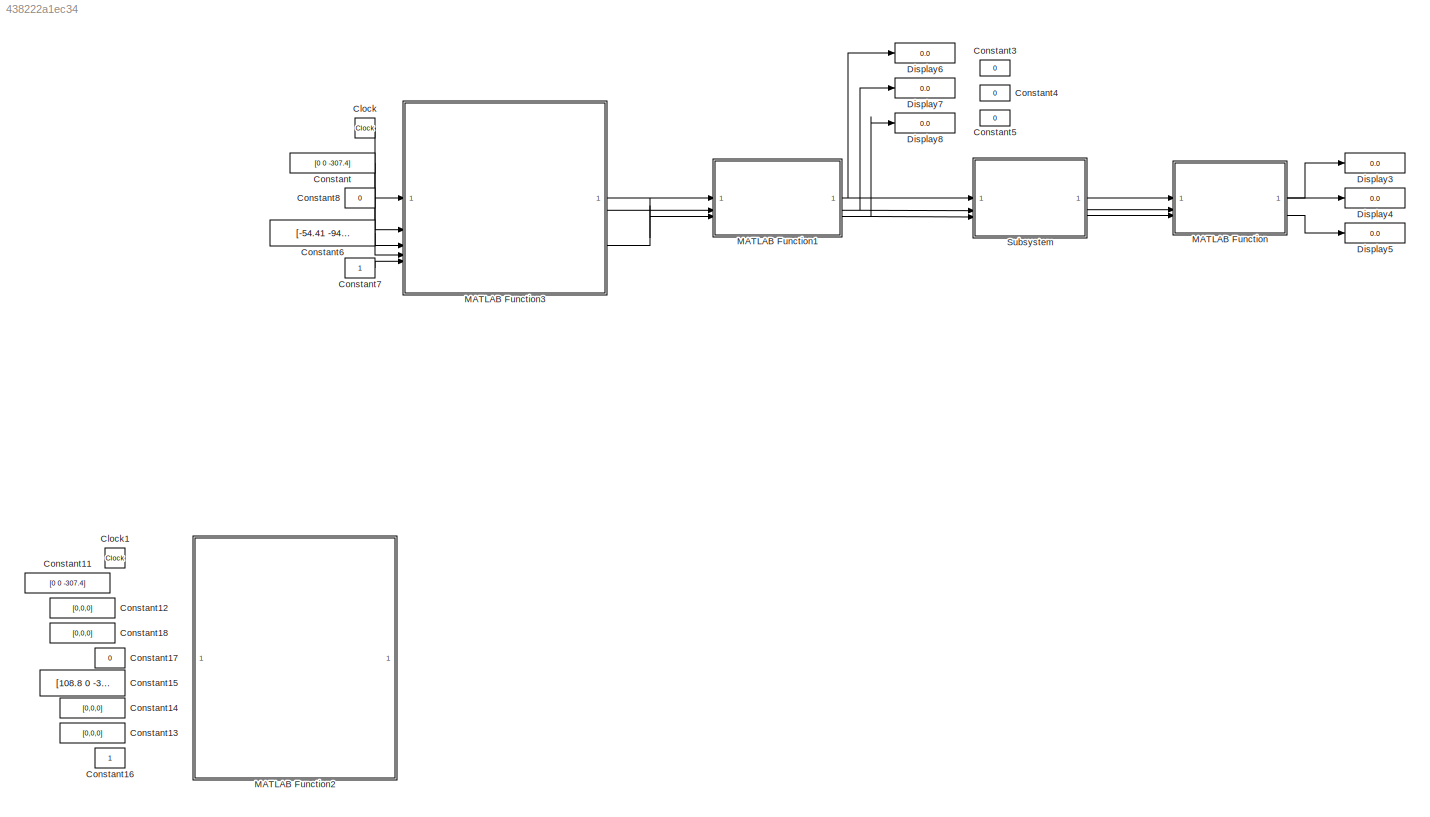
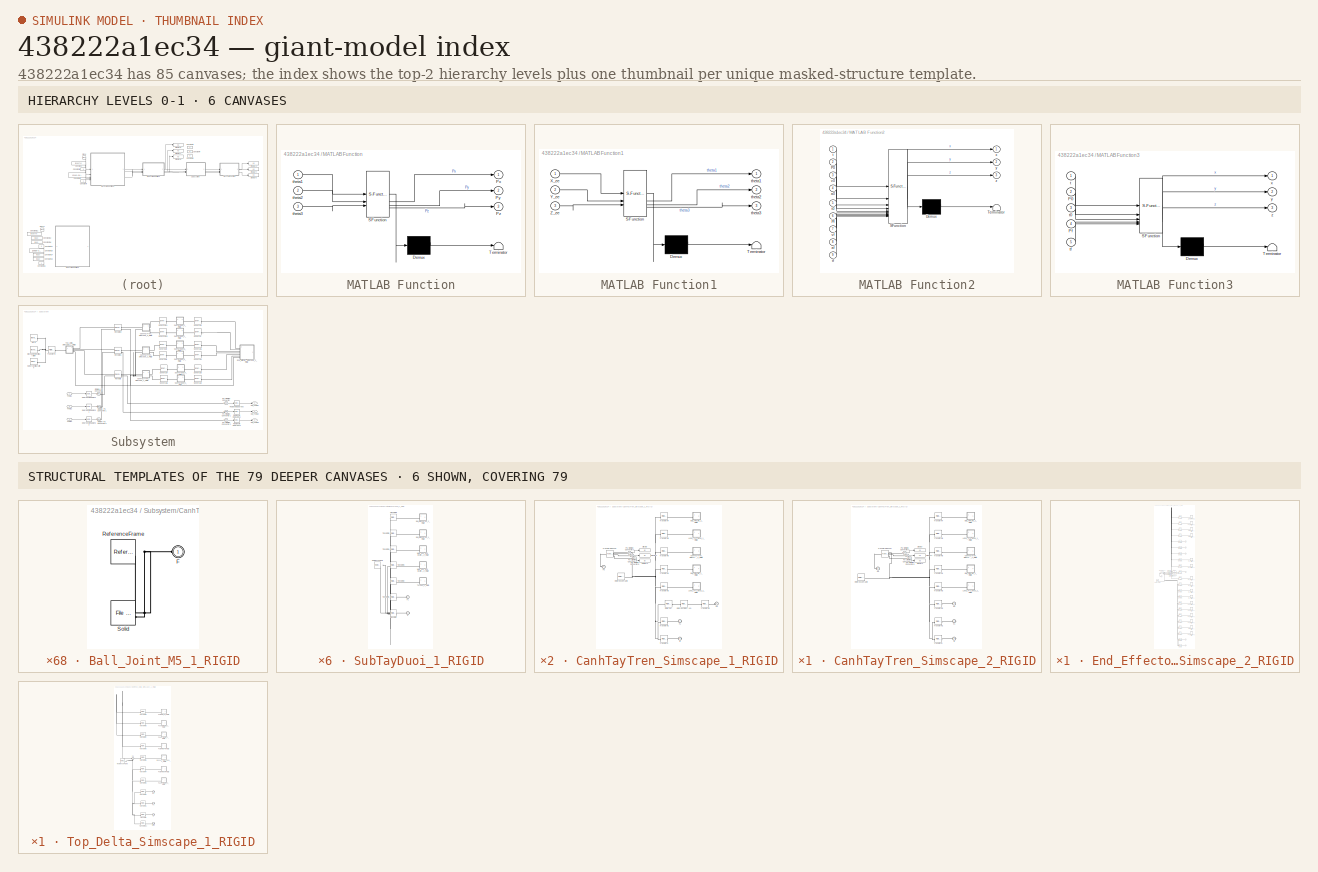
[diagram: thumbnail index - top-2 hierarchy levels (6 canvases) + 6 structural-template representatives of the remaining 79 canvases]
MODEL slx_438222a1ec34
KIND model
CONFIG AbsTol = auto
CONFIG EnableMultiTasking = off
CONFIG FixedStep = 0.01
CONFIG MaxStep = auto
CONFIG MinStep = auto
CONFIG RelTol = 1e-3
CONFIG SampleTimeConstraint = Unconstrained
CONFIG SolverName = FixedStepAuto
CONFIG StartTime = 0.0
CONFIG StopTime = 10.0
WORKSPACE source: external: MATLAB File  (data not in archive)
BLOCK [Clock] Clock
  Decimation = 10000
  DisplayTime = on
BLOCK [Clock] Clock1
  Commented = on
  Decimation = 10000
  DisplayTime = on
BLOCK [Constant] Constant
  Value = [0 0 -307.4]
BLOCK [Constant] Constant11
  Commented = on
  Value = [0 0 -307.4]
BLOCK [Constant] Constant12
  Commented = on
  Value = [0,0,0]
BLOCK [Constant] Constant13
  Commented = on
  Value = [0,0,0]
BLOCK [Constant] Constant14
  Commented = on
  Value = [0,0,0]
BLOCK [Constant] Constant15
  Commented = on
  Value = [108.8 0 -345.1]
BLOCK [Constant] Constant16
  Commented = on
BLOCK [Constant] Constant17
  Commented = on
  Value = 0
BLOCK [Constant] Constant18
  Commented = on
  Value = [0,0,0]
BLOCK [Constant] Constant3
  Value = 0
BLOCK [Constant] Constant4
  Value = 0
BLOCK [Constant] Constant5
  Value = 0
BLOCK [Constant] Constant6
  Value = [-54.41 -94.25 -345.1]
BLOCK [Constant] Constant7
BLOCK [Constant] Constant8
  Value = 0
BLOCK [Display] Display3
  Decimation = 1
BLOCK [Display] Display4
  Decimation = 1
BLOCK [Display] Display5
  Decimation = 1
BLOCK [Display] Display6
  Decimation = 1
BLOCK [Display] Display7
  Decimation = 1
BLOCK [Display] Display8
  Decimation = 1
BLOCK [SubSystem] MATLAB Function
  ErrorFcn = Stateflow.Translate.translate
  LibrarySourceBlock = simulink/User-Defined\nFunctions/MATLAB Function
  PermitHierarchicalResolution = ExplicitOnly
  SFBlockType = MATLAB Function
  TreatAsAtomicUnit = on
BLOCK [Demux] MATLAB Function/ Demux 
  Outputs = 1
BLOCK [S-Function] MATLAB Function/ SFunction 
  EnableBusSupport = on
  FunctionName = sf_sfun
  PortCounts = [3 4]
  SFcnIsStateOwnerBlock = off
  SFunctionDeploymentMode = off
  Tag = Stateflow S-Function 2
BLOCK [Terminator] MATLAB Function/ Terminator 
BLOCK [Outport] MATLAB Function/Px
BLOCK [Outport] MATLAB Function/Py
  Port = 2
BLOCK [Outport] MATLAB Function/Pz
  Port = 3
BLOCK [Inport] MATLAB Function/theta1
BLOCK [Inport] MATLAB Function/theta2
  Port = 2
BLOCK [Inport] MATLAB Function/theta3
  Port = 3
BLOCK [SubSystem] MATLAB Function1
  ErrorFcn = Stateflow.Translate.translate
  LibrarySourceBlock = simulink/User-Defined\nFunctions/MATLAB Function
  PermitHierarchicalResolution = ExplicitOnly
  SFBlockType = MATLAB Function
  TreatAsAtomicUnit = on
BLOCK [Demux] MATLAB Function1/ Demux 
  Outputs = 1
BLOCK [S-Function] MATLAB Function1/ SFunction 
  EnableBusSupport = on
  FunctionName = sf_sfun
  PortCounts = [3 4]
  SFcnIsStateOwnerBlock = off
  SFunctionDeploymentMode = off
  Tag = Stateflow S-Function 1
BLOCK [Terminator] MATLAB Function1/ Terminator 
BLOCK [Inport] MATLAB Function1/X_ee
BLOCK [Inport] MATLAB Function1/Y_ee
  Port = 2
BLOCK [Inport] MATLAB Function1/Z_ee
  Port = 3
BLOCK [Outport] MATLAB Function1/theta1
BLOCK [Outport] MATLAB Function1/theta2
  Port = 2
BLOCK [Outport] MATLAB Function1/theta3
  Port = 3
BLOCK [SubSystem] MATLAB Function2
  Commented = on
  ErrorFcn = Stateflow.Translate.translate
  LibrarySourceBlock = simulink/User-Defined\nFunctions/MATLAB Function
  PermitHierarchicalResolution = ExplicitOnly
  SFBlockType = MATLAB Function
  TreatAsAtomicUnit = on
BLOCK [Demux] MATLAB Function2/ Demux 
  Outputs = 1
BLOCK [S-Function] MATLAB Function2/ SFunction 
  EnableBusSupport = on
  FunctionName = sf_sfun
  PortCounts = [9 4]
  SFcnIsStateOwnerBlock = off
  SFunctionDeploymentMode = off
  Tag = Stateflow S-Function 3
BLOCK [Terminator] MATLAB Function2/ Terminator 
BLOCK [Inport] MATLAB Function2/P0
  Port = 2
BLOCK [Inport] MATLAB Function2/Pf
  Port = 6
BLOCK [Inport] MATLAB Function2/a0
  Port = 4
BLOCK [Inport] MATLAB Function2/af
  Port = 8
BLOCK [Inport] MATLAB Function2/t
BLOCK [Inport] MATLAB Function2/t0
  Port = 5
BLOCK [Inport] MATLAB Function2/tf
  Port = 9
BLOCK [Inport] MATLAB Function2/v0
  Port = 3
BLOCK [Inport] MATLAB Function2/vf
  Port = 7
BLOCK [Outport] MATLAB Function2/x
BLOCK [Outport] MATLAB Function2/y
  Port = 2
BLOCK [Outport] MATLAB Function2/z
  Port = 3
BLOCK [SubSystem] MATLAB Function3
  ErrorFcn = Stateflow.Translate.translate
  LibrarySourceBlock = simulink/User-Defined\nFunctions/MATLAB Function
  PermitHierarchicalResolution = ExplicitOnly
  SFBlockType = MATLAB Function
  TreatAsAtomicUnit = on
BLOCK [Demux] MATLAB Function3/ Demux 
  Outputs = 1
BLOCK [S-Function] MATLAB Function3/ SFunction 
  EnableBusSupport = on
  FunctionName = sf_sfun
  PortCounts = [5 4]
  SFcnIsStateOwnerBlock = off
  SFunctionDeploymentMode = off
  Tag = Stateflow S-Function 4
BLOCK [Terminator] MATLAB Function3/ Terminator 
BLOCK [Inport] MATLAB Function3/P0
  Port = 2
BLOCK [Inport] MATLAB Function3/Pf
  Port = 4
BLOCK [Inport] MATLAB Function3/t
BLOCK [Inport] MATLAB Function3/t0
  Port = 3
BLOCK [Inport] MATLAB Function3/tf
  Port = 5
BLOCK [Outport] MATLAB Function3/x
BLOCK [Outport] MATLAB Function3/y
  Port = 2
BLOCK [Outport] MATLAB Function3/z
  Port = 3
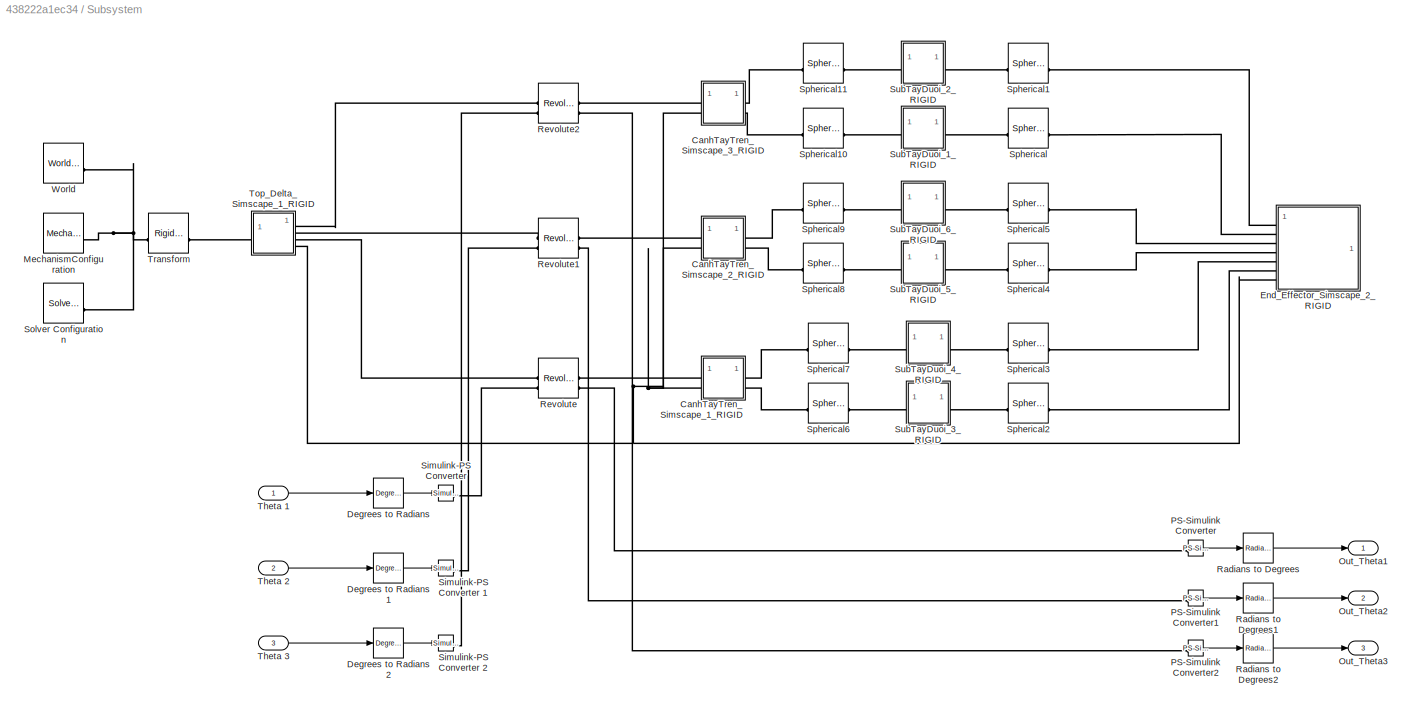
BLOCK [SubSystem] Subsystem
BLOCK [SubSystem] Subsystem/CanhTayTren_Simscape_1_RIGID
BLOCK [SubSystem] Subsystem/CanhTayTren_Simscape_1_RIGID/Ball_Joint_M5_1_RIGID
BLOCK [PMIOPort] Subsystem/CanhTayTren_Simscape_1_RIGID/Ball_Joint_M5_1_RIGID/F
  Side = Left
BLOCK [Reference] Subsystem/CanhTayTren_Simscape_1_RIGID/Ball_Joint_M5_1_RIGID/ReferenceFrame  REF=sm_lib/Frames and
Transforms/Reference
Frame
  SourceBlock = sm_lib/Frames and\nTransforms/Reference\nFrame
  SourceType = Reference\nFrame
BLOCK [Reference] Subsystem/CanhTayTren_Simscape_1_RIGID/Ball_Joint_M5_1_RIGID/Solid  REF=sm_lib/Body Elements/File Solid
  SourceBlock = sm_lib/Body Elements/File Solid
  SourceType = File Solid
BLOCK [SubSystem] Subsystem/CanhTayTren_Simscape_1_RIGID/Ball_Joint_M5_2_RIGID
BLOCK [PMIOPort] Subsystem/CanhTayTren_Simscape_1_RIGID/Ball_Joint_M5_2_RIGID/F
  Side = Left
BLOCK [Reference] Subsystem/CanhTayTren_Simscape_1_RIGID/Ball_Joint_M5_2_RIGID/ReferenceFrame  REF=sm_lib/Frames and
Transforms/Reference
Frame
  SourceBlock = sm_lib/Frames and\nTransforms/Reference\nFrame
  SourceType = Reference\nFrame
BLOCK [Reference] Subsystem/CanhTayTren_Simscape_1_RIGID/Ball_Joint_M5_2_RIGID/Solid  REF=sm_lib/Body Elements/File Solid
  SourceBlock = sm_lib/Body Elements/File Solid
  SourceType = File Solid
BLOCK [SubSystem] Subsystem/CanhTayTren_Simscape_1_RIGID/CanhTayTren_Simscape_2_1_RIGID
BLOCK [PMIOPort] Subsystem/CanhTayTren_Simscape_1_RIGID/CanhTayTren_Simscape_2_1_RIGID/F
  Side = Left
BLOCK [Reference] Subsystem/CanhTayTren_Simscape_1_RIGID/CanhTayTren_Simscape_2_1_RIGID/ReferenceFrame  REF=sm_lib/Frames and
Transforms/Reference
Frame
  SourceBlock = sm_lib/Frames and\nTransforms/Reference\nFrame
  SourceType = Reference\nFrame
BLOCK [Reference] Subsystem/CanhTayTren_Simscape_1_RIGID/CanhTayTren_Simscape_2_1_RIGID/Solid  REF=sm_lib/Body Elements/File Solid
  SourceBlock = sm_lib/Body Elements/File Solid
  SourceType = File Solid
BLOCK [Display] Subsystem/CanhTayTren_Simscape_1_RIGID/Display
  Decimation = 1
BLOCK [Display] Subsystem/CanhTayTren_Simscape_1_RIGID/Display1
  Decimation = 1
BLOCK [Display] Subsystem/CanhTayTren_Simscape_1_RIGID/Display2
  Decimation = 1
BLOCK [PMIOPort] Subsystem/CanhTayTren_Simscape_1_RIGID/F
  Port = 3
  Side = Right
BLOCK [PMIOPort] Subsystem/CanhTayTren_Simscape_1_RIGID/F1
  Port = 2
  Side = Right
BLOCK [PMIOPort] Subsystem/CanhTayTren_Simscape_1_RIGID/F2
  Side = Left
BLOCK [PMIOPort] Subsystem/CanhTayTren_Simscape_1_RIGID/F3
  Port = 4
  Side = Left
BLOCK [SubSystem] Subsystem/CanhTayTren_Simscape_1_RIGID/Long_Tru_Nhua_1_RIGID
BLOCK [PMIOPort] Subsystem/CanhTayTren_Simscape_1_RIGID/Long_Tru_Nhua_1_RIGID/F
  Side = Left
BLOCK [Reference] Subsystem/CanhTayTren_Simscape_1_RIGID/Long_Tru_Nhua_1_RIGID/ReferenceFrame  REF=sm_lib/Frames and
Transforms/Reference
Frame
  SourceBlock = sm_lib/Frames and\nTransforms/Reference\nFrame
  SourceType = Reference\nFrame
BLOCK [Reference] Subsystem/CanhTayTren_Simscape_1_RIGID/Long_Tru_Nhua_1_RIGID/Solid  REF=sm_lib/Body Elements/File Solid
  SourceBlock = sm_lib/Body Elements/File Solid
  SourceType = File Solid
BLOCK [SubSystem] Subsystem/CanhTayTren_Simscape_1_RIGID/Long_Tru_Nhua_2_RIGID
BLOCK [PMIOPort] Subsystem/CanhTayTren_Simscape_1_RIGID/Long_Tru_Nhua_2_RIGID/F
  Side = Left
BLOCK [Reference] Subsystem/CanhTayTren_Simscape_1_RIGID/Long_Tru_Nhua_2_RIGID/ReferenceFrame  REF=sm_lib/Frames and
Transforms/Reference
Frame
  SourceBlock = sm_lib/Frames and\nTransforms/Reference\nFrame
  SourceType = Reference\nFrame
BLOCK [Reference] Subsystem/CanhTayTren_Simscape_1_RIGID/Long_Tru_Nhua_2_RIGID/Solid  REF=sm_lib/Body Elements/File Solid
  SourceBlock = sm_lib/Body Elements/File Solid
  SourceType = File Solid
BLOCK [Reference] Subsystem/CanhTayTren_Simscape_1_RIGID/PS-Simulink Converter3  REF=nesl_utility/PS-Simulink
Converter
  SourceBlock = nesl_utility/PS-Simulink\nConverter
  SourceType = PS-Simulink\nConverter
BLOCK [Reference] Subsystem/CanhTayTren_Simscape_1_RIGID/PS-Simulink Converter4  REF=nesl_utility/PS-Simulink
Converter
  SourceBlock = nesl_utility/PS-Simulink\nConverter
  SourceType = PS-Simulink\nConverter
BLOCK [Reference] Subsystem/CanhTayTren_Simscape_1_RIGID/PS-Simulink Converter5  REF=nesl_utility/PS-Simulink
Converter
  SourceBlock = nesl_utility/PS-Simulink\nConverter
  SourceType = PS-Simulink\nConverter
BLOCK [Reference] Subsystem/CanhTayTren_Simscape_1_RIGID/ReferenceFrame  REF=sm_lib/Frames and
Transforms/Reference
Frame
  SourceBlock = sm_lib/Frames and\nTransforms/Reference\nFrame
  SourceType = Reference\nFrame
BLOCK [Reference] Subsystem/CanhTayTren_Simscape_1_RIGID/Rotx(1.5)  REF=sm_lib/Frames and
Transforms/Rigid
Transform
  NameLocation = top
  SourceBlock = sm_lib/Frames and\nTransforms/Rigid\nTransform
  SourceType = Rigid\nTransform
BLOCK [Reference] Subsystem/CanhTayTren_Simscape_1_RIGID/Rotz(90).Roty(-1.5)  REF=sm_lib/Frames and
Transforms/Rigid
Transform
  NameLocation = top
  SourceBlock = sm_lib/Frames and\nTransforms/Rigid\nTransform
  SourceType = Rigid\nTransform
BLOCK [Reference] Subsystem/CanhTayTren_Simscape_1_RIGID/Transform  REF=sm_lib/Frames and
Transforms/Rigid
Transform
  SourceBlock = sm_lib/Frames and\nTransforms/Rigid\nTransform
  SourceType = Rigid\nTransform
BLOCK [Reference] Subsystem/CanhTayTren_Simscape_1_RIGID/Transform Sensor  REF=sm_lib/Frames and
Transforms/Transform
Sensor
  SourceBlock = sm_lib/Frames and\nTransforms/Transform\nSensor
  SourceType = Transform\nSensor
BLOCK [Reference] Subsystem/CanhTayTren_Simscape_1_RIGID/Transform1  REF=sm_lib/Frames and
Transforms/Rigid
Transform
  SourceBlock = sm_lib/Frames and\nTransforms/Rigid\nTransform
  SourceType = Rigid\nTransform
BLOCK [Reference] Subsystem/CanhTayTren_Simscape_1_RIGID/Transform2  REF=sm_lib/Frames and
Transforms/Rigid
Transform
  SourceBlock = sm_lib/Frames and\nTransforms/Rigid\nTransform
  SourceType = Rigid\nTransform
BLOCK [Reference] Subsystem/CanhTayTren_Simscape_1_RIGID/Transform3  REF=sm_lib/Frames and
Transforms/Rigid
Transform
  SourceBlock = sm_lib/Frames and\nTransforms/Rigid\nTransform
  SourceType = Rigid\nTransform
BLOCK [Reference] Subsystem/CanhTayTren_Simscape_1_RIGID/Transform4  REF=sm_lib/Frames and
Transforms/Rigid
Transform
  SourceBlock = sm_lib/Frames and\nTransforms/Rigid\nTransform
  SourceType = Rigid\nTransform
BLOCK [Reference] Subsystem/CanhTayTren_Simscape_1_RIGID/Transform5  REF=sm_lib/Frames and
Transforms/Rigid
Transform
  SourceBlock = sm_lib/Frames and\nTransforms/Rigid\nTransform
  SourceType = Rigid\nTransform
BLOCK [Reference] Subsystem/CanhTayTren_Simscape_1_RIGID/Transform6  REF=sm_lib/Frames and
Transforms/Rigid
Transform
  SourceBlock = sm_lib/Frames and\nTransforms/Rigid\nTransform
  SourceType = Rigid\nTransform
BLOCK [Reference] Subsystem/CanhTayTren_Simscape_1_RIGID/Transform7  REF=sm_lib/Frames and
Transforms/Rigid
Transform
  SourceBlock = sm_lib/Frames and\nTransforms/Rigid\nTransform
  SourceType = Rigid\nTransform
BLOCK [SubSystem] Subsystem/CanhTayTren_Simscape_2_RIGID
BLOCK [SubSystem] Subsystem/CanhTayTren_Simscape_2_RIGID/Ball_Joint_M5_1_RIGID
BLOCK [PMIOPort] Subsystem/CanhTayTren_Simscape_2_RIGID/Ball_Joint_M5_1_RIGID/F
  Side = Left
BLOCK [Reference] Subsystem/CanhTayTren_Simscape_2_RIGID/Ball_Joint_M5_1_RIGID/ReferenceFrame  REF=sm_lib/Frames and
Transforms/Reference
Frame
  SourceBlock = sm_lib/Frames and\nTransforms/Reference\nFrame
  SourceType = Reference\nFrame
BLOCK [Reference] Subsystem/CanhTayTren_Simscape_2_RIGID/Ball_Joint_M5_1_RIGID/Solid  REF=sm_lib/Body Elements/File Solid
  SourceBlock = sm_lib/Body Elements/File Solid
  SourceType = File Solid
BLOCK [SubSystem] Subsystem/CanhTayTren_Simscape_2_RIGID/Ball_Joint_M5_2_RIGID
BLOCK [PMIOPort] Subsystem/CanhTayTren_Simscape_2_RIGID/Ball_Joint_M5_2_RIGID/F
  Side = Left
BLOCK [Reference] Subsystem/CanhTayTren_Simscape_2_RIGID/Ball_Joint_M5_2_RIGID/ReferenceFrame  REF=sm_lib/Frames and
Transforms/Reference
Frame
  SourceBlock = sm_lib/Frames and\nTransforms/Reference\nFrame
  SourceType = Reference\nFrame
BLOCK [Reference] Subsystem/CanhTayTren_Simscape_2_RIGID/Ball_Joint_M5_2_RIGID/Solid  REF=sm_lib/Body Elements/File Solid
  SourceBlock = sm_lib/Body Elements/File Solid
  SourceType = File Solid
BLOCK [SubSystem] Subsystem/CanhTayTren_Simscape_2_RIGID/CanhTayTren_Simscape_2_1_RIGID
BLOCK [PMIOPort] Subsystem/CanhTayTren_Simscape_2_RIGID/CanhTayTren_Simscape_2_1_RIGID/F
  Side = Left
BLOCK [Reference] Subsystem/CanhTayTren_Simscape_2_RIGID/CanhTayTren_Simscape_2_1_RIGID/ReferenceFrame  REF=sm_lib/Frames and
Transforms/Reference
Frame
  SourceBlock = sm_lib/Frames and\nTransforms/Reference\nFrame
  SourceType = Reference\nFrame
BLOCK [Reference] Subsystem/CanhTayTren_Simscape_2_RIGID/CanhTayTren_Simscape_2_1_RIGID/Solid  REF=sm_lib/Body Elements/File Solid
  SourceBlock = sm_lib/Body Elements/File Solid
  SourceType = File Solid
BLOCK [Display] Subsystem/CanhTayTren_Simscape_2_RIGID/Display
  Decimation = 1
BLOCK [Display] Subsystem/CanhTayTren_Simscape_2_RIGID/Display1
  Decimation = 1
BLOCK [Display] Subsystem/CanhTayTren_Simscape_2_RIGID/Display2
  Decimation = 1
BLOCK [PMIOPort] Subsystem/CanhTayTren_Simscape_2_RIGID/F
  Port = 3
  Side = Right
BLOCK [PMIOPort] Subsystem/CanhTayTren_Simscape_2_RIGID/F1
  Port = 2
  Side = Right
BLOCK [PMIOPort] Subsystem/CanhTayTren_Simscape_2_RIGID/F2
  Side = Left
BLOCK [PMIOPort] Subsystem/CanhTayTren_Simscape_2_RIGID/F3
  Port = 4
  Side = Left
BLOCK [SubSystem] Subsystem/CanhTayTren_Simscape_2_RIGID/Long_Tru_Nhua_1_RIGID
BLOCK [PMIOPort] Subsystem/CanhTayTren_Simscape_2_RIGID/Long_Tru_Nhua_1_RIGID/F
  Side = Left
BLOCK [Reference] Subsystem/CanhTayTren_Simscape_2_RIGID/Long_Tru_Nhua_1_RIGID/ReferenceFrame  REF=sm_lib/Frames and
Transforms/Reference
Frame
  SourceBlock = sm_lib/Frames and\nTransforms/Reference\nFrame
  SourceType = Reference\nFrame
BLOCK [Reference] Subsystem/CanhTayTren_Simscape_2_RIGID/Long_Tru_Nhua_1_RIGID/Solid  REF=sm_lib/Body Elements/File Solid
  SourceBlock = sm_lib/Body Elements/File Solid
  SourceType = File Solid
BLOCK [SubSystem] Subsystem/CanhTayTren_Simscape_2_RIGID/Long_Tru_Nhua_2_RIGID
BLOCK [PMIOPort] Subsystem/CanhTayTren_Simscape_2_RIGID/Long_Tru_Nhua_2_RIGID/F
  Side = Left
BLOCK [Reference] Subsystem/CanhTayTren_Simscape_2_RIGID/Long_Tru_Nhua_2_RIGID/ReferenceFrame  REF=sm_lib/Frames and
Transforms/Reference
Frame
  SourceBlock = sm_lib/Frames and\nTransforms/Reference\nFrame
  SourceType = Reference\nFrame
BLOCK [Reference] Subsystem/CanhTayTren_Simscape_2_RIGID/Long_Tru_Nhua_2_RIGID/Solid  REF=sm_lib/Body Elements/File Solid
  SourceBlock = sm_lib/Body Elements/File Solid
  SourceType = File Solid
BLOCK [Reference] Subsystem/CanhTayTren_Simscape_2_RIGID/PS-Simulink Converter3  REF=nesl_utility/PS-Simulink
Converter
  SourceBlock = nesl_utility/PS-Simulink\nConverter
  SourceType = PS-Simulink\nConverter
BLOCK [Reference] Subsystem/CanhTayTren_Simscape_2_RIGID/PS-Simulink Converter4  REF=nesl_utility/PS-Simulink
Converter
  SourceBlock = nesl_utility/PS-Simulink\nConverter
  SourceType = PS-Simulink\nConverter
BLOCK [Reference] Subsystem/CanhTayTren_Simscape_2_RIGID/PS-Simulink Converter5  REF=nesl_utility/PS-Simulink
Converter
  SourceBlock = nesl_utility/PS-Simulink\nConverter
  SourceType = PS-Simulink\nConverter
BLOCK [Reference] Subsystem/CanhTayTren_Simscape_2_RIGID/ReferenceFrame  REF=sm_lib/Frames and
Transforms/Reference
Frame
  SourceBlock = sm_lib/Frames and\nTransforms/Reference\nFrame
  SourceType = Reference\nFrame
BLOCK [Reference] Subsystem/CanhTayTren_Simscape_2_RIGID/Transform  REF=sm_lib/Frames and
Transforms/Rigid
Transform
  SourceBlock = sm_lib/Frames and\nTransforms/Rigid\nTransform
  SourceType = Rigid\nTransform
BLOCK [Reference] Subsystem/CanhTayTren_Simscape_2_RIGID/Transform Sensor  REF=sm_lib/Frames and
Transforms/Transform
Sensor
  SourceBlock = sm_lib/Frames and\nTransforms/Transform\nSensor
  SourceType = Transform\nSensor
BLOCK [Reference] Subsystem/CanhTayTren_Simscape_2_RIGID/Transform1  REF=sm_lib/Frames and
Transforms/Rigid
Transform
  SourceBlock = sm_lib/Frames and\nTransforms/Rigid\nTransform
  SourceType = Rigid\nTransform
BLOCK [Reference] Subsystem/CanhTayTren_Simscape_2_RIGID/Transform2  REF=sm_lib/Frames and
Transforms/Rigid
Transform
  SourceBlock = sm_lib/Frames and\nTransforms/Rigid\nTransform
  SourceType = Rigid\nTransform
BLOCK [Reference] Subsystem/CanhTayTren_Simscape_2_RIGID/Transform3  REF=sm_lib/Frames and
Transforms/Rigid
Transform
  SourceBlock = sm_lib/Frames and\nTransforms/Rigid\nTransform
  SourceType = Rigid\nTransform
BLOCK [Reference] Subsystem/CanhTayTren_Simscape_2_RIGID/Transform4  REF=sm_lib/Frames and
Transforms/Rigid
Transform
  SourceBlock = sm_lib/Frames and\nTransforms/Rigid\nTransform
  SourceType = Rigid\nTransform
BLOCK [Reference] Subsystem/CanhTayTren_Simscape_2_RIGID/Transform5  REF=sm_lib/Frames and
Transforms/Rigid
Transform
  SourceBlock = sm_lib/Frames and\nTransforms/Rigid\nTransform
  SourceType = Rigid\nTransform
BLOCK [Reference] Subsystem/CanhTayTren_Simscape_2_RIGID/Transform6  REF=sm_lib/Frames and
Transforms/Rigid
Transform
  SourceBlock = sm_lib/Frames and\nTransforms/Rigid\nTransform
  SourceType = Rigid\nTransform
BLOCK [Reference] Subsystem/CanhTayTren_Simscape_2_RIGID/Transform7  REF=sm_lib/Frames and
Transforms/Rigid
Transform
  SourceBlock = sm_lib/Frames and\nTransforms/Rigid\nTransform
  SourceType = Rigid\nTransform
BLOCK [SubSystem] Subsystem/CanhTayTren_Simscape_3_RIGID
BLOCK [SubSystem] Subsystem/CanhTayTren_Simscape_3_RIGID/Ball_Joint_M5_1_RIGID
BLOCK [PMIOPort] Subsystem/CanhTayTren_Simscape_3_RIGID/Ball_Joint_M5_1_RIGID/F
  Side = Left
BLOCK [Reference] Subsystem/CanhTayTren_Simscape_3_RIGID/Ball_Joint_M5_1_RIGID/ReferenceFrame  REF=sm_lib/Frames and
Transforms/Reference
Frame
  SourceBlock = sm_lib/Frames and\nTransforms/Reference\nFrame
  SourceType = Reference\nFrame
BLOCK [Reference] Subsystem/CanhTayTren_Simscape_3_RIGID/Ball_Joint_M5_1_RIGID/Solid  REF=sm_lib/Body Elements/File Solid
  SourceBlock = sm_lib/Body Elements/File Solid
  SourceType = File Solid
BLOCK [SubSystem] Subsystem/CanhTayTren_Simscape_3_RIGID/Ball_Joint_M5_2_RIGID
BLOCK [PMIOPort] Subsystem/CanhTayTren_Simscape_3_RIGID/Ball_Joint_M5_2_RIGID/F
  Side = Left
BLOCK [Reference] Subsystem/CanhTayTren_Simscape_3_RIGID/Ball_Joint_M5_2_RIGID/ReferenceFrame  REF=sm_lib/Frames and
Transforms/Reference
Frame
  SourceBlock = sm_lib/Frames and\nTransforms/Reference\nFrame
  SourceType = Reference\nFrame
BLOCK [Reference] Subsystem/CanhTayTren_Simscape_3_RIGID/Ball_Joint_M5_2_RIGID/Solid  REF=sm_lib/Body Elements/File Solid
  SourceBlock = sm_lib/Body Elements/File Solid
  SourceType = File Solid
BLOCK [SubSystem] Subsystem/CanhTayTren_Simscape_3_RIGID/CanhTayTren_Simscape_2_1_RIGID
BLOCK [PMIOPort] Subsystem/CanhTayTren_Simscape_3_RIGID/CanhTayTren_Simscape_2_1_RIGID/F
  Side = Left
BLOCK [Reference] Subsystem/CanhTayTren_Simscape_3_RIGID/CanhTayTren_Simscape_2_1_RIGID/ReferenceFrame  REF=sm_lib/Frames and
Transforms/Reference
Frame
  SourceBlock = sm_lib/Frames and\nTransforms/Reference\nFrame
  SourceType = Reference\nFrame
BLOCK [Reference] Subsystem/CanhTayTren_Simscape_3_RIGID/CanhTayTren_Simscape_2_1_RIGID/Solid  REF=sm_lib/Body Elements/File Solid
  SourceBlock = sm_lib/Body Elements/File Solid
  SourceType = File Solid
BLOCK [Display] Subsystem/CanhTayTren_Simscape_3_RIGID/Display
  Decimation = 1
BLOCK [Display] Subsystem/CanhTayTren_Simscape_3_RIGID/Display1
  Decimation = 1
BLOCK [Display] Subsystem/CanhTayTren_Simscape_3_RIGID/Display2
  Decimation = 1
BLOCK [PMIOPort] Subsystem/CanhTayTren_Simscape_3_RIGID/F
  Port = 3
  Side = Right
BLOCK [PMIOPort] Subsystem/CanhTayTren_Simscape_3_RIGID/F1
  Port = 2
  Side = Right
BLOCK [PMIOPort] Subsystem/CanhTayTren_Simscape_3_RIGID/F2
  Side = Left
BLOCK [PMIOPort] Subsystem/CanhTayTren_Simscape_3_RIGID/F3
  Port = 4
  Side = Left
BLOCK [SubSystem] Subsystem/CanhTayTren_Simscape_3_RIGID/Long_Tru_Nhua_1_RIGID
BLOCK [PMIOPort] Subsystem/CanhTayTren_Simscape_3_RIGID/Long_Tru_Nhua_1_RIGID/F
  Side = Left
BLOCK [Reference] Subsystem/CanhTayTren_Simscape_3_RIGID/Long_Tru_Nhua_1_RIGID/ReferenceFrame  REF=sm_lib/Frames and
Transforms/Reference
Frame
  SourceBlock = sm_lib/Frames and\nTransforms/Reference\nFrame
  SourceType = Reference\nFrame
BLOCK [Reference] Subsystem/CanhTayTren_Simscape_3_RIGID/Long_Tru_Nhua_1_RIGID/Solid  REF=sm_lib/Body Elements/File Solid
  SourceBlock = sm_lib/Body Elements/File Solid
  SourceType = File Solid
BLOCK [SubSystem] Subsystem/CanhTayTren_Simscape_3_RIGID/Long_Tru_Nhua_2_RIGID
BLOCK [PMIOPort] Subsystem/CanhTayTren_Simscape_3_RIGID/Long_Tru_Nhua_2_RIGID/F
  Side = Left
BLOCK [Reference] Subsystem/CanhTayTren_Simscape_3_RIGID/Long_Tru_Nhua_2_RIGID/ReferenceFrame  REF=sm_lib/Frames and
Transforms/Reference
Frame
  SourceBlock = sm_lib/Frames and\nTransforms/Reference\nFrame
  SourceType = Reference\nFrame
BLOCK [Reference] Subsystem/CanhTayTren_Simscape_3_RIGID/Long_Tru_Nhua_2_RIGID/Solid  REF=sm_lib/Body Elements/File Solid
  SourceBlock = sm_lib/Body Elements/File Solid
  SourceType = File Solid
BLOCK [Reference] Subsystem/CanhTayTren_Simscape_3_RIGID/PS-Simulink Converter3  REF=nesl_utility/PS-Simulink
Converter
  SourceBlock = nesl_utility/PS-Simulink\nConverter
  SourceType = PS-Simulink\nConverter
BLOCK [Reference] Subsystem/CanhTayTren_Simscape_3_RIGID/PS-Simulink Converter4  REF=nesl_utility/PS-Simulink
Converter
  SourceBlock = nesl_utility/PS-Simulink\nConverter
  SourceType = PS-Simulink\nConverter
BLOCK [Reference] Subsystem/CanhTayTren_Simscape_3_RIGID/PS-Simulink Converter5  REF=nesl_utility/PS-Simulink
Converter
  SourceBlock = nesl_utility/PS-Simulink\nConverter
  SourceType = PS-Simulink\nConverter
BLOCK [Reference] Subsystem/CanhTayTren_Simscape_3_RIGID/ReferenceFrame  REF=sm_lib/Frames and
Transforms/Reference
Frame
  SourceBlock = sm_lib/Frames and\nTransforms/Reference\nFrame
  SourceType = Reference\nFrame
BLOCK [Reference] Subsystem/CanhTayTren_Simscape_3_RIGID/Roty(-3)  REF=sm_lib/Frames and
Transforms/Rigid
Transform
  NameLocation = top
  SourceBlock = sm_lib/Frames and\nTransforms/Rigid\nTransform
  SourceType = Rigid\nTransform
BLOCK [Reference] Subsystem/CanhTayTren_Simscape_3_RIGID/Rotz(180)  REF=sm_lib/Frames and
Transforms/Rigid
Transform
  NameLocation = top
  SourceBlock = sm_lib/Frames and\nTransforms/Rigid\nTransform
  SourceType = Rigid\nTransform
BLOCK [Reference] Subsystem/CanhTayTren_Simscape_3_RIGID/Transform  REF=sm_lib/Frames and
Transforms/Rigid
Transform
  SourceBlock = sm_lib/Frames and\nTransforms/Rigid\nTransform
  SourceType = Rigid\nTransform
BLOCK [Reference] Subsystem/CanhTayTren_Simscape_3_RIGID/Transform Sensor  REF=sm_lib/Frames and
Transforms/Transform
Sensor
  SourceBlock = sm_lib/Frames and\nTransforms/Transform\nSensor
  SourceType = Transform\nSensor
BLOCK [Reference] Subsystem/CanhTayTren_Simscape_3_RIGID/Transform1  REF=sm_lib/Frames and
Transforms/Rigid
Transform
  SourceBlock = sm_lib/Frames and\nTransforms/Rigid\nTransform
  SourceType = Rigid\nTransform
BLOCK [Reference] Subsystem/CanhTayTren_Simscape_3_RIGID/Transform3  REF=sm_lib/Frames and
Transforms/Rigid
Transform
  SourceBlock = sm_lib/Frames and\nTransforms/Rigid\nTransform
  SourceType = Rigid\nTransform
BLOCK [Reference] Subsystem/CanhTayTren_Simscape_3_RIGID/Transform4  REF=sm_lib/Frames and
Transforms/Rigid
Transform
  SourceBlock = sm_lib/Frames and\nTransforms/Rigid\nTransform
  SourceType = Rigid\nTransform
BLOCK [Reference] Subsystem/CanhTayTren_Simscape_3_RIGID/Transform5  REF=sm_lib/Frames and
Transforms/Rigid
Transform
  SourceBlock = sm_lib/Frames and\nTransforms/Rigid\nTransform
  SourceType = Rigid\nTransform
BLOCK [Reference] Subsystem/CanhTayTren_Simscape_3_RIGID/Transform6  REF=sm_lib/Frames and
Transforms/Rigid
Transform
  SourceBlock = sm_lib/Frames and\nTransforms/Rigid\nTransform
  SourceType = Rigid\nTransform
BLOCK [Reference] Subsystem/CanhTayTren_Simscape_3_RIGID/Transform7  REF=sm_lib/Frames and
Transforms/Rigid
Transform
  SourceBlock = sm_lib/Frames and\nTransforms/Rigid\nTransform
  SourceType = Rigid\nTransform
BLOCK [Reference] Subsystem/CanhTayTren_Simscape_3_RIGID/Transform8  REF=sm_lib/Frames and
Transforms/Rigid
Transform
  SourceBlock = sm_lib/Frames and\nTransforms/Rigid\nTransform
  SourceType = Rigid\nTransform
BLOCK [Reference] Subsystem/Degrees to Radians   REF=simulink_extras/Transformations/Degrees to
Radians
  SourceBlock = simulink_extras/Transformations/Degrees to\nRadians
  SourceType = DegreesToRadians
BLOCK [Reference] Subsystem/Degrees to Radians 1  REF=simulink_extras/Transformations/Degrees to
Radians
  SourceBlock = simulink_extras/Transformations/Degrees to\nRadians
  SourceType = DegreesToRadians
BLOCK [Reference] Subsystem/Degrees to Radians 2  REF=simulink_extras/Transformations/Degrees to
Radians
  SourceBlock = simulink_extras/Transformations/Degrees to\nRadians
  SourceType = DegreesToRadians
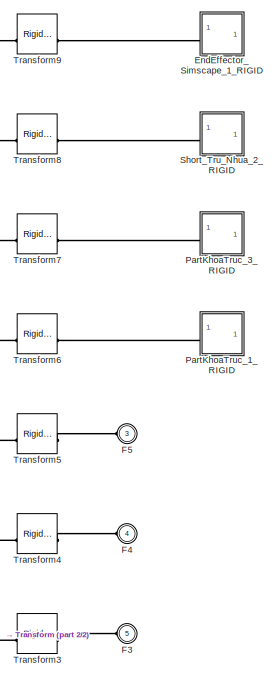
[diagram: Subsystem/End_Effector_Simscape_2_RIGID - part 1/2, top right region]
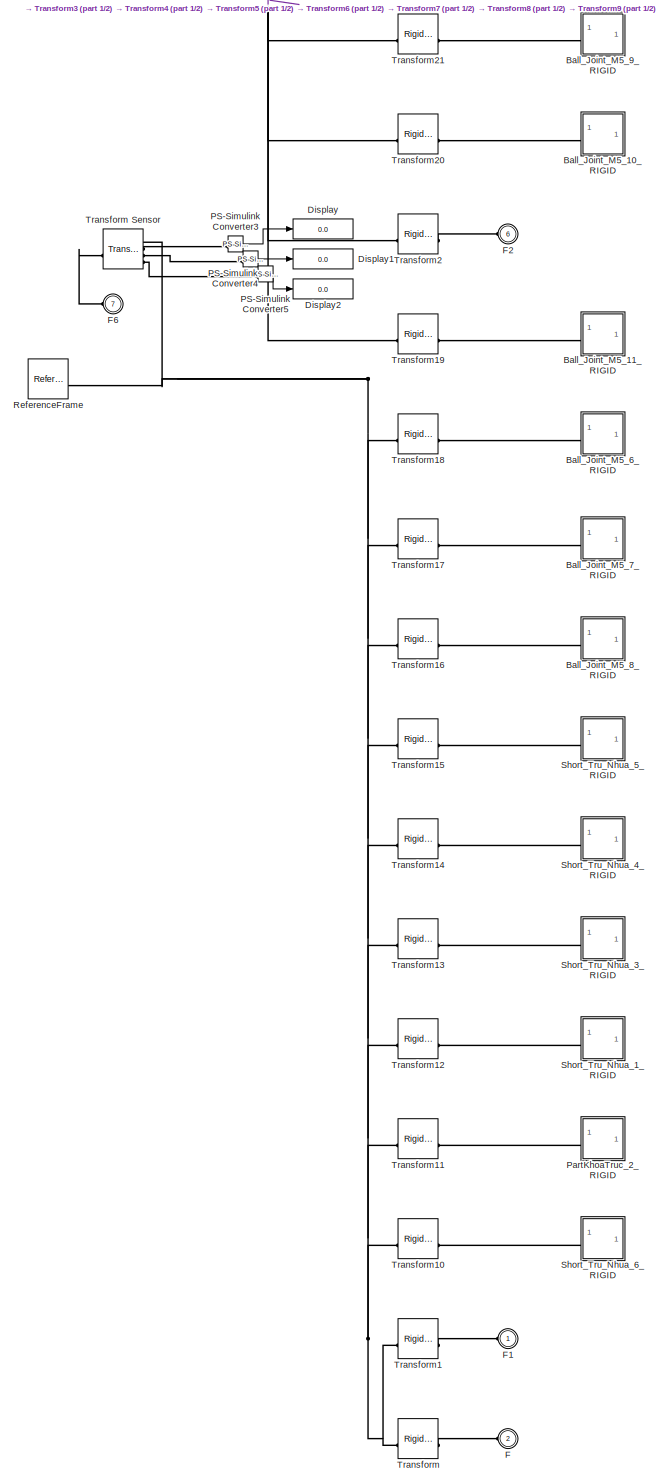
[diagram: Subsystem/End_Effector_Simscape_2_RIGID - part 2/2, full width, bottom band]
BLOCK [SubSystem] Subsystem/End_Effector_Simscape_2_RIGID
BLOCK [SubSystem] Subsystem/End_Effector_Simscape_2_RIGID/Ball_Joint_M5_10_RIGID
BLOCK [PMIOPort] Subsystem/End_Effector_Simscape_2_RIGID/Ball_Joint_M5_10_RIGID/F
  Side = Left
BLOCK [Reference] Subsystem/End_Effector_Simscape_2_RIGID/Ball_Joint_M5_10_RIGID/ReferenceFrame  REF=sm_lib/Frames and
Transforms/Reference
Frame
  SourceBlock = sm_lib/Frames and\nTransforms/Reference\nFrame
  SourceType = Reference\nFrame
BLOCK [Reference] Subsystem/End_Effector_Simscape_2_RIGID/Ball_Joint_M5_10_RIGID/Solid  REF=sm_lib/Body Elements/File Solid
  SourceBlock = sm_lib/Body Elements/File Solid
  SourceType = File Solid
BLOCK [SubSystem] Subsystem/End_Effector_Simscape_2_RIGID/Ball_Joint_M5_11_RIGID
BLOCK [PMIOPort] Subsystem/End_Effector_Simscape_2_RIGID/Ball_Joint_M5_11_RIGID/F
  Side = Left
BLOCK [Reference] Subsystem/End_Effector_Simscape_2_RIGID/Ball_Joint_M5_11_RIGID/ReferenceFrame  REF=sm_lib/Frames and
Transforms/Reference
Frame
  SourceBlock = sm_lib/Frames and\nTransforms/Reference\nFrame
  SourceType = Reference\nFrame
BLOCK [Reference] Subsystem/End_Effector_Simscape_2_RIGID/Ball_Joint_M5_11_RIGID/Solid  REF=sm_lib/Body Elements/File Solid
  SourceBlock = sm_lib/Body Elements/File Solid
  SourceType = File Solid
BLOCK [SubSystem] Subsystem/End_Effector_Simscape_2_RIGID/Ball_Joint_M5_6_RIGID
BLOCK [PMIOPort] Subsystem/End_Effector_Simscape_2_RIGID/Ball_Joint_M5_6_RIGID/F
  Side = Left
BLOCK [Reference] Subsystem/End_Effector_Simscape_2_RIGID/Ball_Joint_M5_6_RIGID/ReferenceFrame  REF=sm_lib/Frames and
Transforms/Reference
Frame
  SourceBlock = sm_lib/Frames and\nTransforms/Reference\nFrame
  SourceType = Reference\nFrame
BLOCK [Reference] Subsystem/End_Effector_Simscape_2_RIGID/Ball_Joint_M5_6_RIGID/Solid  REF=sm_lib/Body Elements/File Solid
  SourceBlock = sm_lib/Body Elements/File Solid
  SourceType = File Solid
BLOCK [SubSystem] Subsystem/End_Effector_Simscape_2_RIGID/Ball_Joint_M5_7_RIGID
BLOCK [PMIOPort] Subsystem/End_Effector_Simscape_2_RIGID/Ball_Joint_M5_7_RIGID/F
  Side = Left
BLOCK [Reference] Subsystem/End_Effector_Simscape_2_RIGID/Ball_Joint_M5_7_RIGID/ReferenceFrame  REF=sm_lib/Frames and
Transforms/Reference
Frame
  SourceBlock = sm_lib/Frames and\nTransforms/Reference\nFrame
  SourceType = Reference\nFrame
BLOCK [Reference] Subsystem/End_Effector_Simscape_2_RIGID/Ball_Joint_M5_7_RIGID/Solid  REF=sm_lib/Body Elements/File Solid
  SourceBlock = sm_lib/Body Elements/File Solid
  SourceType = File Solid
BLOCK [SubSystem] Subsystem/End_Effector_Simscape_2_RIGID/Ball_Joint_M5_8_RIGID
BLOCK [PMIOPort] Subsystem/End_Effector_Simscape_2_RIGID/Ball_Joint_M5_8_RIGID/F
  Side = Left
BLOCK [Reference] Subsystem/End_Effector_Simscape_2_RIGID/Ball_Joint_M5_8_RIGID/ReferenceFrame  REF=sm_lib/Frames and
Transforms/Reference
Frame
  SourceBlock = sm_lib/Frames and\nTransforms/Reference\nFrame
  SourceType = Reference\nFrame
BLOCK [Reference] Subsystem/End_Effector_Simscape_2_RIGID/Ball_Joint_M5_8_RIGID/Solid  REF=sm_lib/Body Elements/File Solid
  SourceBlock = sm_lib/Body Elements/File Solid
  SourceType = File Solid
BLOCK [SubSystem] Subsystem/End_Effector_Simscape_2_RIGID/Ball_Joint_M5_9_RIGID
BLOCK [PMIOPort] Subsystem/End_Effector_Simscape_2_RIGID/Ball_Joint_M5_9_RIGID/F
  Side = Left
BLOCK [Reference] Subsystem/End_Effector_Simscape_2_RIGID/Ball_Joint_M5_9_RIGID/ReferenceFrame  REF=sm_lib/Frames and
Transforms/Reference
Frame
  SourceBlock = sm_lib/Frames and\nTransforms/Reference\nFrame
  SourceType = Reference\nFrame
BLOCK [Reference] Subsystem/End_Effector_Simscape_2_RIGID/Ball_Joint_M5_9_RIGID/Solid  REF=sm_lib/Body Elements/File Solid
  SourceBlock = sm_lib/Body Elements/File Solid
  SourceType = File Solid
BLOCK [Display] Subsystem/End_Effector_Simscape_2_RIGID/Display
  Decimation = 1
BLOCK [Display] Subsystem/End_Effector_Simscape_2_RIGID/Display1
  Decimation = 1
BLOCK [Display] Subsystem/End_Effector_Simscape_2_RIGID/Display2
  Decimation = 1
BLOCK [SubSystem] Subsystem/End_Effector_Simscape_2_RIGID/EndEffector_Simscape_1_RIGID
BLOCK [PMIOPort] Subsystem/End_Effector_Simscape_2_RIGID/EndEffector_Simscape_1_RIGID/F
  Side = Left
BLOCK [Reference] Subsystem/End_Effector_Simscape_2_RIGID/EndEffector_Simscape_1_RIGID/ReferenceFrame  REF=sm_lib/Frames and
Transforms/Reference
Frame
  SourceBlock = sm_lib/Frames and\nTransforms/Reference\nFrame
  SourceType = Reference\nFrame
BLOCK [Reference] Subsystem/End_Effector_Simscape_2_RIGID/EndEffector_Simscape_1_RIGID/Solid  REF=sm_lib/Body Elements/File Solid
  SourceBlock = sm_lib/Body Elements/File Solid
  SourceType = File Solid
BLOCK [PMIOPort] Subsystem/End_Effector_Simscape_2_RIGID/F
  Port = 2
  Side = Left
BLOCK [PMIOPort] Subsystem/End_Effector_Simscape_2_RIGID/F1
  Side = Left
BLOCK [PMIOPort] Subsystem/End_Effector_Simscape_2_RIGID/F2
  Port = 6
  Side = Left
BLOCK [PMIOPort] Subsystem/End_Effector_Simscape_2_RIGID/F3
  Port = 5
  Side = Left
BLOCK [PMIOPort] Subsystem/End_Effector_Simscape_2_RIGID/F4
  Port = 4
  Side = Left
BLOCK [PMIOPort] Subsystem/End_Effector_Simscape_2_RIGID/F5
  Port = 3
  Side = Left
BLOCK [PMIOPort] Subsystem/End_Effector_Simscape_2_RIGID/F6
  Port = 7
  Side = Left
BLOCK [Reference] Subsystem/End_Effector_Simscape_2_RIGID/PS-Simulink Converter3  REF=nesl_utility/PS-Simulink
Converter
  SourceBlock = nesl_utility/PS-Simulink\nConverter
  SourceType = PS-Simulink\nConverter
BLOCK [Reference] Subsystem/End_Effector_Simscape_2_RIGID/PS-Simulink Converter4  REF=nesl_utility/PS-Simulink
Converter
  SourceBlock = nesl_utility/PS-Simulink\nConverter
  SourceType = PS-Simulink\nConverter
BLOCK [Reference] Subsystem/End_Effector_Simscape_2_RIGID/PS-Simulink Converter5  REF=nesl_utility/PS-Simulink
Converter
  SourceBlock = nesl_utility/PS-Simulink\nConverter
  SourceType = PS-Simulink\nConverter
BLOCK [SubSystem] Subsystem/End_Effector_Simscape_2_RIGID/PartKhoaTruc_1_RIGID
BLOCK [PMIOPort] Subsystem/End_Effector_Simscape_2_RIGID/PartKhoaTruc_1_RIGID/F
  Side = Left
BLOCK [Reference] Subsystem/End_Effector_Simscape_2_RIGID/PartKhoaTruc_1_RIGID/ReferenceFrame  REF=sm_lib/Frames and
Transforms/Reference
Frame
  SourceBlock = sm_lib/Frames and\nTransforms/Reference\nFrame
  SourceType = Reference\nFrame
BLOCK [Reference] Subsystem/End_Effector_Simscape_2_RIGID/PartKhoaTruc_1_RIGID/Solid  REF=sm_lib/Body Elements/File Solid
  SourceBlock = sm_lib/Body Elements/File Solid
  SourceType = File Solid
BLOCK [SubSystem] Subsystem/End_Effector_Simscape_2_RIGID/PartKhoaTruc_2_RIGID
BLOCK [PMIOPort] Subsystem/End_Effector_Simscape_2_RIGID/PartKhoaTruc_2_RIGID/F
  Side = Left
BLOCK [Reference] Subsystem/End_Effector_Simscape_2_RIGID/PartKhoaTruc_2_RIGID/ReferenceFrame  REF=sm_lib/Frames and
Transforms/Reference
Frame
  SourceBlock = sm_lib/Frames and\nTransforms/Reference\nFrame
  SourceType = Reference\nFrame
BLOCK [Reference] Subsystem/End_Effector_Simscape_2_RIGID/PartKhoaTruc_2_RIGID/Solid  REF=sm_lib/Body Elements/File Solid
  SourceBlock = sm_lib/Body Elements/File Solid
  SourceType = File Solid
BLOCK [SubSystem] Subsystem/End_Effector_Simscape_2_RIGID/PartKhoaTruc_3_RIGID
BLOCK [PMIOPort] Subsystem/End_Effector_Simscape_2_RIGID/PartKhoaTruc_3_RIGID/F
  Side = Left
BLOCK [Reference] Subsystem/End_Effector_Simscape_2_RIGID/PartKhoaTruc_3_RIGID/ReferenceFrame  REF=sm_lib/Frames and
Transforms/Reference
Frame
  SourceBlock = sm_lib/Frames and\nTransforms/Reference\nFrame
  SourceType = Reference\nFrame
BLOCK [Reference] Subsystem/End_Effector_Simscape_2_RIGID/PartKhoaTruc_3_RIGID/Solid  REF=sm_lib/Body Elements/File Solid
  SourceBlock = sm_lib/Body Elements/File Solid
  SourceType = File Solid
BLOCK [Reference] Subsystem/End_Effector_Simscape_2_RIGID/ReferenceFrame  REF=sm_lib/Frames and
Transforms/Reference
Frame
  SourceBlock = sm_lib/Frames and\nTransforms/Reference\nFrame
  SourceType = Reference\nFrame
BLOCK [SubSystem] Subsystem/End_Effector_Simscape_2_RIGID/Short_Tru_Nhua_1_RIGID
BLOCK [PMIOPort] Subsystem/End_Effector_Simscape_2_RIGID/Short_Tru_Nhua_1_RIGID/F
  Side = Left
BLOCK [Reference] Subsystem/End_Effector_Simscape_2_RIGID/Short_Tru_Nhua_1_RIGID/ReferenceFrame  REF=sm_lib/Frames and
Transforms/Reference
Frame
  SourceBlock = sm_lib/Frames and\nTransforms/Reference\nFrame
  SourceType = Reference\nFrame
BLOCK [Reference] Subsystem/End_Effector_Simscape_2_RIGID/Short_Tru_Nhua_1_RIGID/Solid  REF=sm_lib/Body Elements/File Solid
  SourceBlock = sm_lib/Body Elements/File Solid
  SourceType = File Solid
BLOCK [SubSystem] Subsystem/End_Effector_Simscape_2_RIGID/Short_Tru_Nhua_2_RIGID
BLOCK [PMIOPort] Subsystem/End_Effector_Simscape_2_RIGID/Short_Tru_Nhua_2_RIGID/F
  Side = Left
BLOCK [Reference] Subsystem/End_Effector_Simscape_2_RIGID/Short_Tru_Nhua_2_RIGID/ReferenceFrame  REF=sm_lib/Frames and
Transforms/Reference
Frame
  SourceBlock = sm_lib/Frames and\nTransforms/Reference\nFrame
  SourceType = Reference\nFrame
BLOCK [Reference] Subsystem/End_Effector_Simscape_2_RIGID/Short_Tru_Nhua_2_RIGID/Solid  REF=sm_lib/Body Elements/File Solid
  SourceBlock = sm_lib/Body Elements/File Solid
  SourceType = File Solid
BLOCK [SubSystem] Subsystem/End_Effector_Simscape_2_RIGID/Short_Tru_Nhua_3_RIGID
BLOCK [PMIOPort] Subsystem/End_Effector_Simscape_2_RIGID/Short_Tru_Nhua_3_RIGID/F
  Side = Left
BLOCK [Reference] Subsystem/End_Effector_Simscape_2_RIGID/Short_Tru_Nhua_3_RIGID/ReferenceFrame  REF=sm_lib/Frames and
Transforms/Reference
Frame
  SourceBlock = sm_lib/Frames and\nTransforms/Reference\nFrame
  SourceType = Reference\nFrame
BLOCK [Reference] Subsystem/End_Effector_Simscape_2_RIGID/Short_Tru_Nhua_3_RIGID/Solid  REF=sm_lib/Body Elements/File Solid
  SourceBlock = sm_lib/Body Elements/File Solid
  SourceType = File Solid
BLOCK [SubSystem] Subsystem/End_Effector_Simscape_2_RIGID/Short_Tru_Nhua_4_RIGID
BLOCK [PMIOPort] Subsystem/End_Effector_Simscape_2_RIGID/Short_Tru_Nhua_4_RIGID/F
  Side = Left
BLOCK [Reference] Subsystem/End_Effector_Simscape_2_RIGID/Short_Tru_Nhua_4_RIGID/ReferenceFrame  REF=sm_lib/Frames and
Transforms/Reference
Frame
  SourceBlock = sm_lib/Frames and\nTransforms/Reference\nFrame
  SourceType = Reference\nFrame
BLOCK [Reference] Subsystem/End_Effector_Simscape_2_RIGID/Short_Tru_Nhua_4_RIGID/Solid  REF=sm_lib/Body Elements/File Solid
  SourceBlock = sm_lib/Body Elements/File Solid
  SourceType = File Solid
BLOCK [SubSystem] Subsystem/End_Effector_Simscape_2_RIGID/Short_Tru_Nhua_5_RIGID
BLOCK [PMIOPort] Subsystem/End_Effector_Simscape_2_RIGID/Short_Tru_Nhua_5_RIGID/F
  Side = Left
BLOCK [Reference] Subsystem/End_Effector_Simscape_2_RIGID/Short_Tru_Nhua_5_RIGID/ReferenceFrame  REF=sm_lib/Frames and
Transforms/Reference
Frame
  SourceBlock = sm_lib/Frames and\nTransforms/Reference\nFrame
  SourceType = Reference\nFrame
BLOCK [Reference] Subsystem/End_Effector_Simscape_2_RIGID/Short_Tru_Nhua_5_RIGID/Solid  REF=sm_lib/Body Elements/File Solid
  SourceBlock = sm_lib/Body Elements/File Solid
  SourceType = File Solid
BLOCK [SubSystem] Subsystem/End_Effector_Simscape_2_RIGID/Short_Tru_Nhua_6_RIGID
BLOCK [PMIOPort] Subsystem/End_Effector_Simscape_2_RIGID/Short_Tru_Nhua_6_RIGID/F
  Side = Left
BLOCK [Reference] Subsystem/End_Effector_Simscape_2_RIGID/Short_Tru_Nhua_6_RIGID/ReferenceFrame  REF=sm_lib/Frames and
Transforms/Reference
Frame
  SourceBlock = sm_lib/Frames and\nTransforms/Reference\nFrame
  SourceType = Reference\nFrame
BLOCK [Reference] Subsystem/End_Effector_Simscape_2_RIGID/Short_Tru_Nhua_6_RIGID/Solid  REF=sm_lib/Body Elements/File Solid
  SourceBlock = sm_lib/Body Elements/File Solid
  SourceType = File Solid
BLOCK [Reference] Subsystem/End_Effector_Simscape_2_RIGID/Transform  REF=sm_lib/Frames and
Transforms/Rigid
Transform
  SourceBlock = sm_lib/Frames and\nTransforms/Rigid\nTransform
  SourceType = Rigid\nTransform
BLOCK [Reference] Subsystem/End_Effector_Simscape_2_RIGID/Transform Sensor  REF=sm_lib/Frames and
Transforms/Transform
Sensor
  SourceBlock = sm_lib/Frames and\nTransforms/Transform\nSensor
  SourceType = Transform\nSensor
BLOCK [Reference] Subsystem/End_Effector_Simscape_2_RIGID/Transform1  REF=sm_lib/Frames and
Transforms/Rigid
Transform
  SourceBlock = sm_lib/Frames and\nTransforms/Rigid\nTransform
  SourceType = Rigid\nTransform
BLOCK [Reference] Subsystem/End_Effector_Simscape_2_RIGID/Transform10  REF=sm_lib/Frames and
Transforms/Rigid
Transform
  SourceBlock = sm_lib/Frames and\nTransforms/Rigid\nTransform
  SourceType = Rigid\nTransform
BLOCK [Reference] Subsystem/End_Effector_Simscape_2_RIGID/Transform11  REF=sm_lib/Frames and
Transforms/Rigid
Transform
  SourceBlock = sm_lib/Frames and\nTransforms/Rigid\nTransform
  SourceType = Rigid\nTransform
BLOCK [Reference] Subsystem/End_Effector_Simscape_2_RIGID/Transform12  REF=sm_lib/Frames and
Transforms/Rigid
Transform
  SourceBlock = sm_lib/Frames and\nTransforms/Rigid\nTransform
  SourceType = Rigid\nTransform
BLOCK [Reference] Subsystem/End_Effector_Simscape_2_RIGID/Transform13  REF=sm_lib/Frames and
Transforms/Rigid
Transform
  SourceBlock = sm_lib/Frames and\nTransforms/Rigid\nTransform
  SourceType = Rigid\nTransform
BLOCK [Reference] Subsystem/End_Effector_Simscape_2_RIGID/Transform14  REF=sm_lib/Frames and
Transforms/Rigid
Transform
  SourceBlock = sm_lib/Frames and\nTransforms/Rigid\nTransform
  SourceType = Rigid\nTransform
BLOCK [Reference] Subsystem/End_Effector_Simscape_2_RIGID/Transform15  REF=sm_lib/Frames and
Transforms/Rigid
Transform
  SourceBlock = sm_lib/Frames and\nTransforms/Rigid\nTransform
  SourceType = Rigid\nTransform
BLOCK [Reference] Subsystem/End_Effector_Simscape_2_RIGID/Transform16  REF=sm_lib/Frames and
Transforms/Rigid
Transform
  SourceBlock = sm_lib/Frames and\nTransforms/Rigid\nTransform
  SourceType = Rigid\nTransform
BLOCK [Reference] Subsystem/End_Effector_Simscape_2_RIGID/Transform17  REF=sm_lib/Frames and
Transforms/Rigid
Transform
  SourceBlock = sm_lib/Frames and\nTransforms/Rigid\nTransform
  SourceType = Rigid\nTransform
BLOCK [Reference] Subsystem/End_Effector_Simscape_2_RIGID/Transform18  REF=sm_lib/Frames and
Transforms/Rigid
Transform
  SourceBlock = sm_lib/Frames and\nTransforms/Rigid\nTransform
  SourceType = Rigid\nTransform
BLOCK [Reference] Subsystem/End_Effector_Simscape_2_RIGID/Transform19  REF=sm_lib/Frames and
Transforms/Rigid
Transform
  SourceBlock = sm_lib/Frames and\nTransforms/Rigid\nTransform
  SourceType = Rigid\nTransform
BLOCK [Reference] Subsystem/End_Effector_Simscape_2_RIGID/Transform2  REF=sm_lib/Frames and
Transforms/Rigid
Transform
  SourceBlock = sm_lib/Frames and\nTransforms/Rigid\nTransform
  SourceType = Rigid\nTransform
BLOCK [Reference] Subsystem/End_Effector_Simscape_2_RIGID/Transform20  REF=sm_lib/Frames and
Transforms/Rigid
Transform
  SourceBlock = sm_lib/Frames and\nTransforms/Rigid\nTransform
  SourceType = Rigid\nTransform
BLOCK [Reference] Subsystem/End_Effector_Simscape_2_RIGID/Transform21  REF=sm_lib/Frames and
Transforms/Rigid
Transform
  SourceBlock = sm_lib/Frames and\nTransforms/Rigid\nTransform
  SourceType = Rigid\nTransform
BLOCK [Reference] Subsystem/End_Effector_Simscape_2_RIGID/Transform3  REF=sm_lib/Frames and
Transforms/Rigid
Transform
  SourceBlock = sm_lib/Frames and\nTransforms/Rigid\nTransform
  SourceType = Rigid\nTransform
BLOCK [Reference] Subsystem/End_Effector_Simscape_2_RIGID/Transform4  REF=sm_lib/Frames and
Transforms/Rigid
Transform
  SourceBlock = sm_lib/Frames and\nTransforms/Rigid\nTransform
  SourceType = Rigid\nTransform
BLOCK [Reference] Subsystem/End_Effector_Simscape_2_RIGID/Transform5  REF=sm_lib/Frames and
Transforms/Rigid
Transform
  SourceBlock = sm_lib/Frames and\nTransforms/Rigid\nTransform
  SourceType = Rigid\nTransform
BLOCK [Reference] Subsystem/End_Effector_Simscape_2_RIGID/Transform6  REF=sm_lib/Frames and
Transforms/Rigid
Transform
  SourceBlock = sm_lib/Frames and\nTransforms/Rigid\nTransform
  SourceType = Rigid\nTransform
BLOCK [Reference] Subsystem/End_Effector_Simscape_2_RIGID/Transform7  REF=sm_lib/Frames and
Transforms/Rigid
Transform
  SourceBlock = sm_lib/Frames and\nTransforms/Rigid\nTransform
  SourceType = Rigid\nTransform
BLOCK [Reference] Subsystem/End_Effector_Simscape_2_RIGID/Transform8  REF=sm_lib/Frames and
Transforms/Rigid
Transform
  SourceBlock = sm_lib/Frames and\nTransforms/Rigid\nTransform
  SourceType = Rigid\nTransform
BLOCK [Reference] Subsystem/End_Effector_Simscape_2_RIGID/Transform9  REF=sm_lib/Frames and
Transforms/Rigid
Transform
  SourceBlock = sm_lib/Frames and\nTransforms/Rigid\nTransform
  SourceType = Rigid\nTransform
BLOCK [Reference] Subsystem/MechanismConfiguration  REF=sm_lib/Utilities/Mechanism
Configuration
  SourceBlock = sm_lib/Utilities/Mechanism\nConfiguration
  SourceType = Mechanism\nConfiguration
BLOCK [Outport] Subsystem/Out_Theta1
BLOCK [Outport] Subsystem/Out_Theta2
  Port = 2
BLOCK [Outport] Subsystem/Out_Theta3
  Port = 3
BLOCK [Reference] Subsystem/PS-Simulink Converter  REF=nesl_utility/PS-Simulink
Converter
  SourceBlock = nesl_utility/PS-Simulink\nConverter
  SourceType = PS-Simulink\nConverter
BLOCK [Reference] Subsystem/PS-Simulink Converter1  REF=nesl_utility/PS-Simulink
Converter
  SourceBlock = nesl_utility/PS-Simulink\nConverter
  SourceType = PS-Simulink\nConverter
BLOCK [Reference] Subsystem/PS-Simulink Converter2  REF=nesl_utility/PS-Simulink
Converter
  SourceBlock = nesl_utility/PS-Simulink\nConverter
  SourceType = PS-Simulink\nConverter
BLOCK [Reference] Subsystem/Radians to Degrees  REF=simulink_extras/Transformations/Radians
to Degrees
  SourceBlock = simulink_extras/Transformations/Radians\nto Degrees
  SourceType = RadiansToDegrees
BLOCK [Reference] Subsystem/Radians to Degrees1  REF=simulink_extras/Transformations/Radians
to Degrees
  SourceBlock = simulink_extras/Transformations/Radians\nto Degrees
  SourceType = RadiansToDegrees
BLOCK [Reference] Subsystem/Radians to Degrees2  REF=simulink_extras/Transformations/Radians
to Degrees
  SourceBlock = simulink_extras/Transformations/Radians\nto Degrees
  SourceType = RadiansToDegrees
BLOCK [Reference] Subsystem/Revolute  REF=sm_lib/Joints/Revolute Joint
  SourceBlock = sm_lib/Joints/Revolute Joint
  SourceType = Revolute Joint
BLOCK [Reference] Subsystem/Revolute1  REF=sm_lib/Joints/Revolute Joint
  SourceBlock = sm_lib/Joints/Revolute Joint
  SourceType = Revolute Joint
BLOCK [Reference] Subsystem/Revolute2  REF=sm_lib/Joints/Revolute Joint
  SourceBlock = sm_lib/Joints/Revolute Joint
  SourceType = Revolute Joint
BLOCK [Reference] Subsystem/Simulink-PS Converter   REF=nesl_utility/Simulink-PS
Converter
  SourceBlock = nesl_utility/Simulink-PS\nConverter
  SourceType = Simulink-PS\nConverter
BLOCK [Reference] Subsystem/Simulink-PS Converter 1  REF=nesl_utility/Simulink-PS
Converter
  SourceBlock = nesl_utility/Simulink-PS\nConverter
  SourceType = Simulink-PS\nConverter
BLOCK [Reference] Subsystem/Simulink-PS Converter 2  REF=nesl_utility/Simulink-PS
Converter
  SourceBlock = nesl_utility/Simulink-PS\nConverter
  SourceType = Simulink-PS\nConverter
BLOCK [Reference] Subsystem/Solver Configuration  REF=nesl_utility/Solver
Configuration
  SourceBlock = nesl_utility/Solver\nConfiguration
  SourceType = Solver\nConfiguration
BLOCK [Reference] Subsystem/Spherical  REF=sm_lib/Joints/Spherical
Joint
  SourceBlock = sm_lib/Joints/Spherical\nJoint
  SourceType = Spherical\nJoint
BLOCK [Reference] Subsystem/Spherical1  REF=sm_lib/Joints/Spherical
Joint
  SourceBlock = sm_lib/Joints/Spherical\nJoint
  SourceType = Spherical\nJoint
BLOCK [Reference] Subsystem/Spherical10  REF=sm_lib/Joints/Spherical
Joint
  SourceBlock = sm_lib/Joints/Spherical\nJoint
  SourceType = Spherical\nJoint
BLOCK [Reference] Subsystem/Spherical11  REF=sm_lib/Joints/Spherical
Joint
  SourceBlock = sm_lib/Joints/Spherical\nJoint
  SourceType = Spherical\nJoint
BLOCK [Reference] Subsystem/Spherical2  REF=sm_lib/Joints/Spherical
Joint
  SourceBlock = sm_lib/Joints/Spherical\nJoint
  SourceType = Spherical\nJoint
BLOCK [Reference] Subsystem/Spherical3  REF=sm_lib/Joints/Spherical
Joint
  SourceBlock = sm_lib/Joints/Spherical\nJoint
  SourceType = Spherical\nJoint
BLOCK [Reference] Subsystem/Spherical4  REF=sm_lib/Joints/Spherical
Joint
  SourceBlock = sm_lib/Joints/Spherical\nJoint
  SourceType = Spherical\nJoint
BLOCK [Reference] Subsystem/Spherical5  REF=sm_lib/Joints/Spherical
Joint
  SourceBlock = sm_lib/Joints/Spherical\nJoint
  SourceType = Spherical\nJoint
BLOCK [Reference] Subsystem/Spherical6  REF=sm_lib/Joints/Spherical
Joint
  SourceBlock = sm_lib/Joints/Spherical\nJoint
  SourceType = Spherical\nJoint
BLOCK [Reference] Subsystem/Spherical7  REF=sm_lib/Joints/Spherical
Joint
  SourceBlock = sm_lib/Joints/Spherical\nJoint
  SourceType = Spherical\nJoint
BLOCK [Reference] Subsystem/Spherical8  REF=sm_lib/Joints/Spherical
Joint
  SourceBlock = sm_lib/Joints/Spherical\nJoint
  SourceType = Spherical\nJoint
BLOCK [Reference] Subsystem/Spherical9  REF=sm_lib/Joints/Spherical
Joint
  SourceBlock = sm_lib/Joints/Spherical\nJoint
  SourceType = Spherical\nJoint
BLOCK [SubSystem] Subsystem/SubTayDuoi_1_RIGID
BLOCK [SubSystem] Subsystem/SubTayDuoi_1_RIGID/Ball_Washer_HS_1_RIGID
BLOCK [PMIOPort] Subsystem/SubTayDuoi_1_RIGID/Ball_Washer_HS_1_RIGID/F
  Side = Left
BLOCK [Reference] Subsystem/SubTayDuoi_1_RIGID/Ball_Washer_HS_1_RIGID/ReferenceFrame  REF=sm_lib/Frames and
Transforms/Reference
Frame
  SourceBlock = sm_lib/Frames and\nTransforms/Reference\nFrame
  SourceType = Reference\nFrame
BLOCK [Reference] Subsystem/SubTayDuoi_1_RIGID/Ball_Washer_HS_1_RIGID/Solid  REF=sm_lib/Body Elements/File Solid
  SourceBlock = sm_lib/Body Elements/File Solid
  SourceType = File Solid
BLOCK [SubSystem] Subsystem/SubTayDuoi_1_RIGID/Ball_Washer_HS_2_RIGID
BLOCK [PMIOPort] Subsystem/SubTayDuoi_1_RIGID/Ball_Washer_HS_2_RIGID/F
  Side = Left
BLOCK [Reference] Subsystem/SubTayDuoi_1_RIGID/Ball_Washer_HS_2_RIGID/ReferenceFrame  REF=sm_lib/Frames and
Transforms/Reference
Frame
  SourceBlock = sm_lib/Frames and\nTransforms/Reference\nFrame
  SourceType = Reference\nFrame
BLOCK [Reference] Subsystem/SubTayDuoi_1_RIGID/Ball_Washer_HS_2_RIGID/Solid  REF=sm_lib/Body Elements/File Solid
  SourceBlock = sm_lib/Body Elements/File Solid
  SourceType = File Solid
BLOCK [PMIOPort] Subsystem/SubTayDuoi_1_RIGID/F
  Port = 2
  Side = Right
BLOCK [PMIOPort] Subsystem/SubTayDuoi_1_RIGID/F1
  Side = Left
BLOCK [SubSystem] Subsystem/SubTayDuoi_1_RIGID/Male_Rod_End_Bearing_HS_1_RIGID
BLOCK [PMIOPort] Subsystem/SubTayDuoi_1_RIGID/Male_Rod_End_Bearing_HS_1_RIGID/F
  Side = Left
BLOCK [Reference] Subsystem/SubTayDuoi_1_RIGID/Male_Rod_End_Bearing_HS_1_RIGID/ReferenceFrame  REF=sm_lib/Frames and
Transforms/Reference
Frame
  SourceBlock = sm_lib/Frames and\nTransforms/Reference\nFrame
  SourceType = Reference\nFrame
BLOCK [Reference] Subsystem/SubTayDuoi_1_RIGID/Male_Rod_End_Bearing_HS_1_RIGID/Solid  REF=sm_lib/Body Elements/File Solid
  SourceBlock = sm_lib/Body Elements/File Solid
  SourceType = File Solid
BLOCK [SubSystem] Subsystem/SubTayDuoi_1_RIGID/Male_Rod_End_Bearing_HS_2_RIGID
BLOCK [PMIOPort] Subsystem/SubTayDuoi_1_RIGID/Male_Rod_End_Bearing_HS_2_RIGID/F
  Side = Left
BLOCK [Reference] Subsystem/SubTayDuoi_1_RIGID/Male_Rod_End_Bearing_HS_2_RIGID/ReferenceFrame  REF=sm_lib/Frames and
Transforms/Reference
Frame
  SourceBlock = sm_lib/Frames and\nTransforms/Reference\nFrame
  SourceType = Reference\nFrame
BLOCK [Reference] Subsystem/SubTayDuoi_1_RIGID/Male_Rod_End_Bearing_HS_2_RIGID/Solid  REF=sm_lib/Body Elements/File Solid
  SourceBlock = sm_lib/Body Elements/File Solid
  SourceType = File Solid
BLOCK [Reference] Subsystem/SubTayDuoi_1_RIGID/ReferenceFrame  REF=sm_lib/Frames and
Transforms/Reference
Frame
  SourceBlock = sm_lib/Frames and\nTransforms/Reference\nFrame
  SourceType = Reference\nFrame
BLOCK [SubSystem] Subsystem/SubTayDuoi_1_RIGID/TayDuoi_1_RIGID
BLOCK [PMIOPort] Subsystem/SubTayDuoi_1_RIGID/TayDuoi_1_RIGID/F
  Side = Left
BLOCK [Reference] Subsystem/SubTayDuoi_1_RIGID/TayDuoi_1_RIGID/ReferenceFrame  REF=sm_lib/Frames and
Transforms/Reference
Frame
  SourceBlock = sm_lib/Frames and\nTransforms/Reference\nFrame
  SourceType = Reference\nFrame
BLOCK [Reference] Subsystem/SubTayDuoi_1_RIGID/TayDuoi_1_RIGID/Solid  REF=sm_lib/Body Elements/File Solid
  SourceBlock = sm_lib/Body Elements/File Solid
  SourceType = File Solid
BLOCK [Reference] Subsystem/SubTayDuoi_1_RIGID/Transform  REF=sm_lib/Frames and
Transforms/Rigid
Transform
  SourceBlock = sm_lib/Frames and\nTransforms/Rigid\nTransform
  SourceType = Rigid\nTransform
BLOCK [Reference] Subsystem/SubTayDuoi_1_RIGID/Transform1  REF=sm_lib/Frames and
Transforms/Rigid
Transform
  SourceBlock = sm_lib/Frames and\nTransforms/Rigid\nTransform
  SourceType = Rigid\nTransform
BLOCK [Reference] Subsystem/SubTayDuoi_1_RIGID/Transform2  REF=sm_lib/Frames and
Transforms/Rigid
Transform
  SourceBlock = sm_lib/Frames and\nTransforms/Rigid\nTransform
  SourceType = Rigid\nTransform
BLOCK [Reference] Subsystem/SubTayDuoi_1_RIGID/Transform3  REF=sm_lib/Frames and
Transforms/Rigid
Transform
  SourceBlock = sm_lib/Frames and\nTransforms/Rigid\nTransform
  SourceType = Rigid\nTransform
BLOCK [Reference] Subsystem/SubTayDuoi_1_RIGID/Transform4  REF=sm_lib/Frames and
Transforms/Rigid
Transform
  SourceBlock = sm_lib/Frames and\nTransforms/Rigid\nTransform
  SourceType = Rigid\nTransform
BLOCK [Reference] Subsystem/SubTayDuoi_1_RIGID/Transform5  REF=sm_lib/Frames and
Transforms/Rigid
Transform
  SourceBlock = sm_lib/Frames and\nTransforms/Rigid\nTransform
  SourceType = Rigid\nTransform
BLOCK [Reference] Subsystem/SubTayDuoi_1_RIGID/Transform6  REF=sm_lib/Frames and
Transforms/Rigid
Transform
  SourceBlock = sm_lib/Frames and\nTransforms/Rigid\nTransform
  SourceType = Rigid\nTransform
BLOCK [SubSystem] Subsystem/SubTayDuoi_2_RIGID
BLOCK [SubSystem] Subsystem/SubTayDuoi_2_RIGID/Ball_Washer_HS_1_RIGID
BLOCK [PMIOPort] Subsystem/SubTayDuoi_2_RIGID/Ball_Washer_HS_1_RIGID/F
  Side = Left
BLOCK [Reference] Subsystem/SubTayDuoi_2_RIGID/Ball_Washer_HS_1_RIGID/ReferenceFrame  REF=sm_lib/Frames and
Transforms/Reference
Frame
  SourceBlock = sm_lib/Frames and\nTransforms/Reference\nFrame
  SourceType = Reference\nFrame
BLOCK [Reference] Subsystem/SubTayDuoi_2_RIGID/Ball_Washer_HS_1_RIGID/Solid  REF=sm_lib/Body Elements/File Solid
  SourceBlock = sm_lib/Body Elements/File Solid
  SourceType = File Solid
BLOCK [SubSystem] Subsystem/SubTayDuoi_2_RIGID/Ball_Washer_HS_2_RIGID
BLOCK [PMIOPort] Subsystem/SubTayDuoi_2_RIGID/Ball_Washer_HS_2_RIGID/F
  Side = Left
BLOCK [Reference] Subsystem/SubTayDuoi_2_RIGID/Ball_Washer_HS_2_RIGID/ReferenceFrame  REF=sm_lib/Frames and
Transforms/Reference
Frame
  SourceBlock = sm_lib/Frames and\nTransforms/Reference\nFrame
  SourceType = Reference\nFrame
BLOCK [Reference] Subsystem/SubTayDuoi_2_RIGID/Ball_Washer_HS_2_RIGID/Solid  REF=sm_lib/Body Elements/File Solid
  SourceBlock = sm_lib/Body Elements/File Solid
  SourceType = File Solid
BLOCK [PMIOPort] Subsystem/SubTayDuoi_2_RIGID/F
  Port = 2
  Side = Right
BLOCK [PMIOPort] Subsystem/SubTayDuoi_2_RIGID/F1
  Side = Left
BLOCK [SubSystem] Subsystem/SubTayDuoi_2_RIGID/Male_Rod_End_Bearing_HS_1_RIGID
BLOCK [PMIOPort] Subsystem/SubTayDuoi_2_RIGID/Male_Rod_End_Bearing_HS_1_RIGID/F
  Side = Left
BLOCK [Reference] Subsystem/SubTayDuoi_2_RIGID/Male_Rod_End_Bearing_HS_1_RIGID/ReferenceFrame  REF=sm_lib/Frames and
Transforms/Reference
Frame
  SourceBlock = sm_lib/Frames and\nTransforms/Reference\nFrame
  SourceType = Reference\nFrame
BLOCK [Reference] Subsystem/SubTayDuoi_2_RIGID/Male_Rod_End_Bearing_HS_1_RIGID/Solid  REF=sm_lib/Body Elements/File Solid
  SourceBlock = sm_lib/Body Elements/File Solid
  SourceType = File Solid
BLOCK [SubSystem] Subsystem/SubTayDuoi_2_RIGID/Male_Rod_End_Bearing_HS_2_RIGID
BLOCK [PMIOPort] Subsystem/SubTayDuoi_2_RIGID/Male_Rod_End_Bearing_HS_2_RIGID/F
  Side = Left
BLOCK [Reference] Subsystem/SubTayDuoi_2_RIGID/Male_Rod_End_Bearing_HS_2_RIGID/ReferenceFrame  REF=sm_lib/Frames and
Transforms/Reference
Frame
  SourceBlock = sm_lib/Frames and\nTransforms/Reference\nFrame
  SourceType = Reference\nFrame
BLOCK [Reference] Subsystem/SubTayDuoi_2_RIGID/Male_Rod_End_Bearing_HS_2_RIGID/Solid  REF=sm_lib/Body Elements/File Solid
  SourceBlock = sm_lib/Body Elements/File Solid
  SourceType = File Solid
BLOCK [Reference] Subsystem/SubTayDuoi_2_RIGID/ReferenceFrame  REF=sm_lib/Frames and
Transforms/Reference
Frame
  SourceBlock = sm_lib/Frames and\nTransforms/Reference\nFrame
  SourceType = Reference\nFrame
BLOCK [SubSystem] Subsystem/SubTayDuoi_2_RIGID/TayDuoi_1_RIGID
BLOCK [PMIOPort] Subsystem/SubTayDuoi_2_RIGID/TayDuoi_1_RIGID/F
  Side = Left
BLOCK [Reference] Subsystem/SubTayDuoi_2_RIGID/TayDuoi_1_RIGID/ReferenceFrame  REF=sm_lib/Frames and
Transforms/Reference
Frame
  SourceBlock = sm_lib/Frames and\nTransforms/Reference\nFrame
  SourceType = Reference\nFrame
BLOCK [Reference] Subsystem/SubTayDuoi_2_RIGID/TayDuoi_1_RIGID/Solid  REF=sm_lib/Body Elements/File Solid
  SourceBlock = sm_lib/Body Elements/File Solid
  SourceType = File Solid
BLOCK [Reference] Subsystem/SubTayDuoi_2_RIGID/Transform  REF=sm_lib/Frames and
Transforms/Rigid
Transform
  SourceBlock = sm_lib/Frames and\nTransforms/Rigid\nTransform
  SourceType = Rigid\nTransform
BLOCK [Reference] Subsystem/SubTayDuoi_2_RIGID/Transform1  REF=sm_lib/Frames and
Transforms/Rigid
Transform
  SourceBlock = sm_lib/Frames and\nTransforms/Rigid\nTransform
  SourceType = Rigid\nTransform
BLOCK [Reference] Subsystem/SubTayDuoi_2_RIGID/Transform2  REF=sm_lib/Frames and
Transforms/Rigid
Transform
  SourceBlock = sm_lib/Frames and\nTransforms/Rigid\nTransform
  SourceType = Rigid\nTransform
BLOCK [Reference] Subsystem/SubTayDuoi_2_RIGID/Transform3  REF=sm_lib/Frames and
Transforms/Rigid
Transform
  SourceBlock = sm_lib/Frames and\nTransforms/Rigid\nTransform
  SourceType = Rigid\nTransform
BLOCK [Reference] Subsystem/SubTayDuoi_2_RIGID/Transform4  REF=sm_lib/Frames and
Transforms/Rigid
Transform
  SourceBlock = sm_lib/Frames and\nTransforms/Rigid\nTransform
  SourceType = Rigid\nTransform
BLOCK [Reference] Subsystem/SubTayDuoi_2_RIGID/Transform5  REF=sm_lib/Frames and
Transforms/Rigid
Transform
  SourceBlock = sm_lib/Frames and\nTransforms/Rigid\nTransform
  SourceType = Rigid\nTransform
BLOCK [Reference] Subsystem/SubTayDuoi_2_RIGID/Transform6  REF=sm_lib/Frames and
Transforms/Rigid
Transform
  SourceBlock = sm_lib/Frames and\nTransforms/Rigid\nTransform
  SourceType = Rigid\nTransform
BLOCK [SubSystem] Subsystem/SubTayDuoi_3_RIGID
BLOCK [SubSystem] Subsystem/SubTayDuoi_3_RIGID/Ball_Washer_HS_1_RIGID
BLOCK [PMIOPort] Subsystem/SubTayDuoi_3_RIGID/Ball_Washer_HS_1_RIGID/F
  Side = Left
BLOCK [Reference] Subsystem/SubTayDuoi_3_RIGID/Ball_Washer_HS_1_RIGID/ReferenceFrame  REF=sm_lib/Frames and
Transforms/Reference
Frame
  SourceBlock = sm_lib/Frames and\nTransforms/Reference\nFrame
  SourceType = Reference\nFrame
BLOCK [Reference] Subsystem/SubTayDuoi_3_RIGID/Ball_Washer_HS_1_RIGID/Solid  REF=sm_lib/Body Elements/File Solid
  SourceBlock = sm_lib/Body Elements/File Solid
  SourceType = File Solid
BLOCK [SubSystem] Subsystem/SubTayDuoi_3_RIGID/Ball_Washer_HS_2_RIGID
BLOCK [PMIOPort] Subsystem/SubTayDuoi_3_RIGID/Ball_Washer_HS_2_RIGID/F
  Side = Left
BLOCK [Reference] Subsystem/SubTayDuoi_3_RIGID/Ball_Washer_HS_2_RIGID/ReferenceFrame  REF=sm_lib/Frames and
Transforms/Reference
Frame
  SourceBlock = sm_lib/Frames and\nTransforms/Reference\nFrame
  SourceType = Reference\nFrame
BLOCK [Reference] Subsystem/SubTayDuoi_3_RIGID/Ball_Washer_HS_2_RIGID/Solid  REF=sm_lib/Body Elements/File Solid
  SourceBlock = sm_lib/Body Elements/File Solid
  SourceType = File Solid
BLOCK [PMIOPort] Subsystem/SubTayDuoi_3_RIGID/F
  Port = 2
  Side = Right
BLOCK [PMIOPort] Subsystem/SubTayDuoi_3_RIGID/F1
  Side = Left
BLOCK [SubSystem] Subsystem/SubTayDuoi_3_RIGID/Male_Rod_End_Bearing_HS_1_RIGID
BLOCK [PMIOPort] Subsystem/SubTayDuoi_3_RIGID/Male_Rod_End_Bearing_HS_1_RIGID/F
  Side = Left
BLOCK [Reference] Subsystem/SubTayDuoi_3_RIGID/Male_Rod_End_Bearing_HS_1_RIGID/ReferenceFrame  REF=sm_lib/Frames and
Transforms/Reference
Frame
  SourceBlock = sm_lib/Frames and\nTransforms/Reference\nFrame
  SourceType = Reference\nFrame
BLOCK [Reference] Subsystem/SubTayDuoi_3_RIGID/Male_Rod_End_Bearing_HS_1_RIGID/Solid  REF=sm_lib/Body Elements/File Solid
  SourceBlock = sm_lib/Body Elements/File Solid
  SourceType = File Solid
BLOCK [SubSystem] Subsystem/SubTayDuoi_3_RIGID/Male_Rod_End_Bearing_HS_2_RIGID
BLOCK [PMIOPort] Subsystem/SubTayDuoi_3_RIGID/Male_Rod_End_Bearing_HS_2_RIGID/F
  Side = Left
BLOCK [Reference] Subsystem/SubTayDuoi_3_RIGID/Male_Rod_End_Bearing_HS_2_RIGID/ReferenceFrame  REF=sm_lib/Frames and
Transforms/Reference
Frame
  SourceBlock = sm_lib/Frames and\nTransforms/Reference\nFrame
  SourceType = Reference\nFrame
BLOCK [Reference] Subsystem/SubTayDuoi_3_RIGID/Male_Rod_End_Bearing_HS_2_RIGID/Solid  REF=sm_lib/Body Elements/File Solid
  SourceBlock = sm_lib/Body Elements/File Solid
  SourceType = File Solid
BLOCK [Reference] Subsystem/SubTayDuoi_3_RIGID/ReferenceFrame  REF=sm_lib/Frames and
Transforms/Reference
Frame
  SourceBlock = sm_lib/Frames and\nTransforms/Reference\nFrame
  SourceType = Reference\nFrame
BLOCK [SubSystem] Subsystem/SubTayDuoi_3_RIGID/TayDuoi_1_RIGID
BLOCK [PMIOPort] Subsystem/SubTayDuoi_3_RIGID/TayDuoi_1_RIGID/F
  Side = Left
BLOCK [Reference] Subsystem/SubTayDuoi_3_RIGID/TayDuoi_1_RIGID/ReferenceFrame  REF=sm_lib/Frames and
Transforms/Reference
Frame
  SourceBlock = sm_lib/Frames and\nTransforms/Reference\nFrame
  SourceType = Reference\nFrame
BLOCK [Reference] Subsystem/SubTayDuoi_3_RIGID/TayDuoi_1_RIGID/Solid  REF=sm_lib/Body Elements/File Solid
  SourceBlock = sm_lib/Body Elements/File Solid
  SourceType = File Solid
BLOCK [Reference] Subsystem/SubTayDuoi_3_RIGID/Transform  REF=sm_lib/Frames and
Transforms/Rigid
Transform
  SourceBlock = sm_lib/Frames and\nTransforms/Rigid\nTransform
  SourceType = Rigid\nTransform
BLOCK [Reference] Subsystem/SubTayDuoi_3_RIGID/Transform1  REF=sm_lib/Frames and
Transforms/Rigid
Transform
  SourceBlock = sm_lib/Frames and\nTransforms/Rigid\nTransform
  SourceType = Rigid\nTransform
BLOCK [Reference] Subsystem/SubTayDuoi_3_RIGID/Transform2  REF=sm_lib/Frames and
Transforms/Rigid
Transform
  SourceBlock = sm_lib/Frames and\nTransforms/Rigid\nTransform
  SourceType = Rigid\nTransform
BLOCK [Reference] Subsystem/SubTayDuoi_3_RIGID/Transform3  REF=sm_lib/Frames and
Transforms/Rigid
Transform
  SourceBlock = sm_lib/Frames and\nTransforms/Rigid\nTransform
  SourceType = Rigid\nTransform
BLOCK [Reference] Subsystem/SubTayDuoi_3_RIGID/Transform4  REF=sm_lib/Frames and
Transforms/Rigid
Transform
  SourceBlock = sm_lib/Frames and\nTransforms/Rigid\nTransform
  SourceType = Rigid\nTransform
BLOCK [Reference] Subsystem/SubTayDuoi_3_RIGID/Transform5  REF=sm_lib/Frames and
Transforms/Rigid
Transform
  SourceBlock = sm_lib/Frames and\nTransforms/Rigid\nTransform
  SourceType = Rigid\nTransform
BLOCK [Reference] Subsystem/SubTayDuoi_3_RIGID/Transform6  REF=sm_lib/Frames and
Transforms/Rigid
Transform
  SourceBlock = sm_lib/Frames and\nTransforms/Rigid\nTransform
  SourceType = Rigid\nTransform
BLOCK [SubSystem] Subsystem/SubTayDuoi_4_RIGID
BLOCK [SubSystem] Subsystem/SubTayDuoi_4_RIGID/Ball_Washer_HS_1_RIGID
BLOCK [PMIOPort] Subsystem/SubTayDuoi_4_RIGID/Ball_Washer_HS_1_RIGID/F
  Side = Left
BLOCK [Reference] Subsystem/SubTayDuoi_4_RIGID/Ball_Washer_HS_1_RIGID/ReferenceFrame  REF=sm_lib/Frames and
Transforms/Reference
Frame
  SourceBlock = sm_lib/Frames and\nTransforms/Reference\nFrame
  SourceType = Reference\nFrame
BLOCK [Reference] Subsystem/SubTayDuoi_4_RIGID/Ball_Washer_HS_1_RIGID/Solid  REF=sm_lib/Body Elements/File Solid
  SourceBlock = sm_lib/Body Elements/File Solid
  SourceType = File Solid
BLOCK [SubSystem] Subsystem/SubTayDuoi_4_RIGID/Ball_Washer_HS_2_RIGID
BLOCK [PMIOPort] Subsystem/SubTayDuoi_4_RIGID/Ball_Washer_HS_2_RIGID/F
  Side = Left
BLOCK [Reference] Subsystem/SubTayDuoi_4_RIGID/Ball_Washer_HS_2_RIGID/ReferenceFrame  REF=sm_lib/Frames and
Transforms/Reference
Frame
  SourceBlock = sm_lib/Frames and\nTransforms/Reference\nFrame
  SourceType = Reference\nFrame
BLOCK [Reference] Subsystem/SubTayDuoi_4_RIGID/Ball_Washer_HS_2_RIGID/Solid  REF=sm_lib/Body Elements/File Solid
  SourceBlock = sm_lib/Body Elements/File Solid
  SourceType = File Solid
BLOCK [PMIOPort] Subsystem/SubTayDuoi_4_RIGID/F
  Port = 2
  Side = Right
BLOCK [PMIOPort] Subsystem/SubTayDuoi_4_RIGID/F1
  Side = Left
BLOCK [SubSystem] Subsystem/SubTayDuoi_4_RIGID/Male_Rod_End_Bearing_HS_1_RIGID
BLOCK [PMIOPort] Subsystem/SubTayDuoi_4_RIGID/Male_Rod_End_Bearing_HS_1_RIGID/F
  Side = Left
BLOCK [Reference] Subsystem/SubTayDuoi_4_RIGID/Male_Rod_End_Bearing_HS_1_RIGID/ReferenceFrame  REF=sm_lib/Frames and
Transforms/Reference
Frame
  SourceBlock = sm_lib/Frames and\nTransforms/Reference\nFrame
  SourceType = Reference\nFrame
BLOCK [Reference] Subsystem/SubTayDuoi_4_RIGID/Male_Rod_End_Bearing_HS_1_RIGID/Solid  REF=sm_lib/Body Elements/File Solid
  SourceBlock = sm_lib/Body Elements/File Solid
  SourceType = File Solid
BLOCK [SubSystem] Subsystem/SubTayDuoi_4_RIGID/Male_Rod_End_Bearing_HS_2_RIGID
BLOCK [PMIOPort] Subsystem/SubTayDuoi_4_RIGID/Male_Rod_End_Bearing_HS_2_RIGID/F
  Side = Left
BLOCK [Reference] Subsystem/SubTayDuoi_4_RIGID/Male_Rod_End_Bearing_HS_2_RIGID/ReferenceFrame  REF=sm_lib/Frames and
Transforms/Reference
Frame
  SourceBlock = sm_lib/Frames and\nTransforms/Reference\nFrame
  SourceType = Reference\nFrame
BLOCK [Reference] Subsystem/SubTayDuoi_4_RIGID/Male_Rod_End_Bearing_HS_2_RIGID/Solid  REF=sm_lib/Body Elements/File Solid
  SourceBlock = sm_lib/Body Elements/File Solid
  SourceType = File Solid
BLOCK [Reference] Subsystem/SubTayDuoi_4_RIGID/ReferenceFrame  REF=sm_lib/Frames and
Transforms/Reference
Frame
  SourceBlock = sm_lib/Frames and\nTransforms/Reference\nFrame
  SourceType = Reference\nFrame
BLOCK [SubSystem] Subsystem/SubTayDuoi_4_RIGID/TayDuoi_1_RIGID
BLOCK [PMIOPort] Subsystem/SubTayDuoi_4_RIGID/TayDuoi_1_RIGID/F
  Side = Left
BLOCK [Reference] Subsystem/SubTayDuoi_4_RIGID/TayDuoi_1_RIGID/ReferenceFrame  REF=sm_lib/Frames and
Transforms/Reference
Frame
  SourceBlock = sm_lib/Frames and\nTransforms/Reference\nFrame
  SourceType = Reference\nFrame
BLOCK [Reference] Subsystem/SubTayDuoi_4_RIGID/TayDuoi_1_RIGID/Solid  REF=sm_lib/Body Elements/File Solid
  SourceBlock = sm_lib/Body Elements/File Solid
  SourceType = File Solid
BLOCK [Reference] Subsystem/SubTayDuoi_4_RIGID/Transform  REF=sm_lib/Frames and
Transforms/Rigid
Transform
  SourceBlock = sm_lib/Frames and\nTransforms/Rigid\nTransform
  SourceType = Rigid\nTransform
BLOCK [Reference] Subsystem/SubTayDuoi_4_RIGID/Transform1  REF=sm_lib/Frames and
Transforms/Rigid
Transform
  SourceBlock = sm_lib/Frames and\nTransforms/Rigid\nTransform
  SourceType = Rigid\nTransform
BLOCK [Reference] Subsystem/SubTayDuoi_4_RIGID/Transform2  REF=sm_lib/Frames and
Transforms/Rigid
Transform
  SourceBlock = sm_lib/Frames and\nTransforms/Rigid\nTransform
  SourceType = Rigid\nTransform
BLOCK [Reference] Subsystem/SubTayDuoi_4_RIGID/Transform3  REF=sm_lib/Frames and
Transforms/Rigid
Transform
  SourceBlock = sm_lib/Frames and\nTransforms/Rigid\nTransform
  SourceType = Rigid\nTransform
BLOCK [Reference] Subsystem/SubTayDuoi_4_RIGID/Transform4  REF=sm_lib/Frames and
Transforms/Rigid
Transform
  SourceBlock = sm_lib/Frames and\nTransforms/Rigid\nTransform
  SourceType = Rigid\nTransform
BLOCK [Reference] Subsystem/SubTayDuoi_4_RIGID/Transform5  REF=sm_lib/Frames and
Transforms/Rigid
Transform
  SourceBlock = sm_lib/Frames and\nTransforms/Rigid\nTransform
  SourceType = Rigid\nTransform
BLOCK [Reference] Subsystem/SubTayDuoi_4_RIGID/Transform6  REF=sm_lib/Frames and
Transforms/Rigid
Transform
  SourceBlock = sm_lib/Frames and\nTransforms/Rigid\nTransform
  SourceType = Rigid\nTransform
BLOCK [SubSystem] Subsystem/SubTayDuoi_5_RIGID
BLOCK [SubSystem] Subsystem/SubTayDuoi_5_RIGID/Ball_Washer_HS_1_RIGID
BLOCK [PMIOPort] Subsystem/SubTayDuoi_5_RIGID/Ball_Washer_HS_1_RIGID/F
  Side = Left
BLOCK [Reference] Subsystem/SubTayDuoi_5_RIGID/Ball_Washer_HS_1_RIGID/ReferenceFrame  REF=sm_lib/Frames and
Transforms/Reference
Frame
  SourceBlock = sm_lib/Frames and\nTransforms/Reference\nFrame
  SourceType = Reference\nFrame
BLOCK [Reference] Subsystem/SubTayDuoi_5_RIGID/Ball_Washer_HS_1_RIGID/Solid  REF=sm_lib/Body Elements/File Solid
  SourceBlock = sm_lib/Body Elements/File Solid
  SourceType = File Solid
BLOCK [SubSystem] Subsystem/SubTayDuoi_5_RIGID/Ball_Washer_HS_2_RIGID
BLOCK [PMIOPort] Subsystem/SubTayDuoi_5_RIGID/Ball_Washer_HS_2_RIGID/F
  Side = Left
BLOCK [Reference] Subsystem/SubTayDuoi_5_RIGID/Ball_Washer_HS_2_RIGID/ReferenceFrame  REF=sm_lib/Frames and
Transforms/Reference
Frame
  SourceBlock = sm_lib/Frames and\nTransforms/Reference\nFrame
  SourceType = Reference\nFrame
BLOCK [Reference] Subsystem/SubTayDuoi_5_RIGID/Ball_Washer_HS_2_RIGID/Solid  REF=sm_lib/Body Elements/File Solid
  SourceBlock = sm_lib/Body Elements/File Solid
  SourceType = File Solid
BLOCK [PMIOPort] Subsystem/SubTayDuoi_5_RIGID/F
  Port = 2
  Side = Right
BLOCK [PMIOPort] Subsystem/SubTayDuoi_5_RIGID/F1
  Side = Left
BLOCK [SubSystem] Subsystem/SubTayDuoi_5_RIGID/Male_Rod_End_Bearing_HS_1_RIGID
BLOCK [PMIOPort] Subsystem/SubTayDuoi_5_RIGID/Male_Rod_End_Bearing_HS_1_RIGID/F
  Side = Left
BLOCK [Reference] Subsystem/SubTayDuoi_5_RIGID/Male_Rod_End_Bearing_HS_1_RIGID/ReferenceFrame  REF=sm_lib/Frames and
Transforms/Reference
Frame
  SourceBlock = sm_lib/Frames and\nTransforms/Reference\nFrame
  SourceType = Reference\nFrame
BLOCK [Reference] Subsystem/SubTayDuoi_5_RIGID/Male_Rod_End_Bearing_HS_1_RIGID/Solid  REF=sm_lib/Body Elements/File Solid
  SourceBlock = sm_lib/Body Elements/File Solid
  SourceType = File Solid
BLOCK [SubSystem] Subsystem/SubTayDuoi_5_RIGID/Male_Rod_End_Bearing_HS_2_RIGID
BLOCK [PMIOPort] Subsystem/SubTayDuoi_5_RIGID/Male_Rod_End_Bearing_HS_2_RIGID/F
  Side = Left
BLOCK [Reference] Subsystem/SubTayDuoi_5_RIGID/Male_Rod_End_Bearing_HS_2_RIGID/ReferenceFrame  REF=sm_lib/Frames and
Transforms/Reference
Frame
  SourceBlock = sm_lib/Frames and\nTransforms/Reference\nFrame
  SourceType = Reference\nFrame
BLOCK [Reference] Subsystem/SubTayDuoi_5_RIGID/Male_Rod_End_Bearing_HS_2_RIGID/Solid  REF=sm_lib/Body Elements/File Solid
  SourceBlock = sm_lib/Body Elements/File Solid
  SourceType = File Solid
BLOCK [Reference] Subsystem/SubTayDuoi_5_RIGID/ReferenceFrame  REF=sm_lib/Frames and
Transforms/Reference
Frame
  SourceBlock = sm_lib/Frames and\nTransforms/Reference\nFrame
  SourceType = Reference\nFrame
BLOCK [SubSystem] Subsystem/SubTayDuoi_5_RIGID/TayDuoi_1_RIGID
BLOCK [PMIOPort] Subsystem/SubTayDuoi_5_RIGID/TayDuoi_1_RIGID/F
  Side = Left
BLOCK [Reference] Subsystem/SubTayDuoi_5_RIGID/TayDuoi_1_RIGID/ReferenceFrame  REF=sm_lib/Frames and
Transforms/Reference
Frame
  SourceBlock = sm_lib/Frames and\nTransforms/Reference\nFrame
  SourceType = Reference\nFrame
BLOCK [Reference] Subsystem/SubTayDuoi_5_RIGID/TayDuoi_1_RIGID/Solid  REF=sm_lib/Body Elements/File Solid
  SourceBlock = sm_lib/Body Elements/File Solid
  SourceType = File Solid
BLOCK [Reference] Subsystem/SubTayDuoi_5_RIGID/Transform  REF=sm_lib/Frames and
Transforms/Rigid
Transform
  SourceBlock = sm_lib/Frames and\nTransforms/Rigid\nTransform
  SourceType = Rigid\nTransform
BLOCK [Reference] Subsystem/SubTayDuoi_5_RIGID/Transform1  REF=sm_lib/Frames and
Transforms/Rigid
Transform
  SourceBlock = sm_lib/Frames and\nTransforms/Rigid\nTransform
  SourceType = Rigid\nTransform
BLOCK [Reference] Subsystem/SubTayDuoi_5_RIGID/Transform2  REF=sm_lib/Frames and
Transforms/Rigid
Transform
  SourceBlock = sm_lib/Frames and\nTransforms/Rigid\nTransform
  SourceType = Rigid\nTransform
BLOCK [Reference] Subsystem/SubTayDuoi_5_RIGID/Transform3  REF=sm_lib/Frames and
Transforms/Rigid
Transform
  SourceBlock = sm_lib/Frames and\nTransforms/Rigid\nTransform
  SourceType = Rigid\nTransform
BLOCK [Reference] Subsystem/SubTayDuoi_5_RIGID/Transform4  REF=sm_lib/Frames and
Transforms/Rigid
Transform
  SourceBlock = sm_lib/Frames and\nTransforms/Rigid\nTransform
  SourceType = Rigid\nTransform
BLOCK [Reference] Subsystem/SubTayDuoi_5_RIGID/Transform5  REF=sm_lib/Frames and
Transforms/Rigid
Transform
  SourceBlock = sm_lib/Frames and\nTransforms/Rigid\nTransform
  SourceType = Rigid\nTransform
BLOCK [Reference] Subsystem/SubTayDuoi_5_RIGID/Transform6  REF=sm_lib/Frames and
Transforms/Rigid
Transform
  SourceBlock = sm_lib/Frames and\nTransforms/Rigid\nTransform
  SourceType = Rigid\nTransform
BLOCK [SubSystem] Subsystem/SubTayDuoi_6_RIGID
BLOCK [SubSystem] Subsystem/SubTayDuoi_6_RIGID/Ball_Washer_HS_1_RIGID
BLOCK [PMIOPort] Subsystem/SubTayDuoi_6_RIGID/Ball_Washer_HS_1_RIGID/F
  Side = Left
BLOCK [Reference] Subsystem/SubTayDuoi_6_RIGID/Ball_Washer_HS_1_RIGID/ReferenceFrame  REF=sm_lib/Frames and
Transforms/Reference
Frame
  SourceBlock = sm_lib/Frames and\nTransforms/Reference\nFrame
  SourceType = Reference\nFrame
BLOCK [Reference] Subsystem/SubTayDuoi_6_RIGID/Ball_Washer_HS_1_RIGID/Solid  REF=sm_lib/Body Elements/File Solid
  SourceBlock = sm_lib/Body Elements/File Solid
  SourceType = File Solid
BLOCK [SubSystem] Subsystem/SubTayDuoi_6_RIGID/Ball_Washer_HS_2_RIGID
BLOCK [PMIOPort] Subsystem/SubTayDuoi_6_RIGID/Ball_Washer_HS_2_RIGID/F
  Side = Left
BLOCK [Reference] Subsystem/SubTayDuoi_6_RIGID/Ball_Washer_HS_2_RIGID/ReferenceFrame  REF=sm_lib/Frames and
Transforms/Reference
Frame
  SourceBlock = sm_lib/Frames and\nTransforms/Reference\nFrame
  SourceType = Reference\nFrame
BLOCK [Reference] Subsystem/SubTayDuoi_6_RIGID/Ball_Washer_HS_2_RIGID/Solid  REF=sm_lib/Body Elements/File Solid
  SourceBlock = sm_lib/Body Elements/File Solid
  SourceType = File Solid
BLOCK [PMIOPort] Subsystem/SubTayDuoi_6_RIGID/F
  Port = 2
  Side = Right
BLOCK [PMIOPort] Subsystem/SubTayDuoi_6_RIGID/F1
  Side = Left
BLOCK [SubSystem] Subsystem/SubTayDuoi_6_RIGID/Male_Rod_End_Bearing_HS_1_RIGID
BLOCK [PMIOPort] Subsystem/SubTayDuoi_6_RIGID/Male_Rod_End_Bearing_HS_1_RIGID/F
  Side = Left
BLOCK [Reference] Subsystem/SubTayDuoi_6_RIGID/Male_Rod_End_Bearing_HS_1_RIGID/ReferenceFrame  REF=sm_lib/Frames and
Transforms/Reference
Frame
  SourceBlock = sm_lib/Frames and\nTransforms/Reference\nFrame
  SourceType = Reference\nFrame
BLOCK [Reference] Subsystem/SubTayDuoi_6_RIGID/Male_Rod_End_Bearing_HS_1_RIGID/Solid  REF=sm_lib/Body Elements/File Solid
  SourceBlock = sm_lib/Body Elements/File Solid
  SourceType = File Solid
BLOCK [SubSystem] Subsystem/SubTayDuoi_6_RIGID/Male_Rod_End_Bearing_HS_2_RIGID
BLOCK [PMIOPort] Subsystem/SubTayDuoi_6_RIGID/Male_Rod_End_Bearing_HS_2_RIGID/F
  Side = Left
BLOCK [Reference] Subsystem/SubTayDuoi_6_RIGID/Male_Rod_End_Bearing_HS_2_RIGID/ReferenceFrame  REF=sm_lib/Frames and
Transforms/Reference
Frame
  SourceBlock = sm_lib/Frames and\nTransforms/Reference\nFrame
  SourceType = Reference\nFrame
BLOCK [Reference] Subsystem/SubTayDuoi_6_RIGID/Male_Rod_End_Bearing_HS_2_RIGID/Solid  REF=sm_lib/Body Elements/File Solid
  SourceBlock = sm_lib/Body Elements/File Solid
  SourceType = File Solid
BLOCK [Reference] Subsystem/SubTayDuoi_6_RIGID/ReferenceFrame  REF=sm_lib/Frames and
Transforms/Reference
Frame
  SourceBlock = sm_lib/Frames and\nTransforms/Reference\nFrame
  SourceType = Reference\nFrame
BLOCK [SubSystem] Subsystem/SubTayDuoi_6_RIGID/TayDuoi_1_RIGID
BLOCK [PMIOPort] Subsystem/SubTayDuoi_6_RIGID/TayDuoi_1_RIGID/F
  Side = Left
BLOCK [Reference] Subsystem/SubTayDuoi_6_RIGID/TayDuoi_1_RIGID/ReferenceFrame  REF=sm_lib/Frames and
Transforms/Reference
Frame
  SourceBlock = sm_lib/Frames and\nTransforms/Reference\nFrame
  SourceType = Reference\nFrame
BLOCK [Reference] Subsystem/SubTayDuoi_6_RIGID/TayDuoi_1_RIGID/Solid  REF=sm_lib/Body Elements/File Solid
  SourceBlock = sm_lib/Body Elements/File Solid
  SourceType = File Solid
BLOCK [Reference] Subsystem/SubTayDuoi_6_RIGID/Transform  REF=sm_lib/Frames and
Transforms/Rigid
Transform
  SourceBlock = sm_lib/Frames and\nTransforms/Rigid\nTransform
  SourceType = Rigid\nTransform
BLOCK [Reference] Subsystem/SubTayDuoi_6_RIGID/Transform1  REF=sm_lib/Frames and
Transforms/Rigid
Transform
  SourceBlock = sm_lib/Frames and\nTransforms/Rigid\nTransform
  SourceType = Rigid\nTransform
BLOCK [Reference] Subsystem/SubTayDuoi_6_RIGID/Transform2  REF=sm_lib/Frames and
Transforms/Rigid
Transform
  SourceBlock = sm_lib/Frames and\nTransforms/Rigid\nTransform
  SourceType = Rigid\nTransform
BLOCK [Reference] Subsystem/SubTayDuoi_6_RIGID/Transform3  REF=sm_lib/Frames and
Transforms/Rigid
Transform
  SourceBlock = sm_lib/Frames and\nTransforms/Rigid\nTransform
  SourceType = Rigid\nTransform
BLOCK [Reference] Subsystem/SubTayDuoi_6_RIGID/Transform4  REF=sm_lib/Frames and
Transforms/Rigid
Transform
  SourceBlock = sm_lib/Frames and\nTransforms/Rigid\nTransform
  SourceType = Rigid\nTransform
BLOCK [Reference] Subsystem/SubTayDuoi_6_RIGID/Transform5  REF=sm_lib/Frames and
Transforms/Rigid
Transform
  SourceBlock = sm_lib/Frames and\nTransforms/Rigid\nTransform
  SourceType = Rigid\nTransform
BLOCK [Reference] Subsystem/SubTayDuoi_6_RIGID/Transform6  REF=sm_lib/Frames and
Transforms/Rigid
Transform
  SourceBlock = sm_lib/Frames and\nTransforms/Rigid\nTransform
  SourceType = Rigid\nTransform
BLOCK [Inport] Subsystem/Theta 1
BLOCK [Inport] Subsystem/Theta 2
  Port = 2
BLOCK [Inport] Subsystem/Theta 3
  Port = 3
BLOCK [SubSystem] Subsystem/Top_Delta_Simscape_1_RIGID
BLOCK [SubSystem] Subsystem/Top_Delta_Simscape_1_RIGID/BaseA_Simscape_1_RIGID
BLOCK [PMIOPort] Subsystem/Top_Delta_Simscape_1_RIGID/BaseA_Simscape_1_RIGID/F
  Side = Left
BLOCK [Reference] Subsystem/Top_Delta_Simscape_1_RIGID/BaseA_Simscape_1_RIGID/ReferenceFrame  REF=sm_lib/Frames and
Transforms/Reference
Frame
  SourceBlock = sm_lib/Frames and\nTransforms/Reference\nFrame
  SourceType = Reference\nFrame
BLOCK [Reference] Subsystem/Top_Delta_Simscape_1_RIGID/BaseA_Simscape_1_RIGID/Solid  REF=sm_lib/Body Elements/File Solid
  SourceBlock = sm_lib/Body Elements/File Solid
  SourceType = File Solid
BLOCK [PMIOPort] Subsystem/Top_Delta_Simscape_1_RIGID/F
  Port = 4
  Side = Right
BLOCK [PMIOPort] Subsystem/Top_Delta_Simscape_1_RIGID/F1
  Port = 3
  Side = Right
BLOCK [PMIOPort] Subsystem/Top_Delta_Simscape_1_RIGID/F2
  Port = 2
  Side = Right
BLOCK [PMIOPort] Subsystem/Top_Delta_Simscape_1_RIGID/F3
  Side = Left
BLOCK [SubSystem] Subsystem/Top_Delta_Simscape_1_RIGID/Fake_Motor_1_RIGID
BLOCK [PMIOPort] Subsystem/Top_Delta_Simscape_1_RIGID/Fake_Motor_1_RIGID/F
  Side = Left
BLOCK [Reference] Subsystem/Top_Delta_Simscape_1_RIGID/Fake_Motor_1_RIGID/ReferenceFrame  REF=sm_lib/Frames and
Transforms/Reference
Frame
  SourceBlock = sm_lib/Frames and\nTransforms/Reference\nFrame
  SourceType = Reference\nFrame
BLOCK [Reference] Subsystem/Top_Delta_Simscape_1_RIGID/Fake_Motor_1_RIGID/Solid  REF=sm_lib/Body Elements/File Solid
  SourceBlock = sm_lib/Body Elements/File Solid
  SourceType = File Solid
BLOCK [SubSystem] Subsystem/Top_Delta_Simscape_1_RIGID/Fake_Motor_2_RIGID
BLOCK [PMIOPort] Subsystem/Top_Delta_Simscape_1_RIGID/Fake_Motor_2_RIGID/F
  Side = Left
BLOCK [Reference] Subsystem/Top_Delta_Simscape_1_RIGID/Fake_Motor_2_RIGID/ReferenceFrame  REF=sm_lib/Frames and
Transforms/Reference
Frame
  SourceBlock = sm_lib/Frames and\nTransforms/Reference\nFrame
  SourceType = Reference\nFrame
BLOCK [Reference] Subsystem/Top_Delta_Simscape_1_RIGID/Fake_Motor_2_RIGID/Solid  REF=sm_lib/Body Elements/File Solid
  SourceBlock = sm_lib/Body Elements/File Solid
  SourceType = File Solid
BLOCK [SubSystem] Subsystem/Top_Delta_Simscape_1_RIGID/Fake_Motor_3_RIGID
BLOCK [PMIOPort] Subsystem/Top_Delta_Simscape_1_RIGID/Fake_Motor_3_RIGID/F
  Side = Left
BLOCK [Reference] Subsystem/Top_Delta_Simscape_1_RIGID/Fake_Motor_3_RIGID/ReferenceFrame  REF=sm_lib/Frames and
Transforms/Reference
Frame
  SourceBlock = sm_lib/Frames and\nTransforms/Reference\nFrame
  SourceType = Reference\nFrame
BLOCK [Reference] Subsystem/Top_Delta_Simscape_1_RIGID/Fake_Motor_3_RIGID/Solid  REF=sm_lib/Body Elements/File Solid
  SourceBlock = sm_lib/Body Elements/File Solid
  SourceType = File Solid
BLOCK [PMIOPort] Subsystem/Top_Delta_Simscape_1_RIGID/Origin
  Port = 5
  Side = Right
BLOCK [SubSystem] Subsystem/Top_Delta_Simscape_1_RIGID/PartARM_4_RIGID
BLOCK [PMIOPort] Subsystem/Top_Delta_Simscape_1_RIGID/PartARM_4_RIGID/F
  Side = Left
BLOCK [Reference] Subsystem/Top_Delta_Simscape_1_RIGID/PartARM_4_RIGID/ReferenceFrame  REF=sm_lib/Frames and
Transforms/Reference
Frame
  SourceBlock = sm_lib/Frames and\nTransforms/Reference\nFrame
  SourceType = Reference\nFrame
BLOCK [Reference] Subsystem/Top_Delta_Simscape_1_RIGID/PartARM_4_RIGID/Solid  REF=sm_lib/Body Elements/File Solid
  SourceBlock = sm_lib/Body Elements/File Solid
  SourceType = File Solid
BLOCK [SubSystem] Subsystem/Top_Delta_Simscape_1_RIGID/PartARM_5_RIGID
BLOCK [PMIOPort] Subsystem/Top_Delta_Simscape_1_RIGID/PartARM_5_RIGID/F
  Side = Left
BLOCK [Reference] Subsystem/Top_Delta_Simscape_1_RIGID/PartARM_5_RIGID/ReferenceFrame  REF=sm_lib/Frames and
Transforms/Reference
Frame
  SourceBlock = sm_lib/Frames and\nTransforms/Reference\nFrame
  SourceType = Reference\nFrame
BLOCK [Reference] Subsystem/Top_Delta_Simscape_1_RIGID/PartARM_5_RIGID/Solid  REF=sm_lib/Body Elements/File Solid
  SourceBlock = sm_lib/Body Elements/File Solid
  SourceType = File Solid
BLOCK [SubSystem] Subsystem/Top_Delta_Simscape_1_RIGID/PartARM_6_RIGID
BLOCK [PMIOPort] Subsystem/Top_Delta_Simscape_1_RIGID/PartARM_6_RIGID/F
  Side = Left
BLOCK [Reference] Subsystem/Top_Delta_Simscape_1_RIGID/PartARM_6_RIGID/ReferenceFrame  REF=sm_lib/Frames and
Transforms/Reference
Frame
  SourceBlock = sm_lib/Frames and\nTransforms/Reference\nFrame
  SourceType = Reference\nFrame
BLOCK [Reference] Subsystem/Top_Delta_Simscape_1_RIGID/PartARM_6_RIGID/Solid  REF=sm_lib/Body Elements/File Solid
  SourceBlock = sm_lib/Body Elements/File Solid
  SourceType = File Solid
BLOCK [Reference] Subsystem/Top_Delta_Simscape_1_RIGID/ReferenceFrame  REF=sm_lib/Frames and
Transforms/Reference
Frame
  SourceBlock = sm_lib/Frames and\nTransforms/Reference\nFrame
  SourceType = Reference\nFrame
BLOCK [Reference] Subsystem/Top_Delta_Simscape_1_RIGID/Transform  REF=sm_lib/Frames and
Transforms/Rigid
Transform
  SourceBlock = sm_lib/Frames and\nTransforms/Rigid\nTransform
  SourceType = Rigid\nTransform
BLOCK [Reference] Subsystem/Top_Delta_Simscape_1_RIGID/Transform1  REF=sm_lib/Frames and
Transforms/Rigid
Transform
  SourceBlock = sm_lib/Frames and\nTransforms/Rigid\nTransform
  SourceType = Rigid\nTransform
BLOCK [Reference] Subsystem/Top_Delta_Simscape_1_RIGID/Transform10  REF=sm_lib/Frames and
Transforms/Rigid
Transform
  SourceBlock = sm_lib/Frames and\nTransforms/Rigid\nTransform
  SourceType = Rigid\nTransform
BLOCK [Reference] Subsystem/Top_Delta_Simscape_1_RIGID/Transform2  REF=sm_lib/Frames and
Transforms/Rigid
Transform
  SourceBlock = sm_lib/Frames and\nTransforms/Rigid\nTransform
  SourceType = Rigid\nTransform
BLOCK [Reference] Subsystem/Top_Delta_Simscape_1_RIGID/Transform3  REF=sm_lib/Frames and
Transforms/Rigid
Transform
  SourceBlock = sm_lib/Frames and\nTransforms/Rigid\nTransform
  SourceType = Rigid\nTransform
BLOCK [Reference] Subsystem/Top_Delta_Simscape_1_RIGID/Transform4  REF=sm_lib/Frames and
Transforms/Rigid
Transform
  SourceBlock = sm_lib/Frames and\nTransforms/Rigid\nTransform
  SourceType = Rigid\nTransform
BLOCK [Reference] Subsystem/Top_Delta_Simscape_1_RIGID/Transform5  REF=sm_lib/Frames and
Transforms/Rigid
Transform
  SourceBlock = sm_lib/Frames and\nTransforms/Rigid\nTransform
  SourceType = Rigid\nTransform
BLOCK [Reference] Subsystem/Top_Delta_Simscape_1_RIGID/Transform6  REF=sm_lib/Frames and
Transforms/Rigid
Transform
  SourceBlock = sm_lib/Frames and\nTransforms/Rigid\nTransform
  SourceType = Rigid\nTransform
BLOCK [Reference] Subsystem/Top_Delta_Simscape_1_RIGID/Transform7  REF=sm_lib/Frames and
Transforms/Rigid
Transform
  SourceBlock = sm_lib/Frames and\nTransforms/Rigid\nTransform
  SourceType = Rigid\nTransform
BLOCK [Reference] Subsystem/Top_Delta_Simscape_1_RIGID/Transform8  REF=sm_lib/Frames and
Transforms/Rigid
Transform
  SourceBlock = sm_lib/Frames and\nTransforms/Rigid\nTransform
  SourceType = Rigid\nTransform
BLOCK [Reference] Subsystem/Top_Delta_Simscape_1_RIGID/Transform9  REF=sm_lib/Frames and
Transforms/Rigid
Transform
  SourceBlock = sm_lib/Frames and\nTransforms/Rigid\nTransform
  SourceType = Rigid\nTransform
BLOCK [Reference] Subsystem/Transform  REF=sm_lib/Frames and
Transforms/Rigid
Transform
  SourceBlock = sm_lib/Frames and\nTransforms/Rigid\nTransform
  SourceType = Rigid\nTransform
BLOCK [Reference] Subsystem/World  REF=sm_lib/Frames and
Transforms/World Frame
  SourceBlock = sm_lib/Frames and\nTransforms/World Frame
  SourceType = World Frame
LINE Clock:1 -> MATLAB Function3:1
LINE Constant6:1 -> MATLAB Function3:4
LINE Constant7:1 -> MATLAB Function3:5
LINE Constant8:1 -> MATLAB Function3:3
LINE Constant:1 -> MATLAB Function3:2
NET MATLAB Function1:1 -> Display6:1, Subsystem:1
NET MATLAB Function1:2 -> Display7:1, Subsystem:2
NET MATLAB Function1:3 -> Display8:1, Subsystem:3
LINE MATLAB Function3:1 -> MATLAB Function1:1
LINE MATLAB Function3:2 -> MATLAB Function1:2
LINE MATLAB Function3:3 -> MATLAB Function1:3
LINE MATLAB Function:1 -> Display3:1
LINE MATLAB Function:2 -> Display4:1
LINE MATLAB Function:3 -> Display5:1
LINE Subsystem/CanhTayTren_Simscape_1_RIGID/PS-Simulink Converter3:1 -> Subsystem/CanhTayTren_Simscape_1_RIGID/Display:1
LINE Subsystem/CanhTayTren_Simscape_1_RIGID/PS-Simulink Converter4:1 -> Subsystem/CanhTayTren_Simscape_1_RIGID/Display1:1
LINE Subsystem/CanhTayTren_Simscape_1_RIGID/PS-Simulink Converter5:1 -> Subsystem/CanhTayTren_Simscape_1_RIGID/Display2:1
LINE Subsystem/CanhTayTren_Simscape_2_RIGID/PS-Simulink Converter3:1 -> Subsystem/CanhTayTren_Simscape_2_RIGID/Display:1
LINE Subsystem/CanhTayTren_Simscape_2_RIGID/PS-Simulink Converter4:1 -> Subsystem/CanhTayTren_Simscape_2_RIGID/Display1:1
LINE Subsystem/CanhTayTren_Simscape_2_RIGID/PS-Simulink Converter5:1 -> Subsystem/CanhTayTren_Simscape_2_RIGID/Display2:1
LINE Subsystem/CanhTayTren_Simscape_3_RIGID/PS-Simulink Converter3:1 -> Subsystem/CanhTayTren_Simscape_3_RIGID/Display:1
LINE Subsystem/CanhTayTren_Simscape_3_RIGID/PS-Simulink Converter4:1 -> Subsystem/CanhTayTren_Simscape_3_RIGID/Display1:1
LINE Subsystem/CanhTayTren_Simscape_3_RIGID/PS-Simulink Converter5:1 -> Subsystem/CanhTayTren_Simscape_3_RIGID/Display2:1
LINE Subsystem/Degrees to Radians 1:1 -> Subsystem/Simulink-PS Converter 1:1
LINE Subsystem/Degrees to Radians 2:1 -> Subsystem/Simulink-PS Converter 2:1
LINE Subsystem/Degrees to Radians :1 -> Subsystem/Simulink-PS Converter :1
LINE Subsystem/End_Effector_Simscape_2_RIGID/PS-Simulink Converter3:1 -> Subsystem/End_Effector_Simscape_2_RIGID/Display:1
LINE Subsystem/End_Effector_Simscape_2_RIGID/PS-Simulink Converter4:1 -> Subsystem/End_Effector_Simscape_2_RIGID/Display1:1
LINE Subsystem/End_Effector_Simscape_2_RIGID/PS-Simulink Converter5:1 -> Subsystem/End_Effector_Simscape_2_RIGID/Display2:1
LINE Subsystem/PS-Simulink Converter1:1 -> Subsystem/Radians to Degrees1:1
LINE Subsystem/PS-Simulink Converter2:1 -> Subsystem/Radians to Degrees2:1
LINE Subsystem/PS-Simulink Converter:1 -> Subsystem/Radians to Degrees:1
LINE Subsystem/Radians to Degrees1:1 -> Subsystem/Out_Theta2:1
LINE Subsystem/Radians to Degrees2:1 -> Subsystem/Out_Theta3:1
LINE Subsystem/Radians to Degrees:1 -> Subsystem/Out_Theta1:1
LINE Subsystem/Theta 1:1 -> Subsystem/Degrees to Radians :1
LINE Subsystem/Theta 2:1 -> Subsystem/Degrees to Radians 1:1
LINE Subsystem/Theta 3:1 -> Subsystem/Degrees to Radians 2:1
LINE Subsystem:1 -> MATLAB Function:1
LINE Subsystem:2 -> MATLAB Function:2
LINE Subsystem:3 -> MATLAB Function:3
PNET net1: Subsystem/CanhTayTren_Simscape_1_RIGID/Ball_Joint_M5_1_RIGID/F:RConn1 -- Subsystem/CanhTayTren_Simscape_1_RIGID/Ball_Joint_M5_1_RIGID/ReferenceFrame:RConn1 -- Subsystem/CanhTayTren_Simscape_1_RIGID/Ball_Joint_M5_1_RIGID/Solid:RConn1
PLINE Subsystem/CanhTayTren_Simscape_1_RIGID/Ball_Joint_M5_1_RIGID:LConn1 -- Subsystem/CanhTayTren_Simscape_1_RIGID/Transform4:RConn1
PNET net2: Subsystem/CanhTayTren_Simscape_1_RIGID/Ball_Joint_M5_2_RIGID/F:RConn1 -- Subsystem/CanhTayTren_Simscape_1_RIGID/Ball_Joint_M5_2_RIGID/ReferenceFrame:RConn1 -- Subsystem/CanhTayTren_Simscape_1_RIGID/Ball_Joint_M5_2_RIGID/Solid:RConn1
PLINE Subsystem/CanhTayTren_Simscape_1_RIGID/Ball_Joint_M5_2_RIGID:LConn1 -- Subsystem/CanhTayTren_Simscape_1_RIGID/Transform7:RConn1
PNET net3: Subsystem/CanhTayTren_Simscape_1_RIGID/CanhTayTren_Simscape_2_1_RIGID/F:RConn1 -- Subsystem/CanhTayTren_Simscape_1_RIGID/CanhTayTren_Simscape_2_1_RIGID/ReferenceFrame:RConn1 -- Subsystem/CanhTayTren_Simscape_1_RIGID/CanhTayTren_Simscape_2_1_RIGID/Solid:RConn1
PLINE Subsystem/CanhTayTren_Simscape_1_RIGID/CanhTayTren_Simscape_2_1_RIGID:LConn1 -- Subsystem/CanhTayTren_Simscape_1_RIGID/Transform5:RConn1
PLINE Subsystem/CanhTayTren_Simscape_1_RIGID/F1:RConn1 -- Subsystem/CanhTayTren_Simscape_1_RIGID/Transform1:RConn1
PLINE Subsystem/CanhTayTren_Simscape_1_RIGID/F2:RConn1 -- Subsystem/CanhTayTren_Simscape_1_RIGID/Transform2:RConn1
PLINE Subsystem/CanhTayTren_Simscape_1_RIGID/F3:RConn1 -- Subsystem/CanhTayTren_Simscape_1_RIGID/Transform Sensor:LConn1
PLINE Subsystem/CanhTayTren_Simscape_1_RIGID/F:RConn1 -- Subsystem/CanhTayTren_Simscape_1_RIGID/Transform:RConn1
PNET net4: Subsystem/CanhTayTren_Simscape_1_RIGID/Long_Tru_Nhua_1_RIGID/F:RConn1 -- Subsystem/CanhTayTren_Simscape_1_RIGID/Long_Tru_Nhua_1_RIGID/ReferenceFrame:RConn1 -- Subsystem/CanhTayTren_Simscape_1_RIGID/Long_Tru_Nhua_1_RIGID/Solid:RConn1
PLINE Subsystem/CanhTayTren_Simscape_1_RIGID/Long_Tru_Nhua_1_RIGID:LConn1 -- Subsystem/CanhTayTren_Simscape_1_RIGID/Transform6:RConn1
PNET net5: Subsystem/CanhTayTren_Simscape_1_RIGID/Long_Tru_Nhua_2_RIGID/F:RConn1 -- Subsystem/CanhTayTren_Simscape_1_RIGID/Long_Tru_Nhua_2_RIGID/ReferenceFrame:RConn1 -- Subsystem/CanhTayTren_Simscape_1_RIGID/Long_Tru_Nhua_2_RIGID/Solid:RConn1
PLINE Subsystem/CanhTayTren_Simscape_1_RIGID/Long_Tru_Nhua_2_RIGID:LConn1 -- Subsystem/CanhTayTren_Simscape_1_RIGID/Transform3:RConn1
PLINE Subsystem/CanhTayTren_Simscape_1_RIGID/PS-Simulink Converter3:LConn1 -- Subsystem/CanhTayTren_Simscape_1_RIGID/Transform Sensor:RConn2
PLINE Subsystem/CanhTayTren_Simscape_1_RIGID/PS-Simulink Converter4:LConn1 -- Subsystem/CanhTayTren_Simscape_1_RIGID/Transform Sensor:RConn3
PLINE Subsystem/CanhTayTren_Simscape_1_RIGID/PS-Simulink Converter5:LConn1 -- Subsystem/CanhTayTren_Simscape_1_RIGID/Transform Sensor:RConn4
PNET net6: Subsystem/CanhTayTren_Simscape_1_RIGID/ReferenceFrame:RConn1 -- Subsystem/CanhTayTren_Simscape_1_RIGID/Rotx(1.5):RConn1 -- Subsystem/CanhTayTren_Simscape_1_RIGID/Transform Sensor:RConn1 -- Subsystem/CanhTayTren_Simscape_1_RIGID/Transform1:LConn1 -- Subsystem/CanhTayTren_Simscape_1_RIGID/Transform3:LConn1 -- Subsystem/CanhTayTren_Simscape_1_RIGID/Transform4:LConn1 -- Subsystem/CanhTayTren_Simscape_1_RIGID/Transform5:LConn1 -- Subsystem/CanhTayTren_Simscape_1_RIGID/Transform6:LConn1 -- Subsystem/CanhTayTren_Simscape_1_RIGID/Transform7:LConn1 -- Subsystem/CanhTayTren_Simscape_1_RIGID/Transform:LConn1
PLINE Subsystem/CanhTayTren_Simscape_1_RIGID/Rotx(1.5):LConn1 -- Subsystem/CanhTayTren_Simscape_1_RIGID/Rotz(90).Roty(-1.5):RConn1
PLINE Subsystem/CanhTayTren_Simscape_1_RIGID/Rotz(90).Roty(-1.5):LConn1 -- Subsystem/CanhTayTren_Simscape_1_RIGID/Transform2:LConn1
PLINE Subsystem/CanhTayTren_Simscape_1_RIGID:LConn1 -- Subsystem/Revolute:RConn1
PNET net7: Subsystem/CanhTayTren_Simscape_1_RIGID:LConn2 -- Subsystem/CanhTayTren_Simscape_2_RIGID:LConn2 -- Subsystem/CanhTayTren_Simscape_3_RIGID:LConn2 -- Subsystem/End_Effector_Simscape_2_RIGID:LConn7 -- Subsystem/Top_Delta_Simscape_1_RIGID:RConn4
PLINE Subsystem/CanhTayTren_Simscape_1_RIGID:RConn1 -- Subsystem/Spherical7:LConn1
PLINE Subsystem/CanhTayTren_Simscape_1_RIGID:RConn2 -- Subsystem/Spherical6:LConn1
PNET net8: Subsystem/CanhTayTren_Simscape_2_RIGID/Ball_Joint_M5_1_RIGID/F:RConn1 -- Subsystem/CanhTayTren_Simscape_2_RIGID/Ball_Joint_M5_1_RIGID/ReferenceFrame:RConn1 -- Subsystem/CanhTayTren_Simscape_2_RIGID/Ball_Joint_M5_1_RIGID/Solid:RConn1
PLINE Subsystem/CanhTayTren_Simscape_2_RIGID/Ball_Joint_M5_1_RIGID:LConn1 -- Subsystem/CanhTayTren_Simscape_2_RIGID/Transform4:RConn1
PNET net9: Subsystem/CanhTayTren_Simscape_2_RIGID/Ball_Joint_M5_2_RIGID/F:RConn1 -- Subsystem/CanhTayTren_Simscape_2_RIGID/Ball_Joint_M5_2_RIGID/ReferenceFrame:RConn1 -- Subsystem/CanhTayTren_Simscape_2_RIGID/Ball_Joint_M5_2_RIGID/Solid:RConn1
PLINE Subsystem/CanhTayTren_Simscape_2_RIGID/Ball_Joint_M5_2_RIGID:LConn1 -- Subsystem/CanhTayTren_Simscape_2_RIGID/Transform7:RConn1
PNET net10: Subsystem/CanhTayTren_Simscape_2_RIGID/CanhTayTren_Simscape_2_1_RIGID/F:RConn1 -- Subsystem/CanhTayTren_Simscape_2_RIGID/CanhTayTren_Simscape_2_1_RIGID/ReferenceFrame:RConn1 -- Subsystem/CanhTayTren_Simscape_2_RIGID/CanhTayTren_Simscape_2_1_RIGID/Solid:RConn1
PLINE Subsystem/CanhTayTren_Simscape_2_RIGID/CanhTayTren_Simscape_2_1_RIGID:LConn1 -- Subsystem/CanhTayTren_Simscape_2_RIGID/Transform5:RConn1
PLINE Subsystem/CanhTayTren_Simscape_2_RIGID/F1:RConn1 -- Subsystem/CanhTayTren_Simscape_2_RIGID/Transform1:RConn1
PLINE Subsystem/CanhTayTren_Simscape_2_RIGID/F2:RConn1 -- Subsystem/CanhTayTren_Simscape_2_RIGID/Transform2:RConn1
PLINE Subsystem/CanhTayTren_Simscape_2_RIGID/F3:RConn1 -- Subsystem/CanhTayTren_Simscape_2_RIGID/Transform Sensor:LConn1
PLINE Subsystem/CanhTayTren_Simscape_2_RIGID/F:RConn1 -- Subsystem/CanhTayTren_Simscape_2_RIGID/Transform:RConn1
PNET net11: Subsystem/CanhTayTren_Simscape_2_RIGID/Long_Tru_Nhua_1_RIGID/F:RConn1 -- Subsystem/CanhTayTren_Simscape_2_RIGID/Long_Tru_Nhua_1_RIGID/ReferenceFrame:RConn1 -- Subsystem/CanhTayTren_Simscape_2_RIGID/Long_Tru_Nhua_1_RIGID/Solid:RConn1
PLINE Subsystem/CanhTayTren_Simscape_2_RIGID/Long_Tru_Nhua_1_RIGID:LConn1 -- Subsystem/CanhTayTren_Simscape_2_RIGID/Transform6:RConn1
PNET net12: Subsystem/CanhTayTren_Simscape_2_RIGID/Long_Tru_Nhua_2_RIGID/F:RConn1 -- Subsystem/CanhTayTren_Simscape_2_RIGID/Long_Tru_Nhua_2_RIGID/ReferenceFrame:RConn1 -- Subsystem/CanhTayTren_Simscape_2_RIGID/Long_Tru_Nhua_2_RIGID/Solid:RConn1
PLINE Subsystem/CanhTayTren_Simscape_2_RIGID/Long_Tru_Nhua_2_RIGID:LConn1 -- Subsystem/CanhTayTren_Simscape_2_RIGID/Transform3:RConn1
PLINE Subsystem/CanhTayTren_Simscape_2_RIGID/PS-Simulink Converter3:LConn1 -- Subsystem/CanhTayTren_Simscape_2_RIGID/Transform Sensor:RConn2
PLINE Subsystem/CanhTayTren_Simscape_2_RIGID/PS-Simulink Converter4:LConn1 -- Subsystem/CanhTayTren_Simscape_2_RIGID/Transform Sensor:RConn3
PLINE Subsystem/CanhTayTren_Simscape_2_RIGID/PS-Simulink Converter5:LConn1 -- Subsystem/CanhTayTren_Simscape_2_RIGID/Transform Sensor:RConn4
PNET net13: Subsystem/CanhTayTren_Simscape_2_RIGID/ReferenceFrame:RConn1 -- Subsystem/CanhTayTren_Simscape_2_RIGID/Transform Sensor:RConn1 -- Subsystem/CanhTayTren_Simscape_2_RIGID/Transform1:LConn1 -- Subsystem/CanhTayTren_Simscape_2_RIGID/Transform2:LConn1 -- Subsystem/CanhTayTren_Simscape_2_RIGID/Transform3:LConn1 -- Subsystem/CanhTayTren_Simscape_2_RIGID/Transform4:LConn1 -- Subsystem/CanhTayTren_Simscape_2_RIGID/Transform5:LConn1 -- Subsystem/CanhTayTren_Simscape_2_RIGID/Transform6:LConn1 -- Subsystem/CanhTayTren_Simscape_2_RIGID/Transform7:LConn1 -- Subsystem/CanhTayTren_Simscape_2_RIGID/Transform:LConn1
PLINE Subsystem/CanhTayTren_Simscape_2_RIGID:LConn1 -- Subsystem/Revolute1:RConn1
PLINE Subsystem/CanhTayTren_Simscape_2_RIGID:RConn1 -- Subsystem/Spherical9:LConn1
PLINE Subsystem/CanhTayTren_Simscape_2_RIGID:RConn2 -- Subsystem/Spherical8:LConn1
PNET net14: Subsystem/CanhTayTren_Simscape_3_RIGID/Ball_Joint_M5_1_RIGID/F:RConn1 -- Subsystem/CanhTayTren_Simscape_3_RIGID/Ball_Joint_M5_1_RIGID/ReferenceFrame:RConn1 -- Subsystem/CanhTayTren_Simscape_3_RIGID/Ball_Joint_M5_1_RIGID/Solid:RConn1
PLINE Subsystem/CanhTayTren_Simscape_3_RIGID/Ball_Joint_M5_1_RIGID:LConn1 -- Subsystem/CanhTayTren_Simscape_3_RIGID/Transform4:RConn1
PNET net15: Subsystem/CanhTayTren_Simscape_3_RIGID/Ball_Joint_M5_2_RIGID/F:RConn1 -- Subsystem/CanhTayTren_Simscape_3_RIGID/Ball_Joint_M5_2_RIGID/ReferenceFrame:RConn1 -- Subsystem/CanhTayTren_Simscape_3_RIGID/Ball_Joint_M5_2_RIGID/Solid:RConn1
PLINE Subsystem/CanhTayTren_Simscape_3_RIGID/Ball_Joint_M5_2_RIGID:LConn1 -- Subsystem/CanhTayTren_Simscape_3_RIGID/Transform7:RConn1
PNET net16: Subsystem/CanhTayTren_Simscape_3_RIGID/CanhTayTren_Simscape_2_1_RIGID/F:RConn1 -- Subsystem/CanhTayTren_Simscape_3_RIGID/CanhTayTren_Simscape_2_1_RIGID/ReferenceFrame:RConn1 -- Subsystem/CanhTayTren_Simscape_3_RIGID/CanhTayTren_Simscape_2_1_RIGID/Solid:RConn1
PLINE Subsystem/CanhTayTren_Simscape_3_RIGID/CanhTayTren_Simscape_2_1_RIGID:LConn1 -- Subsystem/CanhTayTren_Simscape_3_RIGID/Transform5:RConn1
PLINE Subsystem/CanhTayTren_Simscape_3_RIGID/F1:RConn1 -- Subsystem/CanhTayTren_Simscape_3_RIGID/Transform1:RConn1
PLINE Subsystem/CanhTayTren_Simscape_3_RIGID/F2:RConn1 -- Subsystem/CanhTayTren_Simscape_3_RIGID/Transform8:RConn1
PLINE Subsystem/CanhTayTren_Simscape_3_RIGID/F3:RConn1 -- Subsystem/CanhTayTren_Simscape_3_RIGID/Transform Sensor:LConn1
PLINE Subsystem/CanhTayTren_Simscape_3_RIGID/F:RConn1 -- Subsystem/CanhTayTren_Simscape_3_RIGID/Transform:RConn1
PNET net17: Subsystem/CanhTayTren_Simscape_3_RIGID/Long_Tru_Nhua_1_RIGID/F:RConn1 -- Subsystem/CanhTayTren_Simscape_3_RIGID/Long_Tru_Nhua_1_RIGID/ReferenceFrame:RConn1 -- Subsystem/CanhTayTren_Simscape_3_RIGID/Long_Tru_Nhua_1_RIGID/Solid:RConn1
PLINE Subsystem/CanhTayTren_Simscape_3_RIGID/Long_Tru_Nhua_1_RIGID:LConn1 -- Subsystem/CanhTayTren_Simscape_3_RIGID/Transform6:RConn1
PNET net18: Subsystem/CanhTayTren_Simscape_3_RIGID/Long_Tru_Nhua_2_RIGID/F:RConn1 -- Subsystem/CanhTayTren_Simscape_3_RIGID/Long_Tru_Nhua_2_RIGID/ReferenceFrame:RConn1 -- Subsystem/CanhTayTren_Simscape_3_RIGID/Long_Tru_Nhua_2_RIGID/Solid:RConn1
PLINE Subsystem/CanhTayTren_Simscape_3_RIGID/Long_Tru_Nhua_2_RIGID:LConn1 -- Subsystem/CanhTayTren_Simscape_3_RIGID/Transform3:RConn1
PLINE Subsystem/CanhTayTren_Simscape_3_RIGID/PS-Simulink Converter3:LConn1 -- Subsystem/CanhTayTren_Simscape_3_RIGID/Transform Sensor:RConn2
PLINE Subsystem/CanhTayTren_Simscape_3_RIGID/PS-Simulink Converter4:LConn1 -- Subsystem/CanhTayTren_Simscape_3_RIGID/Transform Sensor:RConn3
PLINE Subsystem/CanhTayTren_Simscape_3_RIGID/PS-Simulink Converter5:LConn1 -- Subsystem/CanhTayTren_Simscape_3_RIGID/Transform Sensor:RConn4
PNET net19: Subsystem/CanhTayTren_Simscape_3_RIGID/ReferenceFrame:RConn1 -- Subsystem/CanhTayTren_Simscape_3_RIGID/Roty(-3):RConn1 -- Subsystem/CanhTayTren_Simscape_3_RIGID/Transform Sensor:RConn1 -- Subsystem/CanhTayTren_Simscape_3_RIGID/Transform1:LConn1 -- Subsystem/CanhTayTren_Simscape_3_RIGID/Transform3:LConn1 -- Subsystem/CanhTayTren_Simscape_3_RIGID/Transform4:LConn1 -- Subsystem/CanhTayTren_Simscape_3_RIGID/Transform5:LConn1 -- Subsystem/CanhTayTren_Simscape_3_RIGID/Transform6:LConn1 -- Subsystem/CanhTayTren_Simscape_3_RIGID/Transform7:LConn1 -- Subsystem/CanhTayTren_Simscape_3_RIGID/Transform:LConn1
PLINE Subsystem/CanhTayTren_Simscape_3_RIGID/Roty(-3):LConn1 -- Subsystem/CanhTayTren_Simscape_3_RIGID/Rotz(180):RConn1
PLINE Subsystem/CanhTayTren_Simscape_3_RIGID/Rotz(180):LConn1 -- Subsystem/CanhTayTren_Simscape_3_RIGID/Transform8:LConn1
PLINE Subsystem/CanhTayTren_Simscape_3_RIGID:LConn1 -- Subsystem/Revolute2:RConn1
PLINE Subsystem/CanhTayTren_Simscape_3_RIGID:RConn1 -- Subsystem/Spherical11:LConn1
PLINE Subsystem/CanhTayTren_Simscape_3_RIGID:RConn2 -- Subsystem/Spherical10:LConn1
PNET net20: Subsystem/End_Effector_Simscape_2_RIGID/Ball_Joint_M5_10_RIGID/F:RConn1 -- Subsystem/End_Effector_Simscape_2_RIGID/Ball_Joint_M5_10_RIGID/ReferenceFrame:RConn1 -- Subsystem/End_Effector_Simscape_2_RIGID/Ball_Joint_M5_10_RIGID/Solid:RConn1
PLINE Subsystem/End_Effector_Simscape_2_RIGID/Ball_Joint_M5_10_RIGID:LConn1 -- Subsystem/End_Effector_Simscape_2_RIGID/Transform20:RConn1
PNET net21: Subsystem/End_Effector_Simscape_2_RIGID/Ball_Joint_M5_11_RIGID/F:RConn1 -- Subsystem/End_Effector_Simscape_2_RIGID/Ball_Joint_M5_11_RIGID/ReferenceFrame:RConn1 -- Subsystem/End_Effector_Simscape_2_RIGID/Ball_Joint_M5_11_RIGID/Solid:RConn1
PLINE Subsystem/End_Effector_Simscape_2_RIGID/Ball_Joint_M5_11_RIGID:LConn1 -- Subsystem/End_Effector_Simscape_2_RIGID/Transform19:RConn1
PNET net22: Subsystem/End_Effector_Simscape_2_RIGID/Ball_Joint_M5_6_RIGID/F:RConn1 -- Subsystem/End_Effector_Simscape_2_RIGID/Ball_Joint_M5_6_RIGID/ReferenceFrame:RConn1 -- Subsystem/End_Effector_Simscape_2_RIGID/Ball_Joint_M5_6_RIGID/Solid:RConn1
PLINE Subsystem/End_Effector_Simscape_2_RIGID/Ball_Joint_M5_6_RIGID:LConn1 -- Subsystem/End_Effector_Simscape_2_RIGID/Transform18:RConn1
PNET net23: Subsystem/End_Effector_Simscape_2_RIGID/Ball_Joint_M5_7_RIGID/F:RConn1 -- Subsystem/End_Effector_Simscape_2_RIGID/Ball_Joint_M5_7_RIGID/ReferenceFrame:RConn1 -- Subsystem/End_Effector_Simscape_2_RIGID/Ball_Joint_M5_7_RIGID/Solid:RConn1
PLINE Subsystem/End_Effector_Simscape_2_RIGID/Ball_Joint_M5_7_RIGID:LConn1 -- Subsystem/End_Effector_Simscape_2_RIGID/Transform17:RConn1
PNET net24: Subsystem/End_Effector_Simscape_2_RIGID/Ball_Joint_M5_8_RIGID/F:RConn1 -- Subsystem/End_Effector_Simscape_2_RIGID/Ball_Joint_M5_8_RIGID/ReferenceFrame:RConn1 -- Subsystem/End_Effector_Simscape_2_RIGID/Ball_Joint_M5_8_RIGID/Solid:RConn1
PLINE Subsystem/End_Effector_Simscape_2_RIGID/Ball_Joint_M5_8_RIGID:LConn1 -- Subsystem/End_Effector_Simscape_2_RIGID/Transform16:RConn1
PNET net25: Subsystem/End_Effector_Simscape_2_RIGID/Ball_Joint_M5_9_RIGID/F:RConn1 -- Subsystem/End_Effector_Simscape_2_RIGID/Ball_Joint_M5_9_RIGID/ReferenceFrame:RConn1 -- Subsystem/End_Effector_Simscape_2_RIGID/Ball_Joint_M5_9_RIGID/Solid:RConn1
PLINE Subsystem/End_Effector_Simscape_2_RIGID/Ball_Joint_M5_9_RIGID:LConn1 -- Subsystem/End_Effector_Simscape_2_RIGID/Transform21:RConn1
PNET net26: Subsystem/End_Effector_Simscape_2_RIGID/EndEffector_Simscape_1_RIGID/F:RConn1 -- Subsystem/End_Effector_Simscape_2_RIGID/EndEffector_Simscape_1_RIGID/ReferenceFrame:RConn1 -- Subsystem/End_Effector_Simscape_2_RIGID/EndEffector_Simscape_1_RIGID/Solid:RConn1
PLINE Subsystem/End_Effector_Simscape_2_RIGID/EndEffector_Simscape_1_RIGID:LConn1 -- Subsystem/End_Effector_Simscape_2_RIGID/Transform9:RConn1
PLINE Subsystem/End_Effector_Simscape_2_RIGID/F1:RConn1 -- Subsystem/End_Effector_Simscape_2_RIGID/Transform1:RConn1
PLINE Subsystem/End_Effector_Simscape_2_RIGID/F2:RConn1 -- Subsystem/End_Effector_Simscape_2_RIGID/Transform2:RConn1
PLINE Subsystem/End_Effector_Simscape_2_RIGID/F3:RConn1 -- Subsystem/End_Effector_Simscape_2_RIGID/Transform3:RConn1
PLINE Subsystem/End_Effector_Simscape_2_RIGID/F4:RConn1 -- Subsystem/End_Effector_Simscape_2_RIGID/Transform4:RConn1
PLINE Subsystem/End_Effector_Simscape_2_RIGID/F5:RConn1 -- Subsystem/End_Effector_Simscape_2_RIGID/Transform5:RConn1
PLINE Subsystem/End_Effector_Simscape_2_RIGID/F6:RConn1 -- Subsystem/End_Effector_Simscape_2_RIGID/Transform Sensor:LConn1
PLINE Subsystem/End_Effector_Simscape_2_RIGID/F:RConn1 -- Subsystem/End_Effector_Simscape_2_RIGID/Transform:RConn1
PLINE Subsystem/End_Effector_Simscape_2_RIGID/PS-Simulink Converter3:LConn1 -- Subsystem/End_Effector_Simscape_2_RIGID/Transform Sensor:RConn2
PLINE Subsystem/End_Effector_Simscape_2_RIGID/PS-Simulink Converter4:LConn1 -- Subsystem/End_Effector_Simscape_2_RIGID/Transform Sensor:RConn3
PLINE Subsystem/End_Effector_Simscape_2_RIGID/PS-Simulink Converter5:LConn1 -- Subsystem/End_Effector_Simscape_2_RIGID/Transform Sensor:RConn4
PNET net27: Subsystem/End_Effector_Simscape_2_RIGID/PartKhoaTruc_1_RIGID/F:RConn1 -- Subsystem/End_Effector_Simscape_2_RIGID/PartKhoaTruc_1_RIGID/ReferenceFrame:RConn1 -- Subsystem/End_Effector_Simscape_2_RIGID/PartKhoaTruc_1_RIGID/Solid:RConn1
PLINE Subsystem/End_Effector_Simscape_2_RIGID/PartKhoaTruc_1_RIGID:LConn1 -- Subsystem/End_Effector_Simscape_2_RIGID/Transform6:RConn1
PNET net28: Subsystem/End_Effector_Simscape_2_RIGID/PartKhoaTruc_2_RIGID/F:RConn1 -- Subsystem/End_Effector_Simscape_2_RIGID/PartKhoaTruc_2_RIGID/ReferenceFrame:RConn1 -- Subsystem/End_Effector_Simscape_2_RIGID/PartKhoaTruc_2_RIGID/Solid:RConn1
PLINE Subsystem/End_Effector_Simscape_2_RIGID/PartKhoaTruc_2_RIGID:LConn1 -- Subsystem/End_Effector_Simscape_2_RIGID/Transform11:RConn1
PNET net29: Subsystem/End_Effector_Simscape_2_RIGID/PartKhoaTruc_3_RIGID/F:RConn1 -- Subsystem/End_Effector_Simscape_2_RIGID/PartKhoaTruc_3_RIGID/ReferenceFrame:RConn1 -- Subsystem/End_Effector_Simscape_2_RIGID/PartKhoaTruc_3_RIGID/Solid:RConn1
PLINE Subsystem/End_Effector_Simscape_2_RIGID/PartKhoaTruc_3_RIGID:LConn1 -- Subsystem/End_Effector_Simscape_2_RIGID/Transform7:RConn1
PNET net30: Subsystem/End_Effector_Simscape_2_RIGID/ReferenceFrame:RConn1 -- Subsystem/End_Effector_Simscape_2_RIGID/Transform Sensor:RConn1 -- Subsystem/End_Effector_Simscape_2_RIGID/Transform10:LConn1 -- Subsystem/End_Effector_Simscape_2_RIGID/Transform11:LConn1 -- Subsystem/End_Effector_Simscape_2_RIGID/Transform12:LConn1 -- Subsystem/End_Effector_Simscape_2_RIGID/Transform13:LConn1 -- Subsystem/End_Effector_Simscape_2_RIGID/Transform14:LConn1 -- Subsystem/End_Effector_Simscape_2_RIGID/Transform15:LConn1 -- Subsystem/End_Effector_Simscape_2_RIGID/Transform16:LConn1 -- Subsystem/End_Effector_Simscape_2_RIGID/Transform17:LConn1 -- Subsystem/End_Effector_Simscape_2_RIGID/Transform18:LConn1 -- Subsystem/End_Effector_Simscape_2_RIGID/Transform19:LConn1 -- Subsystem/End_Effector_Simscape_2_RIGID/Transform1:LConn1 -- Subsystem/End_Effector_Simscape_2_RIGID/Transform20:LConn1 -- Subsystem/End_Effector_Simscape_2_RIGID/Transform21:LConn1 -- Subsystem/End_Effector_Simscape_2_RIGID/Transform2:LConn1 -- Subsystem/End_Effector_Simscape_2_RIGID/Transform3:LConn1 -- Subsystem/End_Effector_Simscape_2_RIGID/Transform4:LConn1 -- Subsystem/End_Effector_Simscape_2_RIGID/Transform5:LConn1 -- Subsystem/End_Effector_Simscape_2_RIGID/Transform6:LConn1 -- Subsystem/End_Effector_Simscape_2_RIGID/Transform7:LConn1 -- Subsystem/End_Effector_Simscape_2_RIGID/Transform8:LConn1 -- Subsystem/End_Effector_Simscape_2_RIGID/Transform9:LConn1 -- Subsystem/End_Effector_Simscape_2_RIGID/Transform:LConn1
PNET net31: Subsystem/End_Effector_Simscape_2_RIGID/Short_Tru_Nhua_1_RIGID/F:RConn1 -- Subsystem/End_Effector_Simscape_2_RIGID/Short_Tru_Nhua_1_RIGID/ReferenceFrame:RConn1 -- Subsystem/End_Effector_Simscape_2_RIGID/Short_Tru_Nhua_1_RIGID/Solid:RConn1
PLINE Subsystem/End_Effector_Simscape_2_RIGID/Short_Tru_Nhua_1_RIGID:LConn1 -- Subsystem/End_Effector_Simscape_2_RIGID/Transform12:RConn1
PNET net32: Subsystem/End_Effector_Simscape_2_RIGID/Short_Tru_Nhua_2_RIGID/F:RConn1 -- Subsystem/End_Effector_Simscape_2_RIGID/Short_Tru_Nhua_2_RIGID/ReferenceFrame:RConn1 -- Subsystem/End_Effector_Simscape_2_RIGID/Short_Tru_Nhua_2_RIGID/Solid:RConn1
PLINE Subsystem/End_Effector_Simscape_2_RIGID/Short_Tru_Nhua_2_RIGID:LConn1 -- Subsystem/End_Effector_Simscape_2_RIGID/Transform8:RConn1
PNET net33: Subsystem/End_Effector_Simscape_2_RIGID/Short_Tru_Nhua_3_RIGID/F:RConn1 -- Subsystem/End_Effector_Simscape_2_RIGID/Short_Tru_Nhua_3_RIGID/ReferenceFrame:RConn1 -- Subsystem/End_Effector_Simscape_2_RIGID/Short_Tru_Nhua_3_RIGID/Solid:RConn1
PLINE Subsystem/End_Effector_Simscape_2_RIGID/Short_Tru_Nhua_3_RIGID:LConn1 -- Subsystem/End_Effector_Simscape_2_RIGID/Transform13:RConn1
PNET net34: Subsystem/End_Effector_Simscape_2_RIGID/Short_Tru_Nhua_4_RIGID/F:RConn1 -- Subsystem/End_Effector_Simscape_2_RIGID/Short_Tru_Nhua_4_RIGID/ReferenceFrame:RConn1 -- Subsystem/End_Effector_Simscape_2_RIGID/Short_Tru_Nhua_4_RIGID/Solid:RConn1
PLINE Subsystem/End_Effector_Simscape_2_RIGID/Short_Tru_Nhua_4_RIGID:LConn1 -- Subsystem/End_Effector_Simscape_2_RIGID/Transform14:RConn1
PNET net35: Subsystem/End_Effector_Simscape_2_RIGID/Short_Tru_Nhua_5_RIGID/F:RConn1 -- Subsystem/End_Effector_Simscape_2_RIGID/Short_Tru_Nhua_5_RIGID/ReferenceFrame:RConn1 -- Subsystem/End_Effector_Simscape_2_RIGID/Short_Tru_Nhua_5_RIGID/Solid:RConn1
PLINE Subsystem/End_Effector_Simscape_2_RIGID/Short_Tru_Nhua_5_RIGID:LConn1 -- Subsystem/End_Effector_Simscape_2_RIGID/Transform15:RConn1
PNET net36: Subsystem/End_Effector_Simscape_2_RIGID/Short_Tru_Nhua_6_RIGID/F:RConn1 -- Subsystem/End_Effector_Simscape_2_RIGID/Short_Tru_Nhua_6_RIGID/ReferenceFrame:RConn1 -- Subsystem/End_Effector_Simscape_2_RIGID/Short_Tru_Nhua_6_RIGID/Solid:RConn1
PLINE Subsystem/End_Effector_Simscape_2_RIGID/Short_Tru_Nhua_6_RIGID:LConn1 -- Subsystem/End_Effector_Simscape_2_RIGID/Transform10:RConn1
PLINE Subsystem/End_Effector_Simscape_2_RIGID:LConn1 -- Subsystem/Spherical1:RConn1
PLINE Subsystem/End_Effector_Simscape_2_RIGID:LConn2 -- Subsystem/Spherical:RConn1
PLINE Subsystem/End_Effector_Simscape_2_RIGID:LConn3 -- Subsystem/Spherical5:RConn1
PLINE Subsystem/End_Effector_Simscape_2_RIGID:LConn4 -- Subsystem/Spherical4:RConn1
PLINE Subsystem/End_Effector_Simscape_2_RIGID:LConn5 -- Subsystem/Spherical3:RConn1
PLINE Subsystem/End_Effector_Simscape_2_RIGID:LConn6 -- Subsystem/Spherical2:RConn1
PNET net37: Subsystem/MechanismConfiguration:RConn1 -- Subsystem/Solver Configuration:RConn1 -- Subsystem/Transform:LConn1 -- Subsystem/World:RConn1
PLINE Subsystem/PS-Simulink Converter1:LConn1 -- Subsystem/Revolute1:RConn2
PLINE Subsystem/PS-Simulink Converter2:LConn1 -- Subsystem/Revolute2:RConn2
PLINE Subsystem/PS-Simulink Converter:LConn1 -- Subsystem/Revolute:RConn2
PLINE Subsystem/Revolute1:LConn1 -- Subsystem/Top_Delta_Simscape_1_RIGID:RConn2
PLINE Subsystem/Revolute1:LConn2 -- Subsystem/Simulink-PS Converter 1:RConn1
PLINE Subsystem/Revolute2:LConn1 -- Subsystem/Top_Delta_Simscape_1_RIGID:RConn1
PLINE Subsystem/Revolute2:LConn2 -- Subsystem/Simulink-PS Converter 2:RConn1
PLINE Subsystem/Revolute:LConn1 -- Subsystem/Top_Delta_Simscape_1_RIGID:RConn3
PLINE Subsystem/Revolute:LConn2 -- Subsystem/Simulink-PS Converter :RConn1
PLINE Subsystem/Spherical10:RConn1 -- Subsystem/SubTayDuoi_1_RIGID:LConn1
PLINE Subsystem/Spherical11:RConn1 -- Subsystem/SubTayDuoi_2_RIGID:LConn1
PLINE Subsystem/Spherical1:LConn1 -- Subsystem/SubTayDuoi_2_RIGID:RConn1
PLINE Subsystem/Spherical2:LConn1 -- Subsystem/SubTayDuoi_3_RIGID:RConn1
PLINE Subsystem/Spherical3:LConn1 -- Subsystem/SubTayDuoi_4_RIGID:RConn1
PLINE Subsystem/Spherical4:LConn1 -- Subsystem/SubTayDuoi_5_RIGID:RConn1
PLINE Subsystem/Spherical5:LConn1 -- Subsystem/SubTayDuoi_6_RIGID:RConn1
PLINE Subsystem/Spherical6:RConn1 -- Subsystem/SubTayDuoi_3_RIGID:LConn1
PLINE Subsystem/Spherical7:RConn1 -- Subsystem/SubTayDuoi_4_RIGID:LConn1
PLINE Subsystem/Spherical8:RConn1 -- Subsystem/SubTayDuoi_5_RIGID:LConn1
PLINE Subsystem/Spherical9:RConn1 -- Subsystem/SubTayDuoi_6_RIGID:LConn1
PLINE Subsystem/Spherical:LConn1 -- Subsystem/SubTayDuoi_1_RIGID:RConn1
PNET net38: Subsystem/SubTayDuoi_1_RIGID/Ball_Washer_HS_1_RIGID/F:RConn1 -- Subsystem/SubTayDuoi_1_RIGID/Ball_Washer_HS_1_RIGID/ReferenceFrame:RConn1 -- Subsystem/SubTayDuoi_1_RIGID/Ball_Washer_HS_1_RIGID/Solid:RConn1
PLINE Subsystem/SubTayDuoi_1_RIGID/Ball_Washer_HS_1_RIGID:LConn1 -- Subsystem/SubTayDuoi_1_RIGID/Transform5:RConn1
PNET net39: Subsystem/SubTayDuoi_1_RIGID/Ball_Washer_HS_2_RIGID/F:RConn1 -- Subsystem/SubTayDuoi_1_RIGID/Ball_Washer_HS_2_RIGID/ReferenceFrame:RConn1 -- Subsystem/SubTayDuoi_1_RIGID/Ball_Washer_HS_2_RIGID/Solid:RConn1
PLINE Subsystem/SubTayDuoi_1_RIGID/Ball_Washer_HS_2_RIGID:LConn1 -- Subsystem/SubTayDuoi_1_RIGID/Transform6:RConn1
PLINE Subsystem/SubTayDuoi_1_RIGID/F1:RConn1 -- Subsystem/SubTayDuoi_1_RIGID/Transform1:RConn1
PLINE Subsystem/SubTayDuoi_1_RIGID/F:RConn1 -- Subsystem/SubTayDuoi_1_RIGID/Transform:RConn1
PNET net40: Subsystem/SubTayDuoi_1_RIGID/Male_Rod_End_Bearing_HS_1_RIGID/F:RConn1 -- Subsystem/SubTayDuoi_1_RIGID/Male_Rod_End_Bearing_HS_1_RIGID/ReferenceFrame:RConn1 -- Subsystem/SubTayDuoi_1_RIGID/Male_Rod_End_Bearing_HS_1_RIGID/Solid:RConn1
PLINE Subsystem/SubTayDuoi_1_RIGID/Male_Rod_End_Bearing_HS_1_RIGID:LConn1 -- Subsystem/SubTayDuoi_1_RIGID/Transform3:RConn1
PNET net41: Subsystem/SubTayDuoi_1_RIGID/Male_Rod_End_Bearing_HS_2_RIGID/F:RConn1 -- Subsystem/SubTayDuoi_1_RIGID/Male_Rod_End_Bearing_HS_2_RIGID/ReferenceFrame:RConn1 -- Subsystem/SubTayDuoi_1_RIGID/Male_Rod_End_Bearing_HS_2_RIGID/Solid:RConn1
PLINE Subsystem/SubTayDuoi_1_RIGID/Male_Rod_End_Bearing_HS_2_RIGID:LConn1 -- Subsystem/SubTayDuoi_1_RIGID/Transform4:RConn1
PNET net42: Subsystem/SubTayDuoi_1_RIGID/ReferenceFrame:RConn1 -- Subsystem/SubTayDuoi_1_RIGID/Transform1:LConn1 -- Subsystem/SubTayDuoi_1_RIGID/Transform2:LConn1 -- Subsystem/SubTayDuoi_1_RIGID/Transform3:LConn1 -- Subsystem/SubTayDuoi_1_RIGID/Transform4:LConn1 -- Subsystem/SubTayDuoi_1_RIGID/Transform5:LConn1 -- Subsystem/SubTayDuoi_1_RIGID/Transform6:LConn1 -- Subsystem/SubTayDuoi_1_RIGID/Transform:LConn1
PNET net43: Subsystem/SubTayDuoi_1_RIGID/TayDuoi_1_RIGID/F:RConn1 -- Subsystem/SubTayDuoi_1_RIGID/TayDuoi_1_RIGID/ReferenceFrame:RConn1 -- Subsystem/SubTayDuoi_1_RIGID/TayDuoi_1_RIGID/Solid:RConn1
PLINE Subsystem/SubTayDuoi_1_RIGID/TayDuoi_1_RIGID:LConn1 -- Subsystem/SubTayDuoi_1_RIGID/Transform2:RConn1
PNET net44: Subsystem/SubTayDuoi_2_RIGID/Ball_Washer_HS_1_RIGID/F:RConn1 -- Subsystem/SubTayDuoi_2_RIGID/Ball_Washer_HS_1_RIGID/ReferenceFrame:RConn1 -- Subsystem/SubTayDuoi_2_RIGID/Ball_Washer_HS_1_RIGID/Solid:RConn1
PLINE Subsystem/SubTayDuoi_2_RIGID/Ball_Washer_HS_1_RIGID:LConn1 -- Subsystem/SubTayDuoi_2_RIGID/Transform5:RConn1
PNET net45: Subsystem/SubTayDuoi_2_RIGID/Ball_Washer_HS_2_RIGID/F:RConn1 -- Subsystem/SubTayDuoi_2_RIGID/Ball_Washer_HS_2_RIGID/ReferenceFrame:RConn1 -- Subsystem/SubTayDuoi_2_RIGID/Ball_Washer_HS_2_RIGID/Solid:RConn1
PLINE Subsystem/SubTayDuoi_2_RIGID/Ball_Washer_HS_2_RIGID:LConn1 -- Subsystem/SubTayDuoi_2_RIGID/Transform6:RConn1
PLINE Subsystem/SubTayDuoi_2_RIGID/F1:RConn1 -- Subsystem/SubTayDuoi_2_RIGID/Transform1:RConn1
PLINE Subsystem/SubTayDuoi_2_RIGID/F:RConn1 -- Subsystem/SubTayDuoi_2_RIGID/Transform:RConn1
PNET net46: Subsystem/SubTayDuoi_2_RIGID/Male_Rod_End_Bearing_HS_1_RIGID/F:RConn1 -- Subsystem/SubTayDuoi_2_RIGID/Male_Rod_End_Bearing_HS_1_RIGID/ReferenceFrame:RConn1 -- Subsystem/SubTayDuoi_2_RIGID/Male_Rod_End_Bearing_HS_1_RIGID/Solid:RConn1
PLINE Subsystem/SubTayDuoi_2_RIGID/Male_Rod_End_Bearing_HS_1_RIGID:LConn1 -- Subsystem/SubTayDuoi_2_RIGID/Transform3:RConn1
PNET net47: Subsystem/SubTayDuoi_2_RIGID/Male_Rod_End_Bearing_HS_2_RIGID/F:RConn1 -- Subsystem/SubTayDuoi_2_RIGID/Male_Rod_End_Bearing_HS_2_RIGID/ReferenceFrame:RConn1 -- Subsystem/SubTayDuoi_2_RIGID/Male_Rod_End_Bearing_HS_2_RIGID/Solid:RConn1
PLINE Subsystem/SubTayDuoi_2_RIGID/Male_Rod_End_Bearing_HS_2_RIGID:LConn1 -- Subsystem/SubTayDuoi_2_RIGID/Transform4:RConn1
PNET net48: Subsystem/SubTayDuoi_2_RIGID/ReferenceFrame:RConn1 -- Subsystem/SubTayDuoi_2_RIGID/Transform1:LConn1 -- Subsystem/SubTayDuoi_2_RIGID/Transform2:LConn1 -- Subsystem/SubTayDuoi_2_RIGID/Transform3:LConn1 -- Subsystem/SubTayDuoi_2_RIGID/Transform4:LConn1 -- Subsystem/SubTayDuoi_2_RIGID/Transform5:LConn1 -- Subsystem/SubTayDuoi_2_RIGID/Transform6:LConn1 -- Subsystem/SubTayDuoi_2_RIGID/Transform:LConn1
PNET net49: Subsystem/SubTayDuoi_2_RIGID/TayDuoi_1_RIGID/F:RConn1 -- Subsystem/SubTayDuoi_2_RIGID/TayDuoi_1_RIGID/ReferenceFrame:RConn1 -- Subsystem/SubTayDuoi_2_RIGID/TayDuoi_1_RIGID/Solid:RConn1
PLINE Subsystem/SubTayDuoi_2_RIGID/TayDuoi_1_RIGID:LConn1 -- Subsystem/SubTayDuoi_2_RIGID/Transform2:RConn1
PNET net50: Subsystem/SubTayDuoi_3_RIGID/Ball_Washer_HS_1_RIGID/F:RConn1 -- Subsystem/SubTayDuoi_3_RIGID/Ball_Washer_HS_1_RIGID/ReferenceFrame:RConn1 -- Subsystem/SubTayDuoi_3_RIGID/Ball_Washer_HS_1_RIGID/Solid:RConn1
PLINE Subsystem/SubTayDuoi_3_RIGID/Ball_Washer_HS_1_RIGID:LConn1 -- Subsystem/SubTayDuoi_3_RIGID/Transform5:RConn1
PNET net51: Subsystem/SubTayDuoi_3_RIGID/Ball_Washer_HS_2_RIGID/F:RConn1 -- Subsystem/SubTayDuoi_3_RIGID/Ball_Washer_HS_2_RIGID/ReferenceFrame:RConn1 -- Subsystem/SubTayDuoi_3_RIGID/Ball_Washer_HS_2_RIGID/Solid:RConn1
PLINE Subsystem/SubTayDuoi_3_RIGID/Ball_Washer_HS_2_RIGID:LConn1 -- Subsystem/SubTayDuoi_3_RIGID/Transform6:RConn1
PLINE Subsystem/SubTayDuoi_3_RIGID/F1:RConn1 -- Subsystem/SubTayDuoi_3_RIGID/Transform1:RConn1
PLINE Subsystem/SubTayDuoi_3_RIGID/F:RConn1 -- Subsystem/SubTayDuoi_3_RIGID/Transform:RConn1
PNET net52: Subsystem/SubTayDuoi_3_RIGID/Male_Rod_End_Bearing_HS_1_RIGID/F:RConn1 -- Subsystem/SubTayDuoi_3_RIGID/Male_Rod_End_Bearing_HS_1_RIGID/ReferenceFrame:RConn1 -- Subsystem/SubTayDuoi_3_RIGID/Male_Rod_End_Bearing_HS_1_RIGID/Solid:RConn1
PLINE Subsystem/SubTayDuoi_3_RIGID/Male_Rod_End_Bearing_HS_1_RIGID:LConn1 -- Subsystem/SubTayDuoi_3_RIGID/Transform3:RConn1
PNET net53: Subsystem/SubTayDuoi_3_RIGID/Male_Rod_End_Bearing_HS_2_RIGID/F:RConn1 -- Subsystem/SubTayDuoi_3_RIGID/Male_Rod_End_Bearing_HS_2_RIGID/ReferenceFrame:RConn1 -- Subsystem/SubTayDuoi_3_RIGID/Male_Rod_End_Bearing_HS_2_RIGID/Solid:RConn1
PLINE Subsystem/SubTayDuoi_3_RIGID/Male_Rod_End_Bearing_HS_2_RIGID:LConn1 -- Subsystem/SubTayDuoi_3_RIGID/Transform4:RConn1
PNET net54: Subsystem/SubTayDuoi_3_RIGID/ReferenceFrame:RConn1 -- Subsystem/SubTayDuoi_3_RIGID/Transform1:LConn1 -- Subsystem/SubTayDuoi_3_RIGID/Transform2:LConn1 -- Subsystem/SubTayDuoi_3_RIGID/Transform3:LConn1 -- Subsystem/SubTayDuoi_3_RIGID/Transform4:LConn1 -- Subsystem/SubTayDuoi_3_RIGID/Transform5:LConn1 -- Subsystem/SubTayDuoi_3_RIGID/Transform6:LConn1 -- Subsystem/SubTayDuoi_3_RIGID/Transform:LConn1
PNET net55: Subsystem/SubTayDuoi_3_RIGID/TayDuoi_1_RIGID/F:RConn1 -- Subsystem/SubTayDuoi_3_RIGID/TayDuoi_1_RIGID/ReferenceFrame:RConn1 -- Subsystem/SubTayDuoi_3_RIGID/TayDuoi_1_RIGID/Solid:RConn1
PLINE Subsystem/SubTayDuoi_3_RIGID/TayDuoi_1_RIGID:LConn1 -- Subsystem/SubTayDuoi_3_RIGID/Transform2:RConn1
PNET net56: Subsystem/SubTayDuoi_4_RIGID/Ball_Washer_HS_1_RIGID/F:RConn1 -- Subsystem/SubTayDuoi_4_RIGID/Ball_Washer_HS_1_RIGID/ReferenceFrame:RConn1 -- Subsystem/SubTayDuoi_4_RIGID/Ball_Washer_HS_1_RIGID/Solid:RConn1
PLINE Subsystem/SubTayDuoi_4_RIGID/Ball_Washer_HS_1_RIGID:LConn1 -- Subsystem/SubTayDuoi_4_RIGID/Transform5:RConn1
PNET net57: Subsystem/SubTayDuoi_4_RIGID/Ball_Washer_HS_2_RIGID/F:RConn1 -- Subsystem/SubTayDuoi_4_RIGID/Ball_Washer_HS_2_RIGID/ReferenceFrame:RConn1 -- Subsystem/SubTayDuoi_4_RIGID/Ball_Washer_HS_2_RIGID/Solid:RConn1
PLINE Subsystem/SubTayDuoi_4_RIGID/Ball_Washer_HS_2_RIGID:LConn1 -- Subsystem/SubTayDuoi_4_RIGID/Transform6:RConn1
PLINE Subsystem/SubTayDuoi_4_RIGID/F1:RConn1 -- Subsystem/SubTayDuoi_4_RIGID/Transform1:RConn1
PLINE Subsystem/SubTayDuoi_4_RIGID/F:RConn1 -- Subsystem/SubTayDuoi_4_RIGID/Transform:RConn1
PNET net58: Subsystem/SubTayDuoi_4_RIGID/Male_Rod_End_Bearing_HS_1_RIGID/F:RConn1 -- Subsystem/SubTayDuoi_4_RIGID/Male_Rod_End_Bearing_HS_1_RIGID/ReferenceFrame:RConn1 -- Subsystem/SubTayDuoi_4_RIGID/Male_Rod_End_Bearing_HS_1_RIGID/Solid:RConn1
PLINE Subsystem/SubTayDuoi_4_RIGID/Male_Rod_End_Bearing_HS_1_RIGID:LConn1 -- Subsystem/SubTayDuoi_4_RIGID/Transform3:RConn1
PNET net59: Subsystem/SubTayDuoi_4_RIGID/Male_Rod_End_Bearing_HS_2_RIGID/F:RConn1 -- Subsystem/SubTayDuoi_4_RIGID/Male_Rod_End_Bearing_HS_2_RIGID/ReferenceFrame:RConn1 -- Subsystem/SubTayDuoi_4_RIGID/Male_Rod_End_Bearing_HS_2_RIGID/Solid:RConn1
PLINE Subsystem/SubTayDuoi_4_RIGID/Male_Rod_End_Bearing_HS_2_RIGID:LConn1 -- Subsystem/SubTayDuoi_4_RIGID/Transform4:RConn1
PNET net60: Subsystem/SubTayDuoi_4_RIGID/ReferenceFrame:RConn1 -- Subsystem/SubTayDuoi_4_RIGID/Transform1:LConn1 -- Subsystem/SubTayDuoi_4_RIGID/Transform2:LConn1 -- Subsystem/SubTayDuoi_4_RIGID/Transform3:LConn1 -- Subsystem/SubTayDuoi_4_RIGID/Transform4:LConn1 -- Subsystem/SubTayDuoi_4_RIGID/Transform5:LConn1 -- Subsystem/SubTayDuoi_4_RIGID/Transform6:LConn1 -- Subsystem/SubTayDuoi_4_RIGID/Transform:LConn1
PNET net61: Subsystem/SubTayDuoi_4_RIGID/TayDuoi_1_RIGID/F:RConn1 -- Subsystem/SubTayDuoi_4_RIGID/TayDuoi_1_RIGID/ReferenceFrame:RConn1 -- Subsystem/SubTayDuoi_4_RIGID/TayDuoi_1_RIGID/Solid:RConn1
PLINE Subsystem/SubTayDuoi_4_RIGID/TayDuoi_1_RIGID:LConn1 -- Subsystem/SubTayDuoi_4_RIGID/Transform2:RConn1
PNET net62: Subsystem/SubTayDuoi_5_RIGID/Ball_Washer_HS_1_RIGID/F:RConn1 -- Subsystem/SubTayDuoi_5_RIGID/Ball_Washer_HS_1_RIGID/ReferenceFrame:RConn1 -- Subsystem/SubTayDuoi_5_RIGID/Ball_Washer_HS_1_RIGID/Solid:RConn1
PLINE Subsystem/SubTayDuoi_5_RIGID/Ball_Washer_HS_1_RIGID:LConn1 -- Subsystem/SubTayDuoi_5_RIGID/Transform5:RConn1
PNET net63: Subsystem/SubTayDuoi_5_RIGID/Ball_Washer_HS_2_RIGID/F:RConn1 -- Subsystem/SubTayDuoi_5_RIGID/Ball_Washer_HS_2_RIGID/ReferenceFrame:RConn1 -- Subsystem/SubTayDuoi_5_RIGID/Ball_Washer_HS_2_RIGID/Solid:RConn1
PLINE Subsystem/SubTayDuoi_5_RIGID/Ball_Washer_HS_2_RIGID:LConn1 -- Subsystem/SubTayDuoi_5_RIGID/Transform6:RConn1
PLINE Subsystem/SubTayDuoi_5_RIGID/F1:RConn1 -- Subsystem/SubTayDuoi_5_RIGID/Transform1:RConn1
PLINE Subsystem/SubTayDuoi_5_RIGID/F:RConn1 -- Subsystem/SubTayDuoi_5_RIGID/Transform:RConn1
PNET net64: Subsystem/SubTayDuoi_5_RIGID/Male_Rod_End_Bearing_HS_1_RIGID/F:RConn1 -- Subsystem/SubTayDuoi_5_RIGID/Male_Rod_End_Bearing_HS_1_RIGID/ReferenceFrame:RConn1 -- Subsystem/SubTayDuoi_5_RIGID/Male_Rod_End_Bearing_HS_1_RIGID/Solid:RConn1
PLINE Subsystem/SubTayDuoi_5_RIGID/Male_Rod_End_Bearing_HS_1_RIGID:LConn1 -- Subsystem/SubTayDuoi_5_RIGID/Transform3:RConn1
PNET net65: Subsystem/SubTayDuoi_5_RIGID/Male_Rod_End_Bearing_HS_2_RIGID/F:RConn1 -- Subsystem/SubTayDuoi_5_RIGID/Male_Rod_End_Bearing_HS_2_RIGID/ReferenceFrame:RConn1 -- Subsystem/SubTayDuoi_5_RIGID/Male_Rod_End_Bearing_HS_2_RIGID/Solid:RConn1
PLINE Subsystem/SubTayDuoi_5_RIGID/Male_Rod_End_Bearing_HS_2_RIGID:LConn1 -- Subsystem/SubTayDuoi_5_RIGID/Transform4:RConn1
PNET net66: Subsystem/SubTayDuoi_5_RIGID/ReferenceFrame:RConn1 -- Subsystem/SubTayDuoi_5_RIGID/Transform1:LConn1 -- Subsystem/SubTayDuoi_5_RIGID/Transform2:LConn1 -- Subsystem/SubTayDuoi_5_RIGID/Transform3:LConn1 -- Subsystem/SubTayDuoi_5_RIGID/Transform4:LConn1 -- Subsystem/SubTayDuoi_5_RIGID/Transform5:LConn1 -- Subsystem/SubTayDuoi_5_RIGID/Transform6:LConn1 -- Subsystem/SubTayDuoi_5_RIGID/Transform:LConn1
PNET net67: Subsystem/SubTayDuoi_5_RIGID/TayDuoi_1_RIGID/F:RConn1 -- Subsystem/SubTayDuoi_5_RIGID/TayDuoi_1_RIGID/ReferenceFrame:RConn1 -- Subsystem/SubTayDuoi_5_RIGID/TayDuoi_1_RIGID/Solid:RConn1
PLINE Subsystem/SubTayDuoi_5_RIGID/TayDuoi_1_RIGID:LConn1 -- Subsystem/SubTayDuoi_5_RIGID/Transform2:RConn1
PNET net68: Subsystem/SubTayDuoi_6_RIGID/Ball_Washer_HS_1_RIGID/F:RConn1 -- Subsystem/SubTayDuoi_6_RIGID/Ball_Washer_HS_1_RIGID/ReferenceFrame:RConn1 -- Subsystem/SubTayDuoi_6_RIGID/Ball_Washer_HS_1_RIGID/Solid:RConn1
PLINE Subsystem/SubTayDuoi_6_RIGID/Ball_Washer_HS_1_RIGID:LConn1 -- Subsystem/SubTayDuoi_6_RIGID/Transform5:RConn1
PNET net69: Subsystem/SubTayDuoi_6_RIGID/Ball_Washer_HS_2_RIGID/F:RConn1 -- Subsystem/SubTayDuoi_6_RIGID/Ball_Washer_HS_2_RIGID/ReferenceFrame:RConn1 -- Subsystem/SubTayDuoi_6_RIGID/Ball_Washer_HS_2_RIGID/Solid:RConn1
PLINE Subsystem/SubTayDuoi_6_RIGID/Ball_Washer_HS_2_RIGID:LConn1 -- Subsystem/SubTayDuoi_6_RIGID/Transform6:RConn1
PLINE Subsystem/SubTayDuoi_6_RIGID/F1:RConn1 -- Subsystem/SubTayDuoi_6_RIGID/Transform1:RConn1
PLINE Subsystem/SubTayDuoi_6_RIGID/F:RConn1 -- Subsystem/SubTayDuoi_6_RIGID/Transform:RConn1
PNET net70: Subsystem/SubTayDuoi_6_RIGID/Male_Rod_End_Bearing_HS_1_RIGID/F:RConn1 -- Subsystem/SubTayDuoi_6_RIGID/Male_Rod_End_Bearing_HS_1_RIGID/ReferenceFrame:RConn1 -- Subsystem/SubTayDuoi_6_RIGID/Male_Rod_End_Bearing_HS_1_RIGID/Solid:RConn1
PLINE Subsystem/SubTayDuoi_6_RIGID/Male_Rod_End_Bearing_HS_1_RIGID:LConn1 -- Subsystem/SubTayDuoi_6_RIGID/Transform3:RConn1
PNET net71: Subsystem/SubTayDuoi_6_RIGID/Male_Rod_End_Bearing_HS_2_RIGID/F:RConn1 -- Subsystem/SubTayDuoi_6_RIGID/Male_Rod_End_Bearing_HS_2_RIGID/ReferenceFrame:RConn1 -- Subsystem/SubTayDuoi_6_RIGID/Male_Rod_End_Bearing_HS_2_RIGID/Solid:RConn1
PLINE Subsystem/SubTayDuoi_6_RIGID/Male_Rod_End_Bearing_HS_2_RIGID:LConn1 -- Subsystem/SubTayDuoi_6_RIGID/Transform4:RConn1
PNET net72: Subsystem/SubTayDuoi_6_RIGID/ReferenceFrame:RConn1 -- Subsystem/SubTayDuoi_6_RIGID/Transform1:LConn1 -- Subsystem/SubTayDuoi_6_RIGID/Transform2:LConn1 -- Subsystem/SubTayDuoi_6_RIGID/Transform3:LConn1 -- Subsystem/SubTayDuoi_6_RIGID/Transform4:LConn1 -- Subsystem/SubTayDuoi_6_RIGID/Transform5:LConn1 -- Subsystem/SubTayDuoi_6_RIGID/Transform6:LConn1 -- Subsystem/SubTayDuoi_6_RIGID/Transform:LConn1
PNET net73: Subsystem/SubTayDuoi_6_RIGID/TayDuoi_1_RIGID/F:RConn1 -- Subsystem/SubTayDuoi_6_RIGID/TayDuoi_1_RIGID/ReferenceFrame:RConn1 -- Subsystem/SubTayDuoi_6_RIGID/TayDuoi_1_RIGID/Solid:RConn1
PLINE Subsystem/SubTayDuoi_6_RIGID/TayDuoi_1_RIGID:LConn1 -- Subsystem/SubTayDuoi_6_RIGID/Transform2:RConn1
PNET net74: Subsystem/Top_Delta_Simscape_1_RIGID/BaseA_Simscape_1_RIGID/F:RConn1 -- Subsystem/Top_Delta_Simscape_1_RIGID/BaseA_Simscape_1_RIGID/ReferenceFrame:RConn1 -- Subsystem/Top_Delta_Simscape_1_RIGID/BaseA_Simscape_1_RIGID/Solid:RConn1
PLINE Subsystem/Top_Delta_Simscape_1_RIGID/BaseA_Simscape_1_RIGID:LConn1 -- Subsystem/Top_Delta_Simscape_1_RIGID/Transform5:RConn1
PLINE Subsystem/Top_Delta_Simscape_1_RIGID/F1:RConn1 -- Subsystem/Top_Delta_Simscape_1_RIGID/Transform1:RConn1
PLINE Subsystem/Top_Delta_Simscape_1_RIGID/F2:RConn1 -- Subsystem/Top_Delta_Simscape_1_RIGID/Transform2:RConn1
PNET net75: Subsystem/Top_Delta_Simscape_1_RIGID/F3:RConn1 -- Subsystem/Top_Delta_Simscape_1_RIGID/ReferenceFrame:RConn1 -- Subsystem/Top_Delta_Simscape_1_RIGID/Transform10:LConn1 -- Subsystem/Top_Delta_Simscape_1_RIGID/Transform1:LConn1 -- Subsystem/Top_Delta_Simscape_1_RIGID/Transform2:LConn1 -- Subsystem/Top_Delta_Simscape_1_RIGID/Transform3:LConn1 -- Subsystem/Top_Delta_Simscape_1_RIGID/Transform4:LConn1 -- Subsystem/Top_Delta_Simscape_1_RIGID/Transform5:LConn1 -- Subsystem/Top_Delta_Simscape_1_RIGID/Transform6:LConn1 -- Subsystem/Top_Delta_Simscape_1_RIGID/Transform7:LConn1 -- Subsystem/Top_Delta_Simscape_1_RIGID/Transform8:LConn1 -- Subsystem/Top_Delta_Simscape_1_RIGID/Transform9:LConn1 -- Subsystem/Top_Delta_Simscape_1_RIGID/Transform:LConn1
PLINE Subsystem/Top_Delta_Simscape_1_RIGID/F:RConn1 -- Subsystem/Top_Delta_Simscape_1_RIGID/Transform:RConn1
PNET net76: Subsystem/Top_Delta_Simscape_1_RIGID/Fake_Motor_1_RIGID/F:RConn1 -- Subsystem/Top_Delta_Simscape_1_RIGID/Fake_Motor_1_RIGID/ReferenceFrame:RConn1 -- Subsystem/Top_Delta_Simscape_1_RIGID/Fake_Motor_1_RIGID/Solid:RConn1
PLINE Subsystem/Top_Delta_Simscape_1_RIGID/Fake_Motor_1_RIGID:LConn1 -- Subsystem/Top_Delta_Simscape_1_RIGID/Transform7:RConn1
PNET net77: Subsystem/Top_Delta_Simscape_1_RIGID/Fake_Motor_2_RIGID/F:RConn1 -- Subsystem/Top_Delta_Simscape_1_RIGID/Fake_Motor_2_RIGID/ReferenceFrame:RConn1 -- Subsystem/Top_Delta_Simscape_1_RIGID/Fake_Motor_2_RIGID/Solid:RConn1
PLINE Subsystem/Top_Delta_Simscape_1_RIGID/Fake_Motor_2_RIGID:LConn1 -- Subsystem/Top_Delta_Simscape_1_RIGID/Transform8:RConn1
PNET net78: Subsystem/Top_Delta_Simscape_1_RIGID/Fake_Motor_3_RIGID/F:RConn1 -- Subsystem/Top_Delta_Simscape_1_RIGID/Fake_Motor_3_RIGID/ReferenceFrame:RConn1 -- Subsystem/Top_Delta_Simscape_1_RIGID/Fake_Motor_3_RIGID/Solid:RConn1
PLINE Subsystem/Top_Delta_Simscape_1_RIGID/Fake_Motor_3_RIGID:LConn1 -- Subsystem/Top_Delta_Simscape_1_RIGID/Transform3:RConn1
PLINE Subsystem/Top_Delta_Simscape_1_RIGID/Origin:RConn1 -- Subsystem/Top_Delta_Simscape_1_RIGID/Transform10:RConn1
PNET net79: Subsystem/Top_Delta_Simscape_1_RIGID/PartARM_4_RIGID/F:RConn1 -- Subsystem/Top_Delta_Simscape_1_RIGID/PartARM_4_RIGID/ReferenceFrame:RConn1 -- Subsystem/Top_Delta_Simscape_1_RIGID/PartARM_4_RIGID/Solid:RConn1
PLINE Subsystem/Top_Delta_Simscape_1_RIGID/PartARM_4_RIGID:LConn1 -- Subsystem/Top_Delta_Simscape_1_RIGID/Transform6:RConn1
PNET net80: Subsystem/Top_Delta_Simscape_1_RIGID/PartARM_5_RIGID/F:RConn1 -- Subsystem/Top_Delta_Simscape_1_RIGID/PartARM_5_RIGID/ReferenceFrame:RConn1 -- Subsystem/Top_Delta_Simscape_1_RIGID/PartARM_5_RIGID/Solid:RConn1
PLINE Subsystem/Top_Delta_Simscape_1_RIGID/PartARM_5_RIGID:LConn1 -- Subsystem/Top_Delta_Simscape_1_RIGID/Transform9:RConn1
PNET net81: Subsystem/Top_Delta_Simscape_1_RIGID/PartARM_6_RIGID/F:RConn1 -- Subsystem/Top_Delta_Simscape_1_RIGID/PartARM_6_RIGID/ReferenceFrame:RConn1 -- Subsystem/Top_Delta_Simscape_1_RIGID/PartARM_6_RIGID/Solid:RConn1
PLINE Subsystem/Top_Delta_Simscape_1_RIGID/PartARM_6_RIGID:LConn1 -- Subsystem/Top_Delta_Simscape_1_RIGID/Transform4:RConn1
PLINE Subsystem/Top_Delta_Simscape_1_RIGID:LConn1 -- Subsystem/Transform:RConn1
note: NET lines group one-source signal fan-out (src -> all destinations, sorted); 1:1 wires keep LINE; PNET lines group multi-terminal physical nets as a canonical sorted terminal list (undirected conserving connections); 2-terminal nets keep the pairwise PLINE form
CHART MATLAB Function1 states=1 transitions=1
  STATE_LABEL 'eML_blk_kernel()'
  STATE_LABEL 'SCRIPT:\nfunction [theta1, theta2, theta3] = Inverse_Kinamatic(X_ee,Y_ee,Z_ee)\n    R_Base = 60;\n    R_platform = 42.62; % Khoảng cách từ tâm end_effector tới khớp cầu\n    r = R_Base - R_platform;   % Khoảng cách từ tâm top tới động cơ\n    \n    re = 150;       % Chiều dài cánh tay trên (mm)\n    rf = 350;       % Chiều dài cánh tay dưới (mm)\n    % Z_ee = Z_ee+35.5;\n    % Góc xoay động cơ \n    alpha =...<+777ch>'
CHART MATLAB Function states=1 transitions=1
  STATE_LABEL 'eML_blk_kernel()'
  STATE_LABEL 'SCRIPT:\nfunction [Px,Py,Pz] = Forward_Kinamatic(theta1, theta2, theta3)\n    % Các thông số hình học của robot Delta\n\n    R_Base = 60 ;  % Khoảng cách từ tâm top tới động cơ\n    R_platform = 42.62; % Khoảng cách từ tâm end_effector tới khớp cầu\n    r = R_Base-R_platform;\n\n    re = 150;       % Chiều dài cánh tay trên (mm)\n    rf = 350;       % Chiều dài cánh tay dưới (mm)\n    theta_in = [theta1, th...<+2131ch>'
CHART MATLAB Function2 states=1 transitions=1
  STATE_LABEL 'eML_blk_kernel()'
  STATE_LABEL 'SCRIPT:\nfunction [x,y,z] = TrajectoryPlanning_2_point(t,P0,v0,a0,t0,Pf,vf,af,tf)\n\nxA = P0(1);\nxA_velocity = v0(1);\nxA_accelerate = a0(1);\nxB = Pf(1);\nxB_velocity = vf(1);\nxB_accelerate = af(1);\n\n\nyA = P0(2);\nyA_velocity = v0(2);\nyA_accelerate = a0(2);\nyB = Pf(2);\nyB_velocity = vf(2);\nyB_accelerate = af(2);\n\nzA = P0(3);\nzA_velocity = v0(3);\nzA_accelerate = a0(3);\nzB = Pf(3);\nzB_velocity = vf(3);\nzB...<+1444ch>'
CHART MATLAB Function3 states=1 transitions=1
  STATE_LABEL 'eML_blk_kernel()'
  STATE_LABEL 'SCRIPT:\nfunction [x,y,z] = TrajectoryPlanning_2_point(t, P0, t0, Pf, tf)\n\n% Giả định: t0 = 0, v0 = vf = 0, a0 = af = 0\n% => áp dụng công thức trajectory bậc 5 đơn giản\n\n% Tính hệ số cho x\ndelta_x = Pf(1) - P0(1);\na0x = P0(1);\na1x = 0;\na2x = 0;\na3x = 10 * delta_x / tf^3;\na4x = -15 * delta_x / tf^4;\na5x = 6 * delta_x / tf^5;\n\n% Tính hệ số cho y\ndelta_y = Pf(2) - P0(2);\na0y = P0(2);\na1y = 0;\na2y = 0;...<+683ch>'
CHART  states=0 transitions=0
CHART  states=0 transitions=0
CHART  states=0 transitions=0
CHART  states=0 transitions=0
